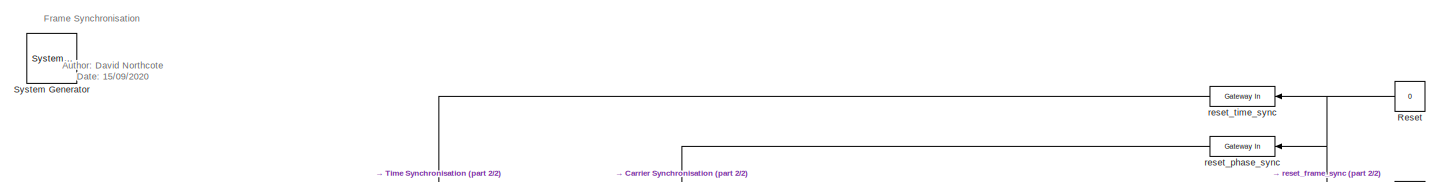
[diagram: root canvas - part 1/2, full width, top band]
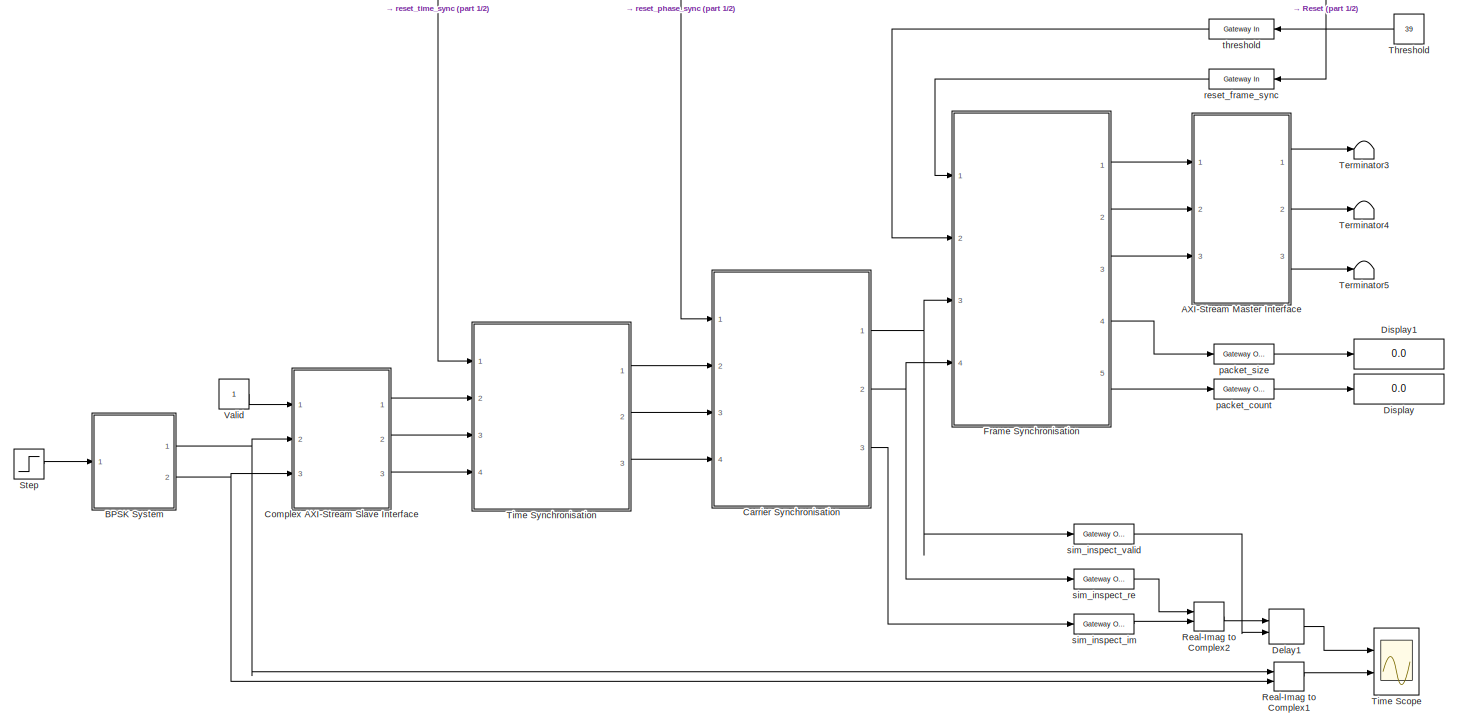
[diagram: root canvas - part 2/2, most of the canvas]
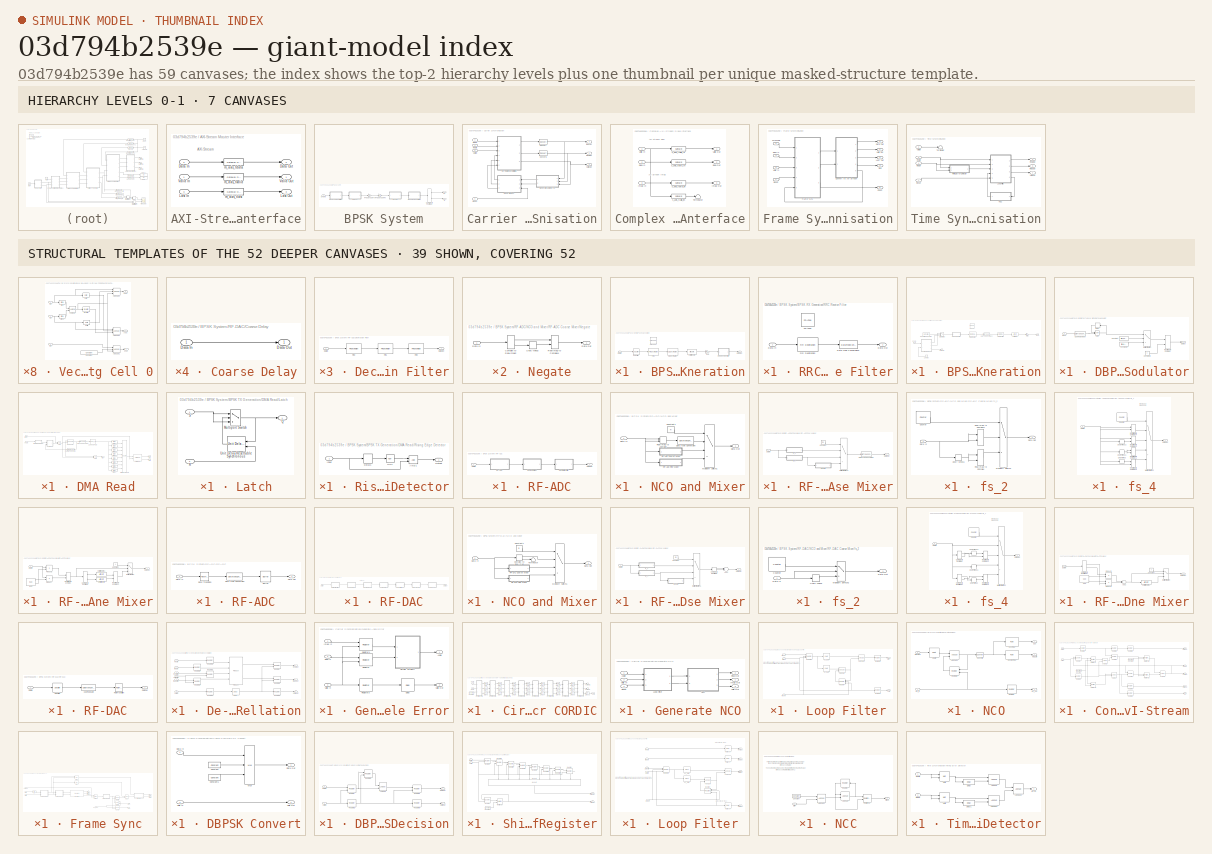
[diagram: thumbnail index - top-2 hierarchy levels (7 canvases) + 39 structural-template representatives of the remaining 52 canvases]
MODEL slx_03d794b2539e
KIND model
CONFIG AbsTol = auto
CONFIG EnableMultiTasking = off
CONFIG FixedStep = auto
CONFIG MaxStep = auto
CONFIG MinStep = auto
CONFIG RelTol = 1e-3
CONFIG SampleTimeConstraint = Unconstrained
CONFIG Solver = VariableStepAuto
CONFIG SolverName = VariableStepAuto
CONFIG StartTime = 0.0
CONFIG StopTime = 4000/3.2e6
BLOCK [Reference]  System Generator  REF=xbsIndex_r4/ System Generator
  AttributesFormatString = System\nGenerator
  Ports = []
  SourceBlock = xbsIndex_r4/ System Generator
  SourceType = Xilinx System Generator Block
  Tag = genX
  UserDataPersistent = on
BLOCK [SubSystem] AXI-Stream Master Interface
  Ports = [3, 3]
  RequestExecContextInheritance = off
BLOCK [Inport] AXI-Stream Master Interface/Data In
  IconDisplay = Port number
  Port = 2
BLOCK [Outport] AXI-Stream Master Interface/Data Out
  IconDisplay = Port number
  Port = 2
BLOCK [Inport] AXI-Stream Master Interface/Last In
  IconDisplay = Port number
  Port = 3
BLOCK [Outport] AXI-Stream Master Interface/Last Out
  IconDisplay = Port number
  Port = 3
BLOCK [Inport] AXI-Stream Master Interface/Valid In
  IconDisplay = Port number
BLOCK [Outport] AXI-Stream Master Interface/Valid Out
  IconDisplay = Port number
BLOCK [Reference] AXI-Stream Master Interface/m_axis_tdata  REF=xbsIndex_r4/Gateway Out
  Ports = [1, 1]
  SourceBlock = xbsIndex_r4/Gateway Out
  SourceType = Xilinx Gateway Out Block
BLOCK [Reference] AXI-Stream Master Interface/m_axis_tlast  REF=xbsIndex_r4/Gateway Out
  Ports = [1, 1]
  SourceBlock = xbsIndex_r4/Gateway Out
  SourceType = Xilinx Gateway Out Block
BLOCK [Reference] AXI-Stream Master Interface/m_axis_tvalid  REF=xbsIndex_r4/Gateway Out
  Ports = [1, 1]
  SourceBlock = xbsIndex_r4/Gateway Out
  SourceType = Xilinx Gateway Out Block
BLOCK [SubSystem] BPSK System
  Ports = [1, 2]
  RequestExecContextInheritance = off
BLOCK [SubSystem] BPSK System/BPSK RX Generation
  Ports = [1, 1]
  RequestExecContextInheritance = off
BLOCK [Reference] BPSK System/BPSK RX Generation/CIC Decimation  REF=dspmlti4/CIC
Decimation
  Ports = [1, 1]
  SourceBlock = dspmlti4/CIC\nDecimation
  SourceProductBaseCode = DS
  SourceProductName = DSP System Toolbox
  SourceType = CIC Decimation
  UserDataPersistent = on
BLOCK [Inport] BPSK System/BPSK RX Generation/Data In
  IconDisplay = Port number
BLOCK [Outport] BPSK System/BPSK RX Generation/Data Out
  IconDisplay = Port number
BLOCK [Reference] BPSK System/BPSK RX Generation/FDATool  REF=xbsIndex_r4/FDATool
  Ports = []
  SourceBlock = xbsIndex_r4/FDATool
  SourceType = Xilinx FDATool Interface Block
  UserDataPersistent = on
BLOCK [Reference] BPSK System/BPSK RX Generation/FIR 0  REF=dspmlti4/FIR
Decimation
  Ports = [1, 1]
  SourceBlock = dspmlti4/FIR\nDecimation
  SourceProductBaseCode = DS
  SourceProductName = DSP System Toolbox
  SourceType = FIR Decimation
  UserDataPersistent = on
BLOCK [Gain] BPSK System/BPSK RX Generation/Gain
  Gain = 2^(floor(log2(5^3)))/(5^3)
  OutDataTypeStr = fixdt(1,16,14)
  ParamDataTypeStr = fixdt(1,16,14)
  SaturateOnIntegerOverflow = off
BLOCK [SubSystem] BPSK System/BPSK RX Generation/RRC Receive Filter
  Ports = [1, 1]
  RequestExecContextInheritance = off
BLOCK [Inport] BPSK System/BPSK RX Generation/RRC Receive Filter/Data In
  IconDisplay = Port number
BLOCK [Outport] BPSK System/BPSK RX Generation/RRC Receive Filter/Data Out
  IconDisplay = Port number
BLOCK [DataTypeConversion] BPSK System/BPSK RX Generation/RRC Receive Filter/Data Type Conversion2
  OutDataTypeStr = fixdt(1,16,14)
  RndMeth = Floor
  SaturateOnIntegerOverflow = off
BLOCK [Reference] BPSK System/BPSK RX Generation/RRC Receive Filter/FDATool  REF=xbsIndex_r4/FDATool
  Ports = []
  SourceBlock = xbsIndex_r4/FDATool
  SourceType = Xilinx FDATool Interface Block
  UserDataPersistent = on
BLOCK [Reference] BPSK System/BPSK RX Generation/RRC Receive Filter/FIR Decimation  REF=dspmlti4/FIR
Decimation
  Ports = [1, 1]
  SourceBlock = dspmlti4/FIR\nDecimation
  SourceProductBaseCode = DS
  SourceProductName = DSP System Toolbox
  SourceType = FIR Decimation
  UserDataPersistent = on
BLOCK [ArithShift] BPSK System/BPSK RX Generation/Shift Arithmetic
  BitShiftDirection = Right
  BitShiftNumber = floor(log2(5^3))
  InputPortMap = u0
  Ports = [1, 1]
BLOCK [Unbuffer] BPSK System/BPSK RX Generation/Unbuffer
  Ports = [1, 1]
BLOCK [SubSystem] BPSK System/BPSK TX Generation
  Ports = [1, 1]
  RequestExecContextInheritance = off
BLOCK [Outport] BPSK System/BPSK TX Generation/BPSK
  IconDisplay = Port number
BLOCK [Reference] BPSK System/BPSK TX Generation/Bernoulli Binary Generator  REF=commrandsrc3/Bernoulli Binary
Generator
  Ports = [0, 1]
  SourceBlock = commrandsrc3/Bernoulli Binary\nGenerator
  SourceProductBaseCode = CM
  SourceProductName = Communications Toolbox
  SourceType = Bernoulli Binary Generator
BLOCK [Reference] BPSK System/BPSK TX Generation/CIC Interpolation  REF=dspmlti4/CIC
Interpolation
  Ports = [1, 1]
  SourceBlock = dspmlti4/CIC\nInterpolation
  SourceProductBaseCode = DS
  SourceProductName = DSP System Toolbox
  SourceType = CIC Interpolation
  UserDataPersistent = on
BLOCK [Constant] BPSK System/BPSK TX Generation/Constant
  SampleTime = 1/12.5e3
BLOCK [SubSystem] BPSK System/BPSK TX Generation/DBPSK Modulator
  Ports = [1, 1]
  RequestExecContextInheritance = off
BLOCK [DataTypeConversion] BPSK System/BPSK TX Generation/DBPSK Modulator/Cast To Boolean
  OutDataTypeStr = boolean
  RndMeth = Floor
  SaturateOnIntegerOverflow = off
BLOCK [Constant] BPSK System/BPSK TX Generation/DBPSK Modulator/Constant
  OutDataTypeStr = fixdt(1,16,14)
  SampleTime = -1
  Value = fi(1, 1, 16, 14)
BLOCK [Constant] BPSK System/BPSK TX Generation/DBPSK Modulator/Constant1
  OutDataTypeStr = fixdt(1,16,14)
  SampleTime = -1
  Value = fi(-1, 1, 16, 14)
BLOCK [Constant] BPSK System/BPSK TX Generation/DBPSK Modulator/Constant2
  OutDataTypeStr = Inherit: Inherit via back propagation
  SampleTime = -1
  Value = 0
BLOCK [Delay] BPSK System/BPSK TX Generation/DBPSK Modulator/Delay
  DelayLength = 1
  InputPortMap = u0
  Ports = [1, 1]
BLOCK [Inport] BPSK System/BPSK TX Generation/DBPSK Modulator/Input
  IconDisplay = Port number
BLOCK [MultiPortSwitch] BPSK System/BPSK TX Generation/DBPSK Modulator/Multiport Switch
  DataPortOrder = Zero-based contiguous
  InputSameDT = off
  Inputs = 2
  Ports = [3, 1]
  SaturateOnIntegerOverflow = off
  zeroidx = on
BLOCK [Outport] BPSK System/BPSK TX Generation/DBPSK Modulator/Output
  IconDisplay = Port number
BLOCK [RealImagToComplex] BPSK System/BPSK TX Generation/DBPSK Modulator/Real-Imag to Complex
  Ports = [2, 1]
BLOCK [Logic] BPSK System/BPSK TX Generation/DBPSK Modulator/XOR
  AllPortsSameDT = off
  IconShape = distinctive
  Operator = XOR
  OutDataTypeStr = boolean
  Ports = [2, 1]
BLOCK [SubSystem] BPSK System/BPSK TX Generation/DMA Read
  Ports = [2, 3]
  RequestExecContextInheritance = off
BLOCK [Lookup_n-D] BPSK System/BPSK TX Generation/DMA Read/1-D Lookup Table
  BreakpointsForDimension1 = [0:1:numel(tx_data)-1]
  ExtrapMethod = Clip
  InternalRulePriority = Speed
  NumberOfTableDimensions = 1
  OutDataTypeStr = Inherit: Inherit from 'Table data'
  Ports = [1, 1]
  RndMeth = Simplest
  Table = tx_data
  TableDataTypeStr = Inherit: Inherit from 'Table data'
BLOCK [Logic] BPSK System/BPSK TX Generation/DMA Read/AND
  AllPortsSameDT = off
  IconShape = distinctive
  OutDataTypeStr = boolean
  Ports = [2, 1]
BLOCK [Logic] BPSK System/BPSK TX Generation/DMA Read/AND1
  AllPortsSameDT = off
  IconShape = distinctive
  OutDataTypeStr = boolean
  Ports = [2, 1]
BLOCK [Reference] BPSK System/BPSK TX Generation/DMA Read/Bit Slice  REF=hdlsllib/Logic and Bit
Operations/Bit Slice
  Ports = [1, 1]
  SourceBlock = hdlsllib/Logic and Bit\nOperations/Bit Slice
  SourceProductBaseCode = SL
  SourceProductName = Simulink
  SourceType = Bit Slice
BLOCK [Reference] BPSK System/BPSK TX Generation/DMA Read/Bit Slice1  REF=hdlsllib/Logic and Bit
Operations/Bit Slice
  Ports = [1, 1]
  SourceBlock = hdlsllib/Logic and Bit\nOperations/Bit Slice
  SourceProductBaseCode = SL
  SourceProductName = Simulink
  SourceType = Bit Slice
BLOCK [Reference] BPSK System/BPSK TX Generation/DMA Read/Bit Slice2  REF=hdlsllib/Logic and Bit
Operations/Bit Slice
  Ports = [1, 1]
  SourceBlock = hdlsllib/Logic and Bit\nOperations/Bit Slice
  SourceProductBaseCode = SL
  SourceProductName = Simulink
  SourceType = Bit Slice
BLOCK [Reference] BPSK System/BPSK TX Generation/DMA Read/Bit Slice3  REF=hdlsllib/Logic and Bit
Operations/Bit Slice
  Ports = [1, 1]
  SourceBlock = hdlsllib/Logic and Bit\nOperations/Bit Slice
  SourceProductBaseCode = SL
  SourceProductName = Simulink
  SourceType = Bit Slice
BLOCK [Reference] BPSK System/BPSK TX Generation/DMA Read/Bit Slice4  REF=hdlsllib/Logic and Bit
Operations/Bit Slice
  Ports = [1, 1]
  SourceBlock = hdlsllib/Logic and Bit\nOperations/Bit Slice
  SourceProductBaseCode = SL
  SourceProductName = Simulink
  SourceType = Bit Slice
BLOCK [Reference] BPSK System/BPSK TX Generation/DMA Read/Bit Slice5  REF=hdlsllib/Logic and Bit
Operations/Bit Slice
  Ports = [1, 1]
  SourceBlock = hdlsllib/Logic and Bit\nOperations/Bit Slice
  SourceProductBaseCode = SL
  SourceProductName = Simulink
  SourceType = Bit Slice
BLOCK [Reference] BPSK System/BPSK TX Generation/DMA Read/Bit Slice6  REF=hdlsllib/Logic and Bit
Operations/Bit Slice
  Ports = [1, 1]
  SourceBlock = hdlsllib/Logic and Bit\nOperations/Bit Slice
  SourceProductBaseCode = SL
  SourceProductName = Simulink
  SourceType = Bit Slice
BLOCK [Reference] BPSK System/BPSK TX Generation/DMA Read/Bit Slice7  REF=hdlsllib/Logic and Bit
Operations/Bit Slice
  Ports = [1, 1]
  SourceBlock = hdlsllib/Logic and Bit\nOperations/Bit Slice
  SourceProductBaseCode = SL
  SourceProductName = Simulink
  SourceType = Bit Slice
BLOCK [Reference] BPSK System/BPSK TX Generation/DMA Read/Compare To Constant  REF=simulink/Logic and Bit
Operations/Compare
To Constant
  Ports = [1, 1]
  SourceBlock = simulink/Logic and Bit\nOperations/Compare\nTo Constant
  SourceProductBaseCode = SL
  SourceProductName = Simulink
  SourceType = Compare To Constant
BLOCK [DataTypeConversion] BPSK System/BPSK TX Generation/DMA Read/Data Type Conversion
  OutDataTypeStr = fixdt(0, ceil(log2(numel(tx_data))), 0)
  RndMeth = Floor
  SaturateOnIntegerOverflow = off
BLOCK [Reference] BPSK System/BPSK TX Generation/DMA Read/HDL Counter  REF=hdlsllib/Sources/HDL Counter
  Ports = [2, 1]
  SourceBlock = hdlsllib/Sources/HDL Counter
  SourceProductBaseCode = SL
  SourceProductName = Simulink
  SourceType = HDL Counter
BLOCK [SubSystem] BPSK System/BPSK TX Generation/DMA Read/Latch
  Ports = [2, 1]
  RequestExecContextInheritance = off
BLOCK [MultiPortSwitch] BPSK System/BPSK TX Generation/DMA Read/Latch/Multiport Switch
  DataPortOrder = Zero-based contiguous
  InputSameDT = off
  Inputs = 2
  Ports = [3, 1]
  SaturateOnIntegerOverflow = off
  zeroidx = on
BLOCK [Outport] BPSK System/BPSK TX Generation/DMA Read/Latch/Q
  IconDisplay = Port number
BLOCK [Inport] BPSK System/BPSK TX Generation/DMA Read/Latch/R
  IconDisplay = Port number
  Port = 2
BLOCK [Inport] BPSK System/BPSK TX Generation/DMA Read/Latch/S
  IconDisplay = Port number
BLOCK [Reference] BPSK System/BPSK TX Generation/DMA Read/Latch/Unit Delay Resettable Synchronous  REF=hdlsllib/Discrete/Unit Delay Resettable
Synchronous
  Ports = [2, 1]
  SourceBlock = hdlsllib/Discrete/Unit Delay Resettable\nSynchronous
  SourceProductBaseCode = SL
  SourceProductName = Simulink
  SourceType = Unit Delay Resettable Synchronous
BLOCK [Concatenate] BPSK System/BPSK TX Generation/DMA Read/Matrix Concatenate
  ConcatenateDimension = 2
  Mode = Multidimensional array
  NumInputs = 8
  Ports = [8, 1]
BLOCK [SubSystem] BPSK System/BPSK TX Generation/DMA Read/Rising Edge Detector
  Ports = [1, 1]
  RequestExecContextInheritance = off
BLOCK [Logic] BPSK System/BPSK TX Generation/DMA Read/Rising Edge Detector/AND1
  AllPortsSameDT = off
  IconShape = distinctive
  OutDataTypeStr = boolean
  Ports = [2, 1]
BLOCK [Delay] BPSK System/BPSK TX Generation/DMA Read/Rising Edge Detector/Delay1
  DelayLength = 1
  InputPortMap = u0
  Ports = [1, 1]
BLOCK [Inport] BPSK System/BPSK TX Generation/DMA Read/Rising Edge Detector/Input
  IconDisplay = Port number
BLOCK [Logic] BPSK System/BPSK TX Generation/DMA Read/Rising Edge Detector/NOT
  AllPortsSameDT = off
  IconShape = distinctive
  Operator = NOT
  OutDataTypeStr = boolean
  Ports = [1, 1]
BLOCK [Outport] BPSK System/BPSK TX Generation/DMA Read/Rising Edge Detector/Output
  IconDisplay = Port number
BLOCK [Reference] BPSK System/BPSK TX Generation/DMA Read/Serializer1D  REF=hdlsllib/HDL Operations/Serializer1D
  Ports = [2, 2]
  SourceBlock = hdlsllib/HDL Operations/Serializer1D
  SourceProductBaseCode = SL
  SourceProductName = Simulink
  SourceType = Serializer1D
BLOCK [Inport] BPSK System/BPSK TX Generation/DMA Read/enable
  IconDisplay = Port number
BLOCK [Outport] BPSK System/BPSK TX Generation/DMA Read/tdata
  IconDisplay = Port number
BLOCK [Outport] BPSK System/BPSK TX Generation/DMA Read/tlast
  IconDisplay = Port number
  Port = 3
BLOCK [Inport] BPSK System/BPSK TX Generation/DMA Read/tready
  IconDisplay = Port number
  Port = 2
BLOCK [Outport] BPSK System/BPSK TX Generation/DMA Read/tvalid
  IconDisplay = Port number
  Port = 2
BLOCK [DataTypeConversion] BPSK System/BPSK TX Generation/Data Type Conversion2
  OutDataTypeStr = fixdt(1,16,14)
  RndMeth = Floor
  SaturateOnIntegerOverflow = off
BLOCK [Inport] BPSK System/BPSK TX Generation/Enable
  IconDisplay = Port number
BLOCK [Reference] BPSK System/BPSK TX Generation/FDATool  REF=xbsIndex_r4/FDATool
  Ports = []
  SourceBlock = xbsIndex_r4/FDATool
  SourceType = Xilinx FDATool Interface Block
  UserDataPersistent = on
BLOCK [Reference] BPSK System/BPSK TX Generation/FIR Interpolation  REF=dspmlti4/FIR
Interpolation
  Ports = [1, 1]
  SourceBlock = dspmlti4/FIR\nInterpolation
  SourceProductBaseCode = DS
  SourceProductName = DSP System Toolbox
  SourceType = FIR Interpolation
  UserDataPersistent = on
BLOCK [Gain] BPSK System/BPSK TX Generation/Multiply
  Gain = fi(0.8192, 1, 16, 14)
  OutDataTypeStr = fixdt(1,16,14)
  ParamDataTypeStr = fixdt(1,16,15)
  SaturateOnIntegerOverflow = off
BLOCK [MultiPortSwitch] BPSK System/BPSK TX Generation/Multiport Switch
  DataPortOrder = Zero-based contiguous
  InputSameDT = off
  Inputs = 2
  Ports = [3, 1]
  SaturateOnIntegerOverflow = off
  zeroidx = on
BLOCK [ArithShift] BPSK System/BPSK TX Generation/Shift Arithmetic
  BitShiftDirection = Right
  BitShiftNumber = 33
  InputPortMap = u0
  Ports = [1, 1]
BLOCK [Terminator] BPSK System/BPSK TX Generation/Terminator1
BLOCK [ComplexToRealImag] BPSK System/Complex to Real-Imag
  Ports = [1, 2]
BLOCK [Inport] BPSK System/Enable
  IconDisplay = Port number
BLOCK [Outport] BPSK System/Im
  IconDisplay = Port number
  Port = 2
BLOCK [Gain] BPSK System/RF Balun Gain RX
  Gain = 1/2
  OutDataTypeStr = Inherit: Inherit via internal rule
  ParamDataTypeStr = Inherit: Inherit via internal rule
  SaturateOnIntegerOverflow = off
BLOCK [Gain] BPSK System/RF Balun Gain TX
  Gain = 1/2
  OutDataTypeStr = Inherit: Inherit via internal rule
  ParamDataTypeStr = Inherit: Inherit via internal rule
  SaturateOnIntegerOverflow = off
BLOCK [SubSystem] BPSK System/RF-ADC
  Ports = [1, 1]
  RequestExecContextInheritance = off
BLOCK [Inport] BPSK System/RF-ADC/Data In
  IconDisplay = Port number
BLOCK [Outport] BPSK System/RF-ADC/Data Out
  IconDisplay = Port number
BLOCK [SubSystem] BPSK System/RF-ADC/Decimation Filter
  Ports = [1, 1]
  RequestExecContextInheritance = off
BLOCK [Inport] BPSK System/RF-ADC/Decimation Filter/Data In
  IconDisplay = Port number
BLOCK [Outport] BPSK System/RF-ADC/Decimation Filter/Data Out
  IconDisplay = Port number
BLOCK [Reference] BPSK System/RF-ADC/Decimation Filter/FIR 0  REF=dspmlti4/FIR
Decimation
  Ports = [1, 1]
  SourceBlock = dspmlti4/FIR\nDecimation
  SourceProductBaseCode = DS
  SourceProductName = DSP System Toolbox
  SourceType = FIR Decimation
  UserDataPersistent = on
BLOCK [Reference] BPSK System/RF-ADC/Decimation Filter/FIR 1  REF=dspmlti4/FIR
Decimation
  Ports = [1, 1]
  SourceBlock = dspmlti4/FIR\nDecimation
  SourceProductBaseCode = DS
  SourceProductName = DSP System Toolbox
  SourceType = FIR Decimation
  UserDataPersistent = on
BLOCK [Reference] BPSK System/RF-ADC/Decimation Filter/FIR 2  REF=dspmlti4/FIR
Decimation
  Ports = [1, 1]
  SourceBlock = dspmlti4/FIR\nDecimation
  SourceProductBaseCode = DS
  SourceProductName = DSP System Toolbox
  SourceType = FIR Decimation
  UserDataPersistent = on
BLOCK [SubSystem] BPSK System/RF-ADC/NCO and Mixer
  Ports = [1, 1]
  RequestExecContextInheritance = off
BLOCK [Constant] BPSK System/RF-ADC/NCO and Mixer/Constant1
  OutDataTypeStr = fixdt(0,2,0)
  SampleTime = -1
  Value = m
BLOCK [Inport] BPSK System/RF-ADC/NCO and Mixer/Data In
  IconDisplay = Port number
BLOCK [Outport] BPSK System/RF-ADC/NCO and Mixer/Data Out
  IconDisplay = Port number
BLOCK [DataTypeConversion] BPSK System/RF-ADC/NCO and Mixer/Data Type Conversion
  OutDataTypeStr = fixdt(1,16,14)
  RndMeth = Floor
  SaturateOnIntegerOverflow = off
BLOCK [MultiPortSwitch] BPSK System/RF-ADC/NCO and Mixer/Multiport Switch1
  DataPortOrder = Zero-based contiguous
  InputSameDT = off
  Ports = [4, 1]
  SaturateOnIntegerOverflow = off
  zeroidx = on
BLOCK [SubSystem] BPSK System/RF-ADC/NCO and Mixer/RF-ADC Coarse Mixer
  Ports = [1, 1]
  RequestExecContextInheritance = off
BLOCK [Constant] BPSK System/RF-ADC/NCO and Mixer/RF-ADC Coarse Mixer/Constant
  OutDataTypeStr = fixdt(0,2,0)
  SampleTime = -1
  Value = mc
BLOCK [Inport] BPSK System/RF-ADC/NCO and Mixer/RF-ADC Coarse Mixer/Data In
  IconDisplay = Port number
BLOCK [Outport] BPSK System/RF-ADC/NCO and Mixer/RF-ADC Coarse Mixer/Data Out
  IconDisplay = Port number
BLOCK [DataTypeConversion] BPSK System/RF-ADC/NCO and Mixer/RF-ADC Coarse Mixer/Data Type Conversion
  OutDataTypeStr = fixdt(1,16,14)
  RndMeth = Floor
  SaturateOnIntegerOverflow = off
BLOCK [MultiPortSwitch] BPSK System/RF-ADC/NCO and Mixer/RF-ADC Coarse Mixer/Multiport Switch1
  DataPortOrder = Zero-based contiguous
  InputSameDT = off
  Ports = [4, 1]
  SaturateOnIntegerOverflow = off
  zeroidx = on
BLOCK [SubSystem] BPSK System/RF-ADC/NCO and Mixer/RF-ADC Coarse Mixer/Negate
  Ports = [1, 1]
  RequestExecContextInheritance = off
BLOCK [ComplexToRealImag] BPSK System/RF-ADC/NCO and Mixer/RF-ADC Coarse Mixer/Negate/Complex to Real-Imag2
  Ports = [1, 2]
BLOCK [Inport] BPSK System/RF-ADC/NCO and Mixer/RF-ADC Coarse Mixer/Negate/Data In
  IconDisplay = Port number
BLOCK [Outport] BPSK System/RF-ADC/NCO and Mixer/RF-ADC Coarse Mixer/Negate/Data Out
  IconDisplay = Port number
BLOCK [RealImagToComplex] BPSK System/RF-ADC/NCO and Mixer/RF-ADC Coarse Mixer/Negate/Real-Imag to Complex1
  Ports = [2, 1]
BLOCK [UnaryMinus] BPSK System/RF-ADC/NCO and Mixer/RF-ADC Coarse Mixer/Negate/Unary Minus
BLOCK [SubSystem] BPSK System/RF-ADC/NCO and Mixer/RF-ADC Coarse Mixer/fs_2
  Ports = [1, 1]
  RequestExecContextInheritance = off
BLOCK [Reference] BPSK System/RF-ADC/NCO and Mixer/RF-ADC Coarse Mixer/fs_2/Counter  REF=dspswit3/Counter
  Ports = [0, 1]
  SourceBlock = dspswit3/Counter
  SourceProductBaseCode = DS
  SourceProductName = DSP System Toolbox
  SourceType = Counter
BLOCK [Inport] BPSK System/RF-ADC/NCO and Mixer/RF-ADC Coarse Mixer/fs_2/Data In
  IconDisplay = Port number
BLOCK [Outport] BPSK System/RF-ADC/NCO and Mixer/RF-ADC Coarse Mixer/fs_2/Data Out
  IconDisplay = Port number
BLOCK [MultiPortSwitch] BPSK System/RF-ADC/NCO and Mixer/RF-ADC Coarse Mixer/fs_2/Multiport Switch2
  DataPortOrder = Zero-based contiguous
  InputSameDT = off
  Inputs = 2
  Ports = [3, 1]
  SaturateOnIntegerOverflow = off
  zeroidx = on
BLOCK [RealImagToComplex] BPSK System/RF-ADC/NCO and Mixer/RF-ADC Coarse Mixer/fs_2/Real-Imag to Complex
  Ports = [2, 1]
BLOCK [RealImagToComplex] BPSK System/RF-ADC/NCO and Mixer/RF-ADC Coarse Mixer/fs_2/Real-Imag to Complex1
  Ports = [2, 1]
BLOCK [UnaryMinus] BPSK System/RF-ADC/NCO and Mixer/RF-ADC Coarse Mixer/fs_2/Unary Minus1
BLOCK [SubSystem] BPSK System/RF-ADC/NCO and Mixer/RF-ADC Coarse Mixer/fs_4
  Ports = [1, 1]
  RequestExecContextInheritance = off
BLOCK [Reference] BPSK System/RF-ADC/NCO and Mixer/RF-ADC Coarse Mixer/fs_4/Counter  REF=dspswit3/Counter
  Ports = [0, 1]
  SourceBlock = dspswit3/Counter
  SourceProductBaseCode = DS
  SourceProductName = DSP System Toolbox
  SourceType = Counter
BLOCK [Inport] BPSK System/RF-ADC/NCO and Mixer/RF-ADC Coarse Mixer/fs_4/Data In
  IconDisplay = Port number
BLOCK [Outport] BPSK System/RF-ADC/NCO and Mixer/RF-ADC Coarse Mixer/fs_4/Data Out
  IconDisplay = Port number
BLOCK [MultiPortSwitch] BPSK System/RF-ADC/NCO and Mixer/RF-ADC Coarse Mixer/fs_4/Multiport Switch2
  DataPortOrder = Zero-based contiguous
  InputSameDT = off
  Inputs = 4
  Ports = [5, 1]
  SaturateOnIntegerOverflow = off
  zeroidx = on
BLOCK [RealImagToComplex] BPSK System/RF-ADC/NCO and Mixer/RF-ADC Coarse Mixer/fs_4/Real-Imag to Complex1
  Ports = [2, 1]
BLOCK [RealImagToComplex] BPSK System/RF-ADC/NCO and Mixer/RF-ADC Coarse Mixer/fs_4/Real-Imag to Complex2
  Ports = [2, 1]
BLOCK [RealImagToComplex] BPSK System/RF-ADC/NCO and Mixer/RF-ADC Coarse Mixer/fs_4/Real-Imag to Complex3
  Ports = [2, 1]
BLOCK [RealImagToComplex] BPSK System/RF-ADC/NCO and Mixer/RF-ADC Coarse Mixer/fs_4/Real-Imag to Complex4
  Ports = [2, 1]
BLOCK [UnaryMinus] BPSK System/RF-ADC/NCO and Mixer/RF-ADC Coarse Mixer/fs_4/Unary Minus
BLOCK [UnaryMinus] BPSK System/RF-ADC/NCO and Mixer/RF-ADC Coarse Mixer/fs_4/Unary Minus1
BLOCK [UnaryMinus] BPSK System/RF-ADC/NCO and Mixer/RF-ADC Coarse Mixer/fs_4/Unary Minus2
BLOCK [SubSystem] BPSK System/RF-ADC/NCO and Mixer/RF-ADC Fine Mixer
  Ports = [1, 1]
  RequestExecContextInheritance = off
BLOCK [ComplexToRealImag] BPSK System/RF-ADC/NCO and Mixer/RF-ADC Fine Mixer/Complex to Real-Imag
  Ports = [1, 2]
BLOCK [Constant] BPSK System/RF-ADC/NCO and Mixer/RF-ADC Fine Mixer/Constant
  SampleTime = -1
  Value = 0
BLOCK [Inport] BPSK System/RF-ADC/NCO and Mixer/RF-ADC Fine Mixer/Data In
  IconDisplay = Port number
BLOCK [Outport] BPSK System/RF-ADC/NCO and Mixer/RF-ADC Fine Mixer/Data Out
  IconDisplay = Port number
BLOCK [MultiPortSwitch] BPSK System/RF-ADC/NCO and Mixer/RF-ADC Fine Mixer/Multiport Switch
  DataPortOrder = Zero-based contiguous
  InputSameDT = off
  Inputs = 2
  Ports = [3, 1]
  SaturateOnIntegerOverflow = off
  zeroidx = on
BLOCK [Reference] BPSK System/RF-ADC/NCO and Mixer/RF-ADC Fine Mixer/NCO  REF=dspsigops/NCO
  Ports = [0, 2]
  SourceBlock = dspsigops/NCO
  SourceProductBaseCode = DS
  SourceProductName = DSP System Toolbox
  SourceType = NCO
BLOCK [Product] BPSK System/RF-ADC/NCO and Mixer/RF-ADC Fine Mixer/Product
  InputSameDT = off
  OutDataTypeStr = fixdt(1,16,14)
  Ports = [2, 1]
  RndMeth = Floor
  SaturateOnIntegerOverflow = off
BLOCK [Product] BPSK System/RF-ADC/NCO and Mixer/RF-ADC Fine Mixer/Product1
  InputSameDT = off
  OutDataTypeStr = fixdt(1,16,14)
  Ports = [2, 1]
  RndMeth = Floor
  SaturateOnIntegerOverflow = off
BLOCK [RealImagToComplex] BPSK System/RF-ADC/NCO and Mixer/RF-ADC Fine Mixer/Real-Imag to Complex
  Ports = [2, 1]
BLOCK [RealImagToComplex] BPSK System/RF-ADC/NCO and Mixer/RF-ADC Fine Mixer/Real-Imag to Complex1
  Ports = [2, 1]
BLOCK [ArithShift] BPSK System/RF-ADC/NCO and Mixer/RF-ADC Fine Mixer/Shift Arithmetic
  BitShiftDirection = Right
  BitShiftNumber = 1
  InputPortMap = u0
  Ports = [1, 1]
BLOCK [ArithShift] BPSK System/RF-ADC/NCO and Mixer/RF-ADC Fine Mixer/Shift Arithmetic1
  BitShiftDirection = Right
  BitShiftNumber = 1
  InputPortMap = u0
  Ports = [1, 1]
BLOCK [RealImagToComplex] BPSK System/RF-ADC/NCO and Mixer/Real-Imag to Complex
  Ports = [2, 1]
BLOCK [SubSystem] BPSK System/RF-ADC/RF-ADC
  Ports = [1, 1]
  RequestExecContextInheritance = off
BLOCK [Buffer] BPSK System/RF-ADC/RF-ADC/Buffer
  N = ssr
  OutputFrames = off
BLOCK [Inport] BPSK System/RF-ADC/RF-ADC/Data In
  IconDisplay = Port number
BLOCK [Outport] BPSK System/RF-ADC/RF-ADC/Data Out
  IconDisplay = Port number
BLOCK [DataTypeConversion] BPSK System/RF-ADC/RF-ADC/Data Type Conversion
  OutDataTypeStr = fixdt(1,12,10)
  RndMeth = Floor
  SaturateOnIntegerOverflow = off
BLOCK [RateTransition] BPSK System/RF-ADC/RF-ADC/Rate Transition
  OutPortSampleTime = 1/fs
BLOCK [SubSystem] BPSK System/RF-DAC
  Ports = [1, 1]
  RequestExecContextInheritance = off
BLOCK [SubSystem] BPSK System/RF-DAC/Coarse Delay
  Ports = [1, 1]
  RequestExecContextInheritance = off
BLOCK [Inport] BPSK System/RF-DAC/Coarse Delay/Data In
  IconDisplay = Port number
BLOCK [Outport] BPSK System/RF-DAC/Coarse Delay/Data Out
  IconDisplay = Port number
BLOCK [Inport] BPSK System/RF-DAC/Data In
  IconDisplay = Port number
BLOCK [Outport] BPSK System/RF-DAC/Data Out
  IconDisplay = Port number
BLOCK [SubSystem] BPSK System/RF-DAC/Interpolation Filter
  Ports = [1, 1]
  RequestExecContextInheritance = off
BLOCK [Inport] BPSK System/RF-DAC/Interpolation Filter/Data In
  IconDisplay = Port number
BLOCK [Outport] BPSK System/RF-DAC/Interpolation Filter/Data Out
  IconDisplay = Port number
BLOCK [Reference] BPSK System/RF-DAC/Interpolation Filter/FIR 0  REF=dspmlti4/FIR
Interpolation
  Ports = [1, 1]
  SourceBlock = dspmlti4/FIR\nInterpolation
  SourceProductBaseCode = DS
  SourceProductName = DSP System Toolbox
  SourceType = FIR Interpolation
  UserDataPersistent = on
BLOCK [Reference] BPSK System/RF-DAC/Interpolation Filter/FIR 1  REF=dspmlti4/FIR
Interpolation
  Ports = [1, 1]
  SourceBlock = dspmlti4/FIR\nInterpolation
  SourceProductBaseCode = DS
  SourceProductName = DSP System Toolbox
  SourceType = FIR Interpolation
  UserDataPersistent = on
BLOCK [Reference] BPSK System/RF-DAC/Interpolation Filter/FIR 2  REF=dspmlti4/FIR
Interpolation
  Ports = [1, 1]
  SourceBlock = dspmlti4/FIR\nInterpolation
  SourceProductBaseCode = DS
  SourceProductName = DSP System Toolbox
  SourceType = FIR Interpolation
  UserDataPersistent = on
BLOCK [SubSystem] BPSK System/RF-DAC/NCO and Mixer
  Ports = [1, 1]
  RequestExecContextInheritance = off
BLOCK [ComplexToRealImag] BPSK System/RF-DAC/NCO and Mixer/Complex to Real-Imag
  Ports = [1, 2]
BLOCK [Constant] BPSK System/RF-DAC/NCO and Mixer/Constant1
  OutDataTypeStr = fixdt(0,2,0)
  SampleTime = -1
  Value = m
BLOCK [Inport] BPSK System/RF-DAC/NCO and Mixer/Data In
  IconDisplay = Port number
BLOCK [Outport] BPSK System/RF-DAC/NCO and Mixer/Data Out
  IconDisplay = Port number
BLOCK [MultiPortSwitch] BPSK System/RF-DAC/NCO and Mixer/Multiport Switch1
  DataPortOrder = Zero-based contiguous
  InputSameDT = off
  Ports = [4, 1]
  SaturateOnIntegerOverflow = off
  zeroidx = on
BLOCK [SubSystem] BPSK System/RF-DAC/NCO and Mixer/RF-DAC Coarse Mixer
  Ports = [1, 1]
  RequestExecContextInheritance = off
BLOCK [Sum] BPSK System/RF-DAC/NCO and Mixer/RF-DAC Coarse Mixer/Add2
  InputSameDT = off
  OutDataTypeStr = Inherit: Inherit via internal rule
  Ports = [2, 1]
  SaturateOnIntegerOverflow = off
BLOCK [ComplexToRealImag] BPSK System/RF-DAC/NCO and Mixer/RF-DAC Coarse Mixer/Complex to Real-Imag
  Ports = [1, 2]
BLOCK [Constant] BPSK System/RF-DAC/NCO and Mixer/RF-DAC Coarse Mixer/Constant
  OutDataTypeStr = fixdt(0,2,0)
  SampleTime = -1
  Value = mc
BLOCK [Inport] BPSK System/RF-DAC/NCO and Mixer/RF-DAC Coarse Mixer/Data In
  IconDisplay = Port number
BLOCK [Outport] BPSK System/RF-DAC/NCO and Mixer/RF-DAC Coarse Mixer/Data Out
  IconDisplay = Port number
BLOCK [MultiPortSwitch] BPSK System/RF-DAC/NCO and Mixer/RF-DAC Coarse Mixer/Multiport Switch1
  DataPortOrder = Zero-based contiguous
  InputSameDT = off
  Ports = [4, 1]
  SaturateOnIntegerOverflow = off
  zeroidx = on
BLOCK [SubSystem] BPSK System/RF-DAC/NCO and Mixer/RF-DAC Coarse Mixer/Negate
  Ports = [1, 1]
  RequestExecContextInheritance = off
BLOCK [ComplexToRealImag] BPSK System/RF-DAC/NCO and Mixer/RF-DAC Coarse Mixer/Negate/Complex to Real-Imag2
  Ports = [1, 2]
BLOCK [Inport] BPSK System/RF-DAC/NCO and Mixer/RF-DAC Coarse Mixer/Negate/Data In
  IconDisplay = Port number
BLOCK [Outport] BPSK System/RF-DAC/NCO and Mixer/RF-DAC Coarse Mixer/Negate/Data Out
  IconDisplay = Port number
BLOCK [RealImagToComplex] BPSK System/RF-DAC/NCO and Mixer/RF-DAC Coarse Mixer/Negate/Real-Imag to Complex1
  Ports = [2, 1]
BLOCK [UnaryMinus] BPSK System/RF-DAC/NCO and Mixer/RF-DAC Coarse Mixer/Negate/Unary Minus
BLOCK [SubSystem] BPSK System/RF-DAC/NCO and Mixer/RF-DAC Coarse Mixer/fs_2
  Ports = [1, 1]
  RequestExecContextInheritance = off
BLOCK [Reference] BPSK System/RF-DAC/NCO and Mixer/RF-DAC Coarse Mixer/fs_2/Counter  REF=dspswit3/Counter
  Ports = [0, 1]
  SourceBlock = dspswit3/Counter
  SourceProductBaseCode = DS
  SourceProductName = DSP System Toolbox
  SourceType = Counter
BLOCK [Inport] BPSK System/RF-DAC/NCO and Mixer/RF-DAC Coarse Mixer/fs_2/Data In
  IconDisplay = Port number
BLOCK [Outport] BPSK System/RF-DAC/NCO and Mixer/RF-DAC Coarse Mixer/fs_2/Data Out
  IconDisplay = Port number
BLOCK [MultiPortSwitch] BPSK System/RF-DAC/NCO and Mixer/RF-DAC Coarse Mixer/fs_2/Multiport Switch2
  DataPortOrder = Zero-based contiguous
  InputSameDT = off
  Inputs = 2
  Ports = [3, 1]
  SaturateOnIntegerOverflow = off
  zeroidx = on
BLOCK [UnaryMinus] BPSK System/RF-DAC/NCO and Mixer/RF-DAC Coarse Mixer/fs_2/Unary Minus
BLOCK [SubSystem] BPSK System/RF-DAC/NCO and Mixer/RF-DAC Coarse Mixer/fs_4
  Ports = [1, 1]
  RequestExecContextInheritance = off
BLOCK [ComplexToRealImag] BPSK System/RF-DAC/NCO and Mixer/RF-DAC Coarse Mixer/fs_4/Complex to Real-Imag
  Ports = [1, 2]
BLOCK [ComplexToRealImag] BPSK System/RF-DAC/NCO and Mixer/RF-DAC Coarse Mixer/fs_4/Complex to Real-Imag1
  Ports = [1, 2]
BLOCK [Reference] BPSK System/RF-DAC/NCO and Mixer/RF-DAC Coarse Mixer/fs_4/Counter  REF=dspswit3/Counter
  Ports = [0, 1]
  SourceBlock = dspswit3/Counter
  SourceProductBaseCode = DS
  SourceProductName = DSP System Toolbox
  SourceType = Counter
BLOCK [Inport] BPSK System/RF-DAC/NCO and Mixer/RF-DAC Coarse Mixer/fs_4/Data In
  IconDisplay = Port number
BLOCK [Outport] BPSK System/RF-DAC/NCO and Mixer/RF-DAC Coarse Mixer/fs_4/Data Out
  IconDisplay = Port number
BLOCK [MultiPortSwitch] BPSK System/RF-DAC/NCO and Mixer/RF-DAC Coarse Mixer/fs_4/Multiport Switch2
  DataPortOrder = Zero-based contiguous
  InputSameDT = off
  Inputs = 4
  Ports = [5, 1]
  SaturateOnIntegerOverflow = off
  zeroidx = on
BLOCK [RealImagToComplex] BPSK System/RF-DAC/NCO and Mixer/RF-DAC Coarse Mixer/fs_4/Real-Imag to Complex2
  Ports = [2, 1]
BLOCK [RealImagToComplex] BPSK System/RF-DAC/NCO and Mixer/RF-DAC Coarse Mixer/fs_4/Real-Imag to Complex3
  Ports = [2, 1]
BLOCK [UnaryMinus] BPSK System/RF-DAC/NCO and Mixer/RF-DAC Coarse Mixer/fs_4/Unary Minus
BLOCK [UnaryMinus] BPSK System/RF-DAC/NCO and Mixer/RF-DAC Coarse Mixer/fs_4/Unary Minus1
BLOCK [UnaryMinus] BPSK System/RF-DAC/NCO and Mixer/RF-DAC Coarse Mixer/fs_4/Unary Minus2
BLOCK [SubSystem] BPSK System/RF-DAC/NCO and Mixer/RF-DAC Fine Mixer
  Ports = [1, 1]
  RequestExecContextInheritance = off
BLOCK [Sum] BPSK System/RF-DAC/NCO and Mixer/RF-DAC Fine Mixer/Add2
  InputSameDT = off
  OutDataTypeStr = Inherit: Inherit via internal rule
  Ports = [2, 1]
  SaturateOnIntegerOverflow = off
BLOCK [ComplexToRealImag] BPSK System/RF-DAC/NCO and Mixer/RF-DAC Fine Mixer/Complex to Real-Imag1
  Ports = [1, 2]
BLOCK [Constant] BPSK System/RF-DAC/NCO and Mixer/RF-DAC Fine Mixer/Constant
  OutDataTypeStr = boolean
  SampleTime = -1
  Value = 0
BLOCK [Inport] BPSK System/RF-DAC/NCO and Mixer/RF-DAC Fine Mixer/Data In
  IconDisplay = Port number
BLOCK [Outport] BPSK System/RF-DAC/NCO and Mixer/RF-DAC Fine Mixer/Data Out
  IconDisplay = Port number
BLOCK [MultiPortSwitch] BPSK System/RF-DAC/NCO and Mixer/RF-DAC Fine Mixer/Multiport Switch
  DataPortOrder = Zero-based contiguous
  InputSameDT = off
  Inputs = 2
  Ports = [3, 1]
  SaturateOnIntegerOverflow = off
  zeroidx = on
BLOCK [Reference] BPSK System/RF-DAC/NCO and Mixer/RF-DAC Fine Mixer/NCO  REF=dspsigops/NCO
  Ports = [0, 2]
  SourceBlock = dspsigops/NCO
  SourceProductBaseCode = DS
  SourceProductName = DSP System Toolbox
  SourceType = NCO
BLOCK [Product] BPSK System/RF-DAC/NCO and Mixer/RF-DAC Fine Mixer/Product1
  InputSameDT = off
  Ports = [2, 1]
  RndMeth = Floor
  SaturateOnIntegerOverflow = off
BLOCK [Product] BPSK System/RF-DAC/NCO and Mixer/RF-DAC Fine Mixer/Product4
  InputSameDT = off
  Ports = [2, 1]
  RndMeth = Floor
  SaturateOnIntegerOverflow = off
BLOCK [ArithShift] BPSK System/RF-DAC/NCO and Mixer/RF-DAC Fine Mixer/Shift Arithmetic1
  BitShiftDirection = Right
  BitShiftNumber = 1
  InputPortMap = u0
  Ports = [1, 1]
BLOCK [Terminator] BPSK System/RF-DAC/NCO and Mixer/Terminator
BLOCK [SubSystem] BPSK System/RF-DAC/Output Filter
  Ports = [1, 1]
  RequestExecContextInheritance = off
BLOCK [Inport] BPSK System/RF-DAC/Output Filter/Data In
  IconDisplay = Port number
BLOCK [Outport] BPSK System/RF-DAC/Output Filter/Data Out
  IconDisplay = Port number
BLOCK [SubSystem] BPSK System/RF-DAC/QMC Gain & Phase
  Ports = [1, 1]
  RequestExecContextInheritance = off
BLOCK [Inport] BPSK System/RF-DAC/QMC Gain & Phase/Data In
  IconDisplay = Port number
BLOCK [Outport] BPSK System/RF-DAC/QMC Gain & Phase/Data Out
  IconDisplay = Port number
BLOCK [SubSystem] BPSK System/RF-DAC/QMC Threshold
  Ports = [1, 1]
  RequestExecContextInheritance = off
BLOCK [Inport] BPSK System/RF-DAC/QMC Threshold/Data In
  IconDisplay = Port number
BLOCK [Outport] BPSK System/RF-DAC/QMC Threshold/Data Out
  IconDisplay = Port number
BLOCK [SubSystem] BPSK System/RF-DAC/RF-DAC
  Ports = [1, 1]
  RequestExecContextInheritance = off
BLOCK [DataTypeConversion] BPSK System/RF-DAC/RF-DAC/Cast To Double
  OutDataTypeStr = double
  RndMeth = Floor
  SaturateOnIntegerOverflow = off
BLOCK [Inport] BPSK System/RF-DAC/RF-DAC/Data In
  IconDisplay = Port number
BLOCK [Outport] BPSK System/RF-DAC/RF-DAC/Data Out
  IconDisplay = Port number
BLOCK [RateTransition] BPSK System/RF-DAC/RF-DAC/Rate Transition
  OutPortSampleTime = 0
BLOCK [Unbuffer] BPSK System/RF-DAC/RF-DAC/Unbuffer
  Ports = [1, 1]
BLOCK [Outport] BPSK System/Re
  IconDisplay = Port number
BLOCK [SubSystem] Carrier Synchronisation
  Ports = [4, 3]
  RequestExecContextInheritance = off
BLOCK [Reference] Carrier Synchronisation/Convert  REF=xbsIndex_r4/Convert
  Ports = [1, 1]
  SourceBlock = xbsIndex_r4/Convert
  SourceType = Xilinx Type Converter Block
BLOCK [Reference] Carrier Synchronisation/Convert1  REF=xbsIndex_r4/Convert
  Ports = [1, 1]
  SourceBlock = xbsIndex_r4/Convert
  SourceType = Xilinx Type Converter Block
BLOCK [SubSystem] Carrier Synchronisation/De-Rotate Constellation
  Ports = [6, 3]
  RequestExecContextInheritance = off
BLOCK [Reference] Carrier Synchronisation/De-Rotate Constellation/Delay  REF=xbsIndex_r4/Delay
  Ports = [1, 1]
  SourceBlock = xbsIndex_r4/Delay
  SourceType = Xilinx Delay Block
BLOCK [Inport] Carrier Synchronisation/De-Rotate Constellation/Imag Error
  IconDisplay = Port number
  Port = 4
BLOCK [Inport] Carrier Synchronisation/De-Rotate Constellation/Imag In
  IconDisplay = Port number
BLOCK [Outport] Carrier Synchronisation/De-Rotate Constellation/Imag Out
  IconDisplay = Port number
BLOCK [Reference] Carrier Synchronisation/De-Rotate Constellation/Product  REF=xbsIndex_r4/Product
  Ports = [4, 2]
  SourceBlock = xbsIndex_r4/Product
  SourceType = Xilinx Multiplier Block
BLOCK [Inport] Carrier Synchronisation/De-Rotate Constellation/Real Error
  IconDisplay = Port number
  Port = 5
BLOCK [Inport] Carrier Synchronisation/De-Rotate Constellation/Real In
  IconDisplay = Port number
  Port = 2
BLOCK [Outport] Carrier Synchronisation/De-Rotate Constellation/Real Out
  IconDisplay = Port number
  Port = 2
BLOCK [Reference] Carrier Synchronisation/De-Rotate Constellation/Register  REF=xbsIndex_r4/Register
  Ports = [2, 1]
  SourceBlock = xbsIndex_r4/Register
  SourceType = Xilinx Register Block
BLOCK [Reference] Carrier Synchronisation/De-Rotate Constellation/Register1  REF=xbsIndex_r4/Register
  Ports = [2, 1]
  SourceBlock = xbsIndex_r4/Register
  SourceType = Xilinx Register Block
BLOCK [Reference] Carrier Synchronisation/De-Rotate Constellation/Register2  REF=xbsIndex_r4/Register
  Ports = [2, 1]
  SourceBlock = xbsIndex_r4/Register
  SourceType = Xilinx Register Block
BLOCK [Reference] Carrier Synchronisation/De-Rotate Constellation/Register3  REF=xbsIndex_r4/Register
  Ports = [2, 1]
  SourceBlock = xbsIndex_r4/Register
  SourceType = Xilinx Register Block
BLOCK [Reference] Carrier Synchronisation/De-Rotate Constellation/Register4  REF=xbsIndex_r4/Register
  Ports = [1, 1]
  SourceBlock = xbsIndex_r4/Register
  SourceType = Xilinx Register Block
BLOCK [Reference] Carrier Synchronisation/De-Rotate Constellation/Register5  REF=xbsIndex_r4/Register
  Ports = [1, 1]
  SourceBlock = xbsIndex_r4/Register
  SourceType = Xilinx Register Block
BLOCK [Reference] Carrier Synchronisation/De-Rotate Constellation/Register6  REF=xbsIndex_r4/Register
  Ports = [1, 1]
  SourceBlock = xbsIndex_r4/Register
  SourceType = Xilinx Register Block
BLOCK [Reference] Carrier Synchronisation/De-Rotate Constellation/Register7  REF=xbsIndex_r4/Register
  Ports = [1, 1]
  SourceBlock = xbsIndex_r4/Register
  SourceType = Xilinx Register Block
BLOCK [Inport] Carrier Synchronisation/De-Rotate Constellation/Valid Error
  IconDisplay = Port number
  Port = 6
BLOCK [Inport] Carrier Synchronisation/De-Rotate Constellation/Valid In
  IconDisplay = Port number
  Port = 3
BLOCK [Outport] Carrier Synchronisation/De-Rotate Constellation/Valid Out
  IconDisplay = Port number
  Port = 3
BLOCK [SubSystem] Carrier Synchronisation/Generate Angle Error
  Ports = [3, 2]
  RequestExecContextInheritance = off
BLOCK [Outport] Carrier Synchronisation/Generate Angle Error/Angle
  IconDisplay = Port number
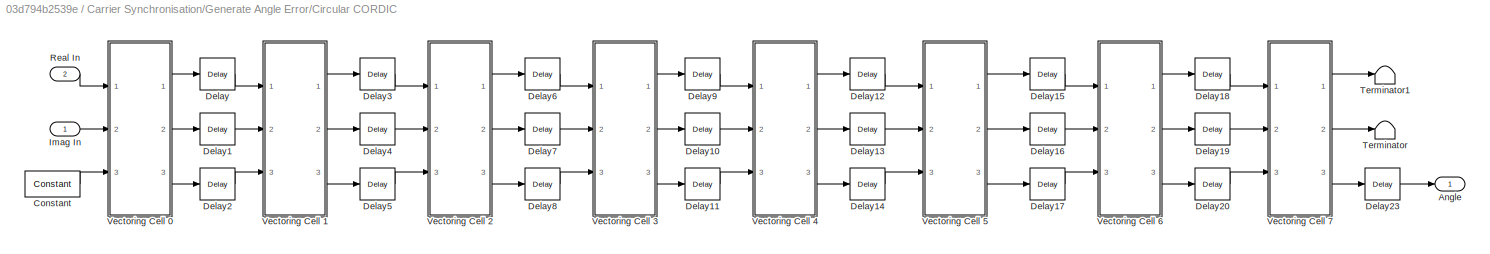
BLOCK [SubSystem] Carrier Synchronisation/Generate Angle Error/Circular CORDIC
  Ports = [2, 1]
  RequestExecContextInheritance = off
BLOCK [Outport] Carrier Synchronisation/Generate Angle Error/Circular CORDIC/Angle
  IconDisplay = Port number
BLOCK [Reference] Carrier Synchronisation/Generate Angle Error/Circular CORDIC/Constant  REF=xbsIndex_r4/Constant
  Ports = [0, 1]
  SourceBlock = xbsIndex_r4/Constant
  SourceType = Xilinx Constant Block Block
BLOCK [Reference] Carrier Synchronisation/Generate Angle Error/Circular CORDIC/Delay  REF=xbsIndex_r4/Delay
  Ports = [1, 1]
  SourceBlock = xbsIndex_r4/Delay
  SourceType = Xilinx Delay Block
BLOCK [Reference] Carrier Synchronisation/Generate Angle Error/Circular CORDIC/Delay1  REF=xbsIndex_r4/Delay
  Ports = [1, 1]
  SourceBlock = xbsIndex_r4/Delay
  SourceType = Xilinx Delay Block
BLOCK [Reference] Carrier Synchronisation/Generate Angle Error/Circular CORDIC/Delay10  REF=xbsIndex_r4/Delay
  Ports = [1, 1]
  SourceBlock = xbsIndex_r4/Delay
  SourceType = Xilinx Delay Block
BLOCK [Reference] Carrier Synchronisation/Generate Angle Error/Circular CORDIC/Delay11  REF=xbsIndex_r4/Delay
  Ports = [1, 1]
  SourceBlock = xbsIndex_r4/Delay
  SourceType = Xilinx Delay Block
BLOCK [Reference] Carrier Synchronisation/Generate Angle Error/Circular CORDIC/Delay12  REF=xbsIndex_r4/Delay
  Ports = [1, 1]
  SourceBlock = xbsIndex_r4/Delay
  SourceType = Xilinx Delay Block
BLOCK [Reference] Carrier Synchronisation/Generate Angle Error/Circular CORDIC/Delay13  REF=xbsIndex_r4/Delay
  Ports = [1, 1]
  SourceBlock = xbsIndex_r4/Delay
  SourceType = Xilinx Delay Block
BLOCK [Reference] Carrier Synchronisation/Generate Angle Error/Circular CORDIC/Delay14  REF=xbsIndex_r4/Delay
  Ports = [1, 1]
  SourceBlock = xbsIndex_r4/Delay
  SourceType = Xilinx Delay Block
BLOCK [Reference] Carrier Synchronisation/Generate Angle Error/Circular CORDIC/Delay15  REF=xbsIndex_r4/Delay
  Ports = [1, 1]
  SourceBlock = xbsIndex_r4/Delay
  SourceType = Xilinx Delay Block
BLOCK [Reference] Carrier Synchronisation/Generate Angle Error/Circular CORDIC/Delay16  REF=xbsIndex_r4/Delay
  Ports = [1, 1]
  SourceBlock = xbsIndex_r4/Delay
  SourceType = Xilinx Delay Block
BLOCK [Reference] Carrier Synchronisation/Generate Angle Error/Circular CORDIC/Delay17  REF=xbsIndex_r4/Delay
  Ports = [1, 1]
  SourceBlock = xbsIndex_r4/Delay
  SourceType = Xilinx Delay Block
BLOCK [Reference] Carrier Synchronisation/Generate Angle Error/Circular CORDIC/Delay18  REF=xbsIndex_r4/Delay
  Ports = [1, 1]
  SourceBlock = xbsIndex_r4/Delay
  SourceType = Xilinx Delay Block
BLOCK [Reference] Carrier Synchronisation/Generate Angle Error/Circular CORDIC/Delay19  REF=xbsIndex_r4/Delay
  Ports = [1, 1]
  SourceBlock = xbsIndex_r4/Delay
  SourceType = Xilinx Delay Block
BLOCK [Reference] Carrier Synchronisation/Generate Angle Error/Circular CORDIC/Delay2  REF=xbsIndex_r4/Delay
  Ports = [1, 1]
  SourceBlock = xbsIndex_r4/Delay
  SourceType = Xilinx Delay Block
BLOCK [Reference] Carrier Synchronisation/Generate Angle Error/Circular CORDIC/Delay20  REF=xbsIndex_r4/Delay
  Ports = [1, 1]
  SourceBlock = xbsIndex_r4/Delay
  SourceType = Xilinx Delay Block
BLOCK [Reference] Carrier Synchronisation/Generate Angle Error/Circular CORDIC/Delay23  REF=xbsIndex_r4/Delay
  Ports = [1, 1]
  SourceBlock = xbsIndex_r4/Delay
  SourceType = Xilinx Delay Block
BLOCK [Reference] Carrier Synchronisation/Generate Angle Error/Circular CORDIC/Delay3  REF=xbsIndex_r4/Delay
  Ports = [1, 1]
  SourceBlock = xbsIndex_r4/Delay
  SourceType = Xilinx Delay Block
BLOCK [Reference] Carrier Synchronisation/Generate Angle Error/Circular CORDIC/Delay4  REF=xbsIndex_r4/Delay
  Ports = [1, 1]
  SourceBlock = xbsIndex_r4/Delay
  SourceType = Xilinx Delay Block
BLOCK [Reference] Carrier Synchronisation/Generate Angle Error/Circular CORDIC/Delay5  REF=xbsIndex_r4/Delay
  Ports = [1, 1]
  SourceBlock = xbsIndex_r4/Delay
  SourceType = Xilinx Delay Block
BLOCK [Reference] Carrier Synchronisation/Generate Angle Error/Circular CORDIC/Delay6  REF=xbsIndex_r4/Delay
  Ports = [1, 1]
  SourceBlock = xbsIndex_r4/Delay
  SourceType = Xilinx Delay Block
BLOCK [Reference] Carrier Synchronisation/Generate Angle Error/Circular CORDIC/Delay7  REF=xbsIndex_r4/Delay
  Ports = [1, 1]
  SourceBlock = xbsIndex_r4/Delay
  SourceType = Xilinx Delay Block
BLOCK [Reference] Carrier Synchronisation/Generate Angle Error/Circular CORDIC/Delay8  REF=xbsIndex_r4/Delay
  Ports = [1, 1]
  SourceBlock = xbsIndex_r4/Delay
  SourceType = Xilinx Delay Block
BLOCK [Reference] Carrier Synchronisation/Generate Angle Error/Circular CORDIC/Delay9  REF=xbsIndex_r4/Delay
  Ports = [1, 1]
  SourceBlock = xbsIndex_r4/Delay
  SourceType = Xilinx Delay Block
BLOCK [Inport] Carrier Synchronisation/Generate Angle Error/Circular CORDIC/Imag In
  IconDisplay = Port number
BLOCK [Inport] Carrier Synchronisation/Generate Angle Error/Circular CORDIC/Real In
  IconDisplay = Port number
  Port = 2
BLOCK [Terminator] Carrier Synchronisation/Generate Angle Error/Circular CORDIC/Terminator
BLOCK [Terminator] Carrier Synchronisation/Generate Angle Error/Circular CORDIC/Terminator1
BLOCK [SubSystem] Carrier Synchronisation/Generate Angle Error/Circular CORDIC/Vectoring Cell 0
  Ports = [3, 3]
  RequestExecContextInheritance = off
BLOCK [Reference] Carrier Synchronisation/Generate Angle Error/Circular CORDIC/Vectoring Cell 0/AddSub1  REF=xbsIndex_r4/AddSub
  Ports = [3, 1]
  SourceBlock = xbsIndex_r4/AddSub
  SourceType = Xilinx Adder/Subtracter Block
BLOCK [Reference] Carrier Synchronisation/Generate Angle Error/Circular CORDIC/Vectoring Cell 0/AddSub2  REF=xbsIndex_r4/AddSub
  Ports = [3, 1]
  SourceBlock = xbsIndex_r4/AddSub
  SourceType = Xilinx Adder/Subtracter Block
BLOCK [Reference] Carrier Synchronisation/Generate Angle Error/Circular CORDIC/Vectoring Cell 0/AddSub3  REF=xbsIndex_r4/AddSub
  Ports = [3, 1]
  SourceBlock = xbsIndex_r4/AddSub
  SourceType = Xilinx Adder/Subtracter Block
BLOCK [Reference] Carrier Synchronisation/Generate Angle Error/Circular CORDIC/Vectoring Cell 0/Constant  REF=xbsIndex_r4/Constant
  Ports = [0, 1]
  SourceBlock = xbsIndex_r4/Constant
  SourceType = Xilinx Constant Block Block
BLOCK [Reference] Carrier Synchronisation/Generate Angle Error/Circular CORDIC/Vectoring Cell 0/Inverter  REF=xbsIndex_r4/Inverter
  Ports = [1, 1]
  SourceBlock = xbsIndex_r4/Inverter
  SourceType = Xilinx Inverter Block
BLOCK [Reference] Carrier Synchronisation/Generate Angle Error/Circular CORDIC/Vectoring Cell 0/Logical  REF=xbsIndex_r4/Logical
  Ports = [2, 1]
  SourceBlock = xbsIndex_r4/Logical
  SourceType = Xilinx Logical Block Block
BLOCK [Reference] Carrier Synchronisation/Generate Angle Error/Circular CORDIC/Vectoring Cell 0/Shift  REF=xbsIndex_r4/Shift
  Ports = [1, 1]
  SourceBlock = xbsIndex_r4/Shift
  SourceType = Xilinx Binary Shift Operator Block
BLOCK [Reference] Carrier Synchronisation/Generate Angle Error/Circular CORDIC/Vectoring Cell 0/Shift1  REF=xbsIndex_r4/Shift
  Ports = [1, 1]
  SourceBlock = xbsIndex_r4/Shift
  SourceType = Xilinx Binary Shift Operator Block
BLOCK [Reference] Carrier Synchronisation/Generate Angle Error/Circular CORDIC/Vectoring Cell 0/Slice  REF=xbsIndex_r4/Slice
  Ports = [1, 1]
  SourceBlock = xbsIndex_r4/Slice
  SourceType = Xilinx Bit Slice Extractor Block
BLOCK [Reference] Carrier Synchronisation/Generate Angle Error/Circular CORDIC/Vectoring Cell 0/Slice1  REF=xbsIndex_r4/Slice
  Ports = [1, 1]
  SourceBlock = xbsIndex_r4/Slice
  SourceType = Xilinx Bit Slice Extractor Block
BLOCK [Inport] Carrier Synchronisation/Generate Angle Error/Circular CORDIC/Vectoring Cell 0/x in
  IconDisplay = Port number
BLOCK [Outport] Carrier Synchronisation/Generate Angle Error/Circular CORDIC/Vectoring Cell 0/x out
  IconDisplay = Port number
BLOCK [Inport] Carrier Synchronisation/Generate Angle Error/Circular CORDIC/Vectoring Cell 0/y in
  IconDisplay = Port number
  Port = 2
BLOCK [Outport] Carrier Synchronisation/Generate Angle Error/Circular CORDIC/Vectoring Cell 0/y out
  IconDisplay = Port number
  Port = 2
BLOCK [Inport] Carrier Synchronisation/Generate Angle Error/Circular CORDIC/Vectoring Cell 0/z in
  IconDisplay = Port number
  Port = 3
BLOCK [Outport] Carrier Synchronisation/Generate Angle Error/Circular CORDIC/Vectoring Cell 0/z out
  IconDisplay = Port number
  Port = 3
BLOCK [SubSystem] Carrier Synchronisation/Generate Angle Error/Circular CORDIC/Vectoring Cell 1
  Ports = [3, 3]
  RequestExecContextInheritance = off
BLOCK [Reference] Carrier Synchronisation/Generate Angle Error/Circular CORDIC/Vectoring Cell 1/AddSub1  REF=xbsIndex_r4/AddSub
  Ports = [3, 1]
  SourceBlock = xbsIndex_r4/AddSub
  SourceType = Xilinx Adder/Subtracter Block
BLOCK [Reference] Carrier Synchronisation/Generate Angle Error/Circular CORDIC/Vectoring Cell 1/AddSub2  REF=xbsIndex_r4/AddSub
  Ports = [3, 1]
  SourceBlock = xbsIndex_r4/AddSub
  SourceType = Xilinx Adder/Subtracter Block
BLOCK [Reference] Carrier Synchronisation/Generate Angle Error/Circular CORDIC/Vectoring Cell 1/AddSub3  REF=xbsIndex_r4/AddSub
  Ports = [3, 1]
  SourceBlock = xbsIndex_r4/AddSub
  SourceType = Xilinx Adder/Subtracter Block
BLOCK [Reference] Carrier Synchronisation/Generate Angle Error/Circular CORDIC/Vectoring Cell 1/Constant  REF=xbsIndex_r4/Constant
  Ports = [0, 1]
  SourceBlock = xbsIndex_r4/Constant
  SourceType = Xilinx Constant Block Block
BLOCK [Reference] Carrier Synchronisation/Generate Angle Error/Circular CORDIC/Vectoring Cell 1/Inverter  REF=xbsIndex_r4/Inverter
  Ports = [1, 1]
  SourceBlock = xbsIndex_r4/Inverter
  SourceType = Xilinx Inverter Block
BLOCK [Reference] Carrier Synchronisation/Generate Angle Error/Circular CORDIC/Vectoring Cell 1/Logical  REF=xbsIndex_r4/Logical
  Ports = [2, 1]
  SourceBlock = xbsIndex_r4/Logical
  SourceType = Xilinx Logical Block Block
BLOCK [Reference] Carrier Synchronisation/Generate Angle Error/Circular CORDIC/Vectoring Cell 1/Shift  REF=xbsIndex_r4/Shift
  Ports = [1, 1]
  SourceBlock = xbsIndex_r4/Shift
  SourceType = Xilinx Binary Shift Operator Block
BLOCK [Reference] Carrier Synchronisation/Generate Angle Error/Circular CORDIC/Vectoring Cell 1/Shift1  REF=xbsIndex_r4/Shift
  Ports = [1, 1]
  SourceBlock = xbsIndex_r4/Shift
  SourceType = Xilinx Binary Shift Operator Block
BLOCK [Reference] Carrier Synchronisation/Generate Angle Error/Circular CORDIC/Vectoring Cell 1/Slice  REF=xbsIndex_r4/Slice
  Ports = [1, 1]
  SourceBlock = xbsIndex_r4/Slice
  SourceType = Xilinx Bit Slice Extractor Block
BLOCK [Reference] Carrier Synchronisation/Generate Angle Error/Circular CORDIC/Vectoring Cell 1/Slice1  REF=xbsIndex_r4/Slice
  Ports = [1, 1]
  SourceBlock = xbsIndex_r4/Slice
  SourceType = Xilinx Bit Slice Extractor Block
BLOCK [Inport] Carrier Synchronisation/Generate Angle Error/Circular CORDIC/Vectoring Cell 1/x in
  IconDisplay = Port number
BLOCK [Outport] Carrier Synchronisation/Generate Angle Error/Circular CORDIC/Vectoring Cell 1/x out
  IconDisplay = Port number
BLOCK [Inport] Carrier Synchronisation/Generate Angle Error/Circular CORDIC/Vectoring Cell 1/y in
  IconDisplay = Port number
  Port = 2
BLOCK [Outport] Carrier Synchronisation/Generate Angle Error/Circular CORDIC/Vectoring Cell 1/y out
  IconDisplay = Port number
  Port = 2
BLOCK [Inport] Carrier Synchronisation/Generate Angle Error/Circular CORDIC/Vectoring Cell 1/z in
  IconDisplay = Port number
  Port = 3
BLOCK [Outport] Carrier Synchronisation/Generate Angle Error/Circular CORDIC/Vectoring Cell 1/z out
  IconDisplay = Port number
  Port = 3
BLOCK [SubSystem] Carrier Synchronisation/Generate Angle Error/Circular CORDIC/Vectoring Cell 2
  Ports = [3, 3]
  RequestExecContextInheritance = off
BLOCK [Reference] Carrier Synchronisation/Generate Angle Error/Circular CORDIC/Vectoring Cell 2/AddSub1  REF=xbsIndex_r4/AddSub
  Ports = [3, 1]
  SourceBlock = xbsIndex_r4/AddSub
  SourceType = Xilinx Adder/Subtracter Block
BLOCK [Reference] Carrier Synchronisation/Generate Angle Error/Circular CORDIC/Vectoring Cell 2/AddSub2  REF=xbsIndex_r4/AddSub
  Ports = [3, 1]
  SourceBlock = xbsIndex_r4/AddSub
  SourceType = Xilinx Adder/Subtracter Block
BLOCK [Reference] Carrier Synchronisation/Generate Angle Error/Circular CORDIC/Vectoring Cell 2/AddSub3  REF=xbsIndex_r4/AddSub
  Ports = [3, 1]
  SourceBlock = xbsIndex_r4/AddSub
  SourceType = Xilinx Adder/Subtracter Block
BLOCK [Reference] Carrier Synchronisation/Generate Angle Error/Circular CORDIC/Vectoring Cell 2/Constant  REF=xbsIndex_r4/Constant
  Ports = [0, 1]
  SourceBlock = xbsIndex_r4/Constant
  SourceType = Xilinx Constant Block Block
BLOCK [Reference] Carrier Synchronisation/Generate Angle Error/Circular CORDIC/Vectoring Cell 2/Inverter  REF=xbsIndex_r4/Inverter
  Ports = [1, 1]
  SourceBlock = xbsIndex_r4/Inverter
  SourceType = Xilinx Inverter Block
BLOCK [Reference] Carrier Synchronisation/Generate Angle Error/Circular CORDIC/Vectoring Cell 2/Logical  REF=xbsIndex_r4/Logical
  Ports = [2, 1]
  SourceBlock = xbsIndex_r4/Logical
  SourceType = Xilinx Logical Block Block
BLOCK [Reference] Carrier Synchronisation/Generate Angle Error/Circular CORDIC/Vectoring Cell 2/Shift  REF=xbsIndex_r4/Shift
  Ports = [1, 1]
  SourceBlock = xbsIndex_r4/Shift
  SourceType = Xilinx Binary Shift Operator Block
BLOCK [Reference] Carrier Synchronisation/Generate Angle Error/Circular CORDIC/Vectoring Cell 2/Shift1  REF=xbsIndex_r4/Shift
  Ports = [1, 1]
  SourceBlock = xbsIndex_r4/Shift
  SourceType = Xilinx Binary Shift Operator Block
BLOCK [Reference] Carrier Synchronisation/Generate Angle Error/Circular CORDIC/Vectoring Cell 2/Slice  REF=xbsIndex_r4/Slice
  Ports = [1, 1]
  SourceBlock = xbsIndex_r4/Slice
  SourceType = Xilinx Bit Slice Extractor Block
BLOCK [Reference] Carrier Synchronisation/Generate Angle Error/Circular CORDIC/Vectoring Cell 2/Slice1  REF=xbsIndex_r4/Slice
  Ports = [1, 1]
  SourceBlock = xbsIndex_r4/Slice
  SourceType = Xilinx Bit Slice Extractor Block
BLOCK [Inport] Carrier Synchronisation/Generate Angle Error/Circular CORDIC/Vectoring Cell 2/x in
  IconDisplay = Port number
BLOCK [Outport] Carrier Synchronisation/Generate Angle Error/Circular CORDIC/Vectoring Cell 2/x out
  IconDisplay = Port number
BLOCK [Inport] Carrier Synchronisation/Generate Angle Error/Circular CORDIC/Vectoring Cell 2/y in
  IconDisplay = Port number
  Port = 2
BLOCK [Outport] Carrier Synchronisation/Generate Angle Error/Circular CORDIC/Vectoring Cell 2/y out
  IconDisplay = Port number
  Port = 2
BLOCK [Inport] Carrier Synchronisation/Generate Angle Error/Circular CORDIC/Vectoring Cell 2/z in
  IconDisplay = Port number
  Port = 3
BLOCK [Outport] Carrier Synchronisation/Generate Angle Error/Circular CORDIC/Vectoring Cell 2/z out
  IconDisplay = Port number
  Port = 3
BLOCK [SubSystem] Carrier Synchronisation/Generate Angle Error/Circular CORDIC/Vectoring Cell 3
  Ports = [3, 3]
  RequestExecContextInheritance = off
BLOCK [Reference] Carrier Synchronisation/Generate Angle Error/Circular CORDIC/Vectoring Cell 3/AddSub1  REF=xbsIndex_r4/AddSub
  Ports = [3, 1]
  SourceBlock = xbsIndex_r4/AddSub
  SourceType = Xilinx Adder/Subtracter Block
BLOCK [Reference] Carrier Synchronisation/Generate Angle Error/Circular CORDIC/Vectoring Cell 3/AddSub2  REF=xbsIndex_r4/AddSub
  Ports = [3, 1]
  SourceBlock = xbsIndex_r4/AddSub
  SourceType = Xilinx Adder/Subtracter Block
BLOCK [Reference] Carrier Synchronisation/Generate Angle Error/Circular CORDIC/Vectoring Cell 3/AddSub3  REF=xbsIndex_r4/AddSub
  Ports = [3, 1]
  SourceBlock = xbsIndex_r4/AddSub
  SourceType = Xilinx Adder/Subtracter Block
BLOCK [Reference] Carrier Synchronisation/Generate Angle Error/Circular CORDIC/Vectoring Cell 3/Constant  REF=xbsIndex_r4/Constant
  Ports = [0, 1]
  SourceBlock = xbsIndex_r4/Constant
  SourceType = Xilinx Constant Block Block
BLOCK [Reference] Carrier Synchronisation/Generate Angle Error/Circular CORDIC/Vectoring Cell 3/Inverter  REF=xbsIndex_r4/Inverter
  Ports = [1, 1]
  SourceBlock = xbsIndex_r4/Inverter
  SourceType = Xilinx Inverter Block
BLOCK [Reference] Carrier Synchronisation/Generate Angle Error/Circular CORDIC/Vectoring Cell 3/Logical  REF=xbsIndex_r4/Logical
  Ports = [2, 1]
  SourceBlock = xbsIndex_r4/Logical
  SourceType = Xilinx Logical Block Block
BLOCK [Reference] Carrier Synchronisation/Generate Angle Error/Circular CORDIC/Vectoring Cell 3/Shift  REF=xbsIndex_r4/Shift
  Ports = [1, 1]
  SourceBlock = xbsIndex_r4/Shift
  SourceType = Xilinx Binary Shift Operator Block
BLOCK [Reference] Carrier Synchronisation/Generate Angle Error/Circular CORDIC/Vectoring Cell 3/Shift1  REF=xbsIndex_r4/Shift
  Ports = [1, 1]
  SourceBlock = xbsIndex_r4/Shift
  SourceType = Xilinx Binary Shift Operator Block
BLOCK [Reference] Carrier Synchronisation/Generate Angle Error/Circular CORDIC/Vectoring Cell 3/Slice  REF=xbsIndex_r4/Slice
  Ports = [1, 1]
  SourceBlock = xbsIndex_r4/Slice
  SourceType = Xilinx Bit Slice Extractor Block
BLOCK [Reference] Carrier Synchronisation/Generate Angle Error/Circular CORDIC/Vectoring Cell 3/Slice1  REF=xbsIndex_r4/Slice
  Ports = [1, 1]
  SourceBlock = xbsIndex_r4/Slice
  SourceType = Xilinx Bit Slice Extractor Block
BLOCK [Inport] Carrier Synchronisation/Generate Angle Error/Circular CORDIC/Vectoring Cell 3/x in
  IconDisplay = Port number
BLOCK [Outport] Carrier Synchronisation/Generate Angle Error/Circular CORDIC/Vectoring Cell 3/x out
  IconDisplay = Port number
BLOCK [Inport] Carrier Synchronisation/Generate Angle Error/Circular CORDIC/Vectoring Cell 3/y in
  IconDisplay = Port number
  Port = 2
BLOCK [Outport] Carrier Synchronisation/Generate Angle Error/Circular CORDIC/Vectoring Cell 3/y out
  IconDisplay = Port number
  Port = 2
BLOCK [Inport] Carrier Synchronisation/Generate Angle Error/Circular CORDIC/Vectoring Cell 3/z in
  IconDisplay = Port number
  Port = 3
BLOCK [Outport] Carrier Synchronisation/Generate Angle Error/Circular CORDIC/Vectoring Cell 3/z out
  IconDisplay = Port number
  Port = 3
BLOCK [SubSystem] Carrier Synchronisation/Generate Angle Error/Circular CORDIC/Vectoring Cell 4
  Ports = [3, 3]
  RequestExecContextInheritance = off
BLOCK [Reference] Carrier Synchronisation/Generate Angle Error/Circular CORDIC/Vectoring Cell 4/AddSub1  REF=xbsIndex_r4/AddSub
  Ports = [3, 1]
  SourceBlock = xbsIndex_r4/AddSub
  SourceType = Xilinx Adder/Subtracter Block
BLOCK [Reference] Carrier Synchronisation/Generate Angle Error/Circular CORDIC/Vectoring Cell 4/AddSub2  REF=xbsIndex_r4/AddSub
  Ports = [3, 1]
  SourceBlock = xbsIndex_r4/AddSub
  SourceType = Xilinx Adder/Subtracter Block
BLOCK [Reference] Carrier Synchronisation/Generate Angle Error/Circular CORDIC/Vectoring Cell 4/AddSub3  REF=xbsIndex_r4/AddSub
  Ports = [3, 1]
  SourceBlock = xbsIndex_r4/AddSub
  SourceType = Xilinx Adder/Subtracter Block
BLOCK [Reference] Carrier Synchronisation/Generate Angle Error/Circular CORDIC/Vectoring Cell 4/Constant  REF=xbsIndex_r4/Constant
  Ports = [0, 1]
  SourceBlock = xbsIndex_r4/Constant
  SourceType = Xilinx Constant Block Block
BLOCK [Reference] Carrier Synchronisation/Generate Angle Error/Circular CORDIC/Vectoring Cell 4/Inverter  REF=xbsIndex_r4/Inverter
  Ports = [1, 1]
  SourceBlock = xbsIndex_r4/Inverter
  SourceType = Xilinx Inverter Block
BLOCK [Reference] Carrier Synchronisation/Generate Angle Error/Circular CORDIC/Vectoring Cell 4/Logical  REF=xbsIndex_r4/Logical
  Ports = [2, 1]
  SourceBlock = xbsIndex_r4/Logical
  SourceType = Xilinx Logical Block Block
BLOCK [Reference] Carrier Synchronisation/Generate Angle Error/Circular CORDIC/Vectoring Cell 4/Shift  REF=xbsIndex_r4/Shift
  Ports = [1, 1]
  SourceBlock = xbsIndex_r4/Shift
  SourceType = Xilinx Binary Shift Operator Block
BLOCK [Reference] Carrier Synchronisation/Generate Angle Error/Circular CORDIC/Vectoring Cell 4/Shift1  REF=xbsIndex_r4/Shift
  Ports = [1, 1]
  SourceBlock = xbsIndex_r4/Shift
  SourceType = Xilinx Binary Shift Operator Block
BLOCK [Reference] Carrier Synchronisation/Generate Angle Error/Circular CORDIC/Vectoring Cell 4/Slice  REF=xbsIndex_r4/Slice
  Ports = [1, 1]
  SourceBlock = xbsIndex_r4/Slice
  SourceType = Xilinx Bit Slice Extractor Block
BLOCK [Reference] Carrier Synchronisation/Generate Angle Error/Circular CORDIC/Vectoring Cell 4/Slice1  REF=xbsIndex_r4/Slice
  Ports = [1, 1]
  SourceBlock = xbsIndex_r4/Slice
  SourceType = Xilinx Bit Slice Extractor Block
BLOCK [Inport] Carrier Synchronisation/Generate Angle Error/Circular CORDIC/Vectoring Cell 4/x in
  IconDisplay = Port number
BLOCK [Outport] Carrier Synchronisation/Generate Angle Error/Circular CORDIC/Vectoring Cell 4/x out
  IconDisplay = Port number
BLOCK [Inport] Carrier Synchronisation/Generate Angle Error/Circular CORDIC/Vectoring Cell 4/y in
  IconDisplay = Port number
  Port = 2
BLOCK [Outport] Carrier Synchronisation/Generate Angle Error/Circular CORDIC/Vectoring Cell 4/y out
  IconDisplay = Port number
  Port = 2
BLOCK [Inport] Carrier Synchronisation/Generate Angle Error/Circular CORDIC/Vectoring Cell 4/z in
  IconDisplay = Port number
  Port = 3
BLOCK [Outport] Carrier Synchronisation/Generate Angle Error/Circular CORDIC/Vectoring Cell 4/z out
  IconDisplay = Port number
  Port = 3
BLOCK [SubSystem] Carrier Synchronisation/Generate Angle Error/Circular CORDIC/Vectoring Cell 5
  Ports = [3, 3]
  RequestExecContextInheritance = off
BLOCK [Reference] Carrier Synchronisation/Generate Angle Error/Circular CORDIC/Vectoring Cell 5/AddSub1  REF=xbsIndex_r4/AddSub
  Ports = [3, 1]
  SourceBlock = xbsIndex_r4/AddSub
  SourceType = Xilinx Adder/Subtracter Block
BLOCK [Reference] Carrier Synchronisation/Generate Angle Error/Circular CORDIC/Vectoring Cell 5/AddSub2  REF=xbsIndex_r4/AddSub
  Ports = [3, 1]
  SourceBlock = xbsIndex_r4/AddSub
  SourceType = Xilinx Adder/Subtracter Block
BLOCK [Reference] Carrier Synchronisation/Generate Angle Error/Circular CORDIC/Vectoring Cell 5/AddSub3  REF=xbsIndex_r4/AddSub
  Ports = [3, 1]
  SourceBlock = xbsIndex_r4/AddSub
  SourceType = Xilinx Adder/Subtracter Block
BLOCK [Reference] Carrier Synchronisation/Generate Angle Error/Circular CORDIC/Vectoring Cell 5/Constant  REF=xbsIndex_r4/Constant
  Ports = [0, 1]
  SourceBlock = xbsIndex_r4/Constant
  SourceType = Xilinx Constant Block Block
BLOCK [Reference] Carrier Synchronisation/Generate Angle Error/Circular CORDIC/Vectoring Cell 5/Inverter  REF=xbsIndex_r4/Inverter
  Ports = [1, 1]
  SourceBlock = xbsIndex_r4/Inverter
  SourceType = Xilinx Inverter Block
BLOCK [Reference] Carrier Synchronisation/Generate Angle Error/Circular CORDIC/Vectoring Cell 5/Logical  REF=xbsIndex_r4/Logical
  Ports = [2, 1]
  SourceBlock = xbsIndex_r4/Logical
  SourceType = Xilinx Logical Block Block
BLOCK [Reference] Carrier Synchronisation/Generate Angle Error/Circular CORDIC/Vectoring Cell 5/Shift  REF=xbsIndex_r4/Shift
  Ports = [1, 1]
  SourceBlock = xbsIndex_r4/Shift
  SourceType = Xilinx Binary Shift Operator Block
BLOCK [Reference] Carrier Synchronisation/Generate Angle Error/Circular CORDIC/Vectoring Cell 5/Shift1  REF=xbsIndex_r4/Shift
  Ports = [1, 1]
  SourceBlock = xbsIndex_r4/Shift
  SourceType = Xilinx Binary Shift Operator Block
BLOCK [Reference] Carrier Synchronisation/Generate Angle Error/Circular CORDIC/Vectoring Cell 5/Slice  REF=xbsIndex_r4/Slice
  Ports = [1, 1]
  SourceBlock = xbsIndex_r4/Slice
  SourceType = Xilinx Bit Slice Extractor Block
BLOCK [Reference] Carrier Synchronisation/Generate Angle Error/Circular CORDIC/Vectoring Cell 5/Slice1  REF=xbsIndex_r4/Slice
  Ports = [1, 1]
  SourceBlock = xbsIndex_r4/Slice
  SourceType = Xilinx Bit Slice Extractor Block
BLOCK [Inport] Carrier Synchronisation/Generate Angle Error/Circular CORDIC/Vectoring Cell 5/x in
  IconDisplay = Port number
BLOCK [Outport] Carrier Synchronisation/Generate Angle Error/Circular CORDIC/Vectoring Cell 5/x out
  IconDisplay = Port number
BLOCK [Inport] Carrier Synchronisation/Generate Angle Error/Circular CORDIC/Vectoring Cell 5/y in
  IconDisplay = Port number
  Port = 2
BLOCK [Outport] Carrier Synchronisation/Generate Angle Error/Circular CORDIC/Vectoring Cell 5/y out
  IconDisplay = Port number
  Port = 2
BLOCK [Inport] Carrier Synchronisation/Generate Angle Error/Circular CORDIC/Vectoring Cell 5/z in
  IconDisplay = Port number
  Port = 3
BLOCK [Outport] Carrier Synchronisation/Generate Angle Error/Circular CORDIC/Vectoring Cell 5/z out
  IconDisplay = Port number
  Port = 3
BLOCK [SubSystem] Carrier Synchronisation/Generate Angle Error/Circular CORDIC/Vectoring Cell 6
  Ports = [3, 3]
  RequestExecContextInheritance = off
BLOCK [Reference] Carrier Synchronisation/Generate Angle Error/Circular CORDIC/Vectoring Cell 6/AddSub1  REF=xbsIndex_r4/AddSub
  Ports = [3, 1]
  SourceBlock = xbsIndex_r4/AddSub
  SourceType = Xilinx Adder/Subtracter Block
BLOCK [Reference] Carrier Synchronisation/Generate Angle Error/Circular CORDIC/Vectoring Cell 6/AddSub2  REF=xbsIndex_r4/AddSub
  Ports = [3, 1]
  SourceBlock = xbsIndex_r4/AddSub
  SourceType = Xilinx Adder/Subtracter Block
BLOCK [Reference] Carrier Synchronisation/Generate Angle Error/Circular CORDIC/Vectoring Cell 6/AddSub3  REF=xbsIndex_r4/AddSub
  Ports = [3, 1]
  SourceBlock = xbsIndex_r4/AddSub
  SourceType = Xilinx Adder/Subtracter Block
BLOCK [Reference] Carrier Synchronisation/Generate Angle Error/Circular CORDIC/Vectoring Cell 6/Constant  REF=xbsIndex_r4/Constant
  Ports = [0, 1]
  SourceBlock = xbsIndex_r4/Constant
  SourceType = Xilinx Constant Block Block
BLOCK [Reference] Carrier Synchronisation/Generate Angle Error/Circular CORDIC/Vectoring Cell 6/Inverter  REF=xbsIndex_r4/Inverter
  Ports = [1, 1]
  SourceBlock = xbsIndex_r4/Inverter
  SourceType = Xilinx Inverter Block
BLOCK [Reference] Carrier Synchronisation/Generate Angle Error/Circular CORDIC/Vectoring Cell 6/Logical  REF=xbsIndex_r4/Logical
  Ports = [2, 1]
  SourceBlock = xbsIndex_r4/Logical
  SourceType = Xilinx Logical Block Block
BLOCK [Reference] Carrier Synchronisation/Generate Angle Error/Circular CORDIC/Vectoring Cell 6/Shift  REF=xbsIndex_r4/Shift
  Ports = [1, 1]
  SourceBlock = xbsIndex_r4/Shift
  SourceType = Xilinx Binary Shift Operator Block
BLOCK [Reference] Carrier Synchronisation/Generate Angle Error/Circular CORDIC/Vectoring Cell 6/Shift1  REF=xbsIndex_r4/Shift
  Ports = [1, 1]
  SourceBlock = xbsIndex_r4/Shift
  SourceType = Xilinx Binary Shift Operator Block
BLOCK [Reference] Carrier Synchronisation/Generate Angle Error/Circular CORDIC/Vectoring Cell 6/Slice  REF=xbsIndex_r4/Slice
  Ports = [1, 1]
  SourceBlock = xbsIndex_r4/Slice
  SourceType = Xilinx Bit Slice Extractor Block
BLOCK [Reference] Carrier Synchronisation/Generate Angle Error/Circular CORDIC/Vectoring Cell 6/Slice1  REF=xbsIndex_r4/Slice
  Ports = [1, 1]
  SourceBlock = xbsIndex_r4/Slice
  SourceType = Xilinx Bit Slice Extractor Block
BLOCK [Inport] Carrier Synchronisation/Generate Angle Error/Circular CORDIC/Vectoring Cell 6/x in
  IconDisplay = Port number
BLOCK [Outport] Carrier Synchronisation/Generate Angle Error/Circular CORDIC/Vectoring Cell 6/x out
  IconDisplay = Port number
BLOCK [Inport] Carrier Synchronisation/Generate Angle Error/Circular CORDIC/Vectoring Cell 6/y in
  IconDisplay = Port number
  Port = 2
BLOCK [Outport] Carrier Synchronisation/Generate Angle Error/Circular CORDIC/Vectoring Cell 6/y out
  IconDisplay = Port number
  Port = 2
BLOCK [Inport] Carrier Synchronisation/Generate Angle Error/Circular CORDIC/Vectoring Cell 6/z in
  IconDisplay = Port number
  Port = 3
BLOCK [Outport] Carrier Synchronisation/Generate Angle Error/Circular CORDIC/Vectoring Cell 6/z out
  IconDisplay = Port number
  Port = 3
BLOCK [SubSystem] Carrier Synchronisation/Generate Angle Error/Circular CORDIC/Vectoring Cell 7
  Ports = [3, 3]
  RequestExecContextInheritance = off
BLOCK [Reference] Carrier Synchronisation/Generate Angle Error/Circular CORDIC/Vectoring Cell 7/AddSub1  REF=xbsIndex_r4/AddSub
  Ports = [3, 1]
  SourceBlock = xbsIndex_r4/AddSub
  SourceType = Xilinx Adder/Subtracter Block
BLOCK [Reference] Carrier Synchronisation/Generate Angle Error/Circular CORDIC/Vectoring Cell 7/AddSub2  REF=xbsIndex_r4/AddSub
  Ports = [3, 1]
  SourceBlock = xbsIndex_r4/AddSub
  SourceType = Xilinx Adder/Subtracter Block
BLOCK [Reference] Carrier Synchronisation/Generate Angle Error/Circular CORDIC/Vectoring Cell 7/AddSub3  REF=xbsIndex_r4/AddSub
  Ports = [3, 1]
  SourceBlock = xbsIndex_r4/AddSub
  SourceType = Xilinx Adder/Subtracter Block
BLOCK [Reference] Carrier Synchronisation/Generate Angle Error/Circular CORDIC/Vectoring Cell 7/Constant  REF=xbsIndex_r4/Constant
  Ports = [0, 1]
  SourceBlock = xbsIndex_r4/Constant
  SourceType = Xilinx Constant Block Block
BLOCK [Reference] Carrier Synchronisation/Generate Angle Error/Circular CORDIC/Vectoring Cell 7/Inverter  REF=xbsIndex_r4/Inverter
  Ports = [1, 1]
  SourceBlock = xbsIndex_r4/Inverter
  SourceType = Xilinx Inverter Block
BLOCK [Reference] Carrier Synchronisation/Generate Angle Error/Circular CORDIC/Vectoring Cell 7/Logical  REF=xbsIndex_r4/Logical
  Ports = [2, 1]
  SourceBlock = xbsIndex_r4/Logical
  SourceType = Xilinx Logical Block Block
BLOCK [Reference] Carrier Synchronisation/Generate Angle Error/Circular CORDIC/Vectoring Cell 7/Shift  REF=xbsIndex_r4/Shift
  Ports = [1, 1]
  SourceBlock = xbsIndex_r4/Shift
  SourceType = Xilinx Binary Shift Operator Block
BLOCK [Reference] Carrier Synchronisation/Generate Angle Error/Circular CORDIC/Vectoring Cell 7/Shift1  REF=xbsIndex_r4/Shift
  Ports = [1, 1]
  SourceBlock = xbsIndex_r4/Shift
  SourceType = Xilinx Binary Shift Operator Block
BLOCK [Reference] Carrier Synchronisation/Generate Angle Error/Circular CORDIC/Vectoring Cell 7/Slice  REF=xbsIndex_r4/Slice
  Ports = [1, 1]
  SourceBlock = xbsIndex_r4/Slice
  SourceType = Xilinx Bit Slice Extractor Block
BLOCK [Reference] Carrier Synchronisation/Generate Angle Error/Circular CORDIC/Vectoring Cell 7/Slice1  REF=xbsIndex_r4/Slice
  Ports = [1, 1]
  SourceBlock = xbsIndex_r4/Slice
  SourceType = Xilinx Bit Slice Extractor Block
BLOCK [Inport] Carrier Synchronisation/Generate Angle Error/Circular CORDIC/Vectoring Cell 7/x in
  IconDisplay = Port number
BLOCK [Outport] Carrier Synchronisation/Generate Angle Error/Circular CORDIC/Vectoring Cell 7/x out
  IconDisplay = Port number
BLOCK [Inport] Carrier Synchronisation/Generate Angle Error/Circular CORDIC/Vectoring Cell 7/y in
  IconDisplay = Port number
  Port = 2
BLOCK [Outport] Carrier Synchronisation/Generate Angle Error/Circular CORDIC/Vectoring Cell 7/y out
  IconDisplay = Port number
  Port = 2
BLOCK [Inport] Carrier Synchronisation/Generate Angle Error/Circular CORDIC/Vectoring Cell 7/z in
  IconDisplay = Port number
  Port = 3
BLOCK [Outport] Carrier Synchronisation/Generate Angle Error/Circular CORDIC/Vectoring Cell 7/z out
  IconDisplay = Port number
  Port = 3
BLOCK [Reference] Carrier Synchronisation/Generate Angle Error/Delay  REF=xbsIndex_r4/Delay
  Ports = [1, 1]
  SourceBlock = xbsIndex_r4/Delay
  SourceType = Xilinx Delay Block
BLOCK [Inport] Carrier Synchronisation/Generate Angle Error/Imag In
  IconDisplay = Port number
BLOCK [Inport] Carrier Synchronisation/Generate Angle Error/Real In
  IconDisplay = Port number
  Port = 2
BLOCK [Reference] Carrier Synchronisation/Generate Angle Error/Register  REF=xbsIndex_r4/Register
  Ports = [2, 1]
  SourceBlock = xbsIndex_r4/Register
  SourceType = Xilinx Register Block
BLOCK [Reference] Carrier Synchronisation/Generate Angle Error/Register1  REF=xbsIndex_r4/Register
  Ports = [2, 1]
  SourceBlock = xbsIndex_r4/Register
  SourceType = Xilinx Register Block
BLOCK [Reference] Carrier Synchronisation/Generate Angle Error/Register3  REF=xbsIndex_r4/Register
  Ports = [1, 1]
  SourceBlock = xbsIndex_r4/Register
  SourceType = Xilinx Register Block
BLOCK [Inport] Carrier Synchronisation/Generate Angle Error/Valid In
  IconDisplay = Port number
  Port = 3
BLOCK [Outport] Carrier Synchronisation/Generate Angle Error/Valid Out
  IconDisplay = Port number
  Port = 2
BLOCK [SubSystem] Carrier Synchronisation/Generate NCO
  Ports = [3, 3]
  RequestExecContextInheritance = off
BLOCK [Inport] Carrier Synchronisation/Generate NCO/Angle
  IconDisplay = Port number
BLOCK [Outport] Carrier Synchronisation/Generate NCO/Imag Out
  IconDisplay = Port number
BLOCK [SubSystem] Carrier Synchronisation/Generate NCO/Loop Filter
  Ports = [3, 2]
  RequestExecContextInheritance = off
BLOCK [Reference] Carrier Synchronisation/Generate NCO/Loop Filter/AddSub  REF=xbsIndex_r4/AddSub
  Ports = [2, 1]
  SourceBlock = xbsIndex_r4/AddSub
  SourceType = Xilinx Adder/Subtracter Block
BLOCK [Reference] Carrier Synchronisation/Generate NCO/Loop Filter/AddSub1  REF=xbsIndex_r4/AddSub
  Ports = [2, 1]
  SourceBlock = xbsIndex_r4/AddSub
  SourceType = Xilinx Adder/Subtracter Block
BLOCK [Outport] Carrier Synchronisation/Generate NCO/Loop Filter/Error
  IconDisplay = Port number
BLOCK [Reference] Carrier Synchronisation/Generate NCO/Loop Filter/K1_Gain  REF=xbsIndex_r4/CMult
  Ports = [1, 1]
  SourceBlock = xbsIndex_r4/CMult
  SourceType = Xilinx Constant Multiplier Block
BLOCK [Reference] Carrier Synchronisation/Generate NCO/Loop Filter/K2_Gain  REF=xbsIndex_r4/CMult
  Ports = [1, 1]
  SourceBlock = xbsIndex_r4/CMult
  SourceType = Xilinx Constant Multiplier Block
BLOCK [Reference] Carrier Synchronisation/Generate NCO/Loop Filter/Register  REF=xbsIndex_r4/Register
  Ports = [3, 1]
  SourceBlock = xbsIndex_r4/Register
  SourceType = Xilinx Register Block
BLOCK [Reference] Carrier Synchronisation/Generate NCO/Loop Filter/Register1  REF=xbsIndex_r4/Register
  Ports = [3, 1]
  SourceBlock = xbsIndex_r4/Register
  SourceType = Xilinx Register Block
BLOCK [Reference] Carrier Synchronisation/Generate NCO/Loop Filter/Register3  REF=xbsIndex_r4/Register
  Ports = [1, 1]
  SourceBlock = xbsIndex_r4/Register
  SourceType = Xilinx Register Block
BLOCK [Reference] Carrier Synchronisation/Generate NCO/Loop Filter/Register4  REF=xbsIndex_r4/Register
  Ports = [1, 1]
  SourceBlock = xbsIndex_r4/Register
  SourceType = Xilinx Register Block
BLOCK [Inport] Carrier Synchronisation/Generate NCO/Loop Filter/Reset
  IconDisplay = Port number
  Port = 3
BLOCK [Inport] Carrier Synchronisation/Generate NCO/Loop Filter/Signal
  IconDisplay = Port number
BLOCK [Inport] Carrier Synchronisation/Generate NCO/Loop Filter/Strobe
  IconDisplay = Port number
  Port = 2
BLOCK [Outport] Carrier Synchronisation/Generate NCO/Loop Filter/Valid
  IconDisplay = Port number
  Port = 2
BLOCK [SubSystem] Carrier Synchronisation/Generate NCO/NCO
  Ports = [2, 3]
  RequestExecContextInheritance = off
BLOCK [Reference] Carrier Synchronisation/Generate NCO/NCO/AddSub4  REF=xbsIndex_r4/AddSub
  Ports = [2, 1]
  SourceBlock = xbsIndex_r4/AddSub
  SourceType = Xilinx Adder/Subtracter Block
BLOCK [Reference] Carrier Synchronisation/Generate NCO/NCO/CMult1  REF=xbsIndex_r4/CMult
  Ports = [1, 1]
  SourceBlock = xbsIndex_r4/CMult
  SourceType = Xilinx Constant Multiplier Block
BLOCK [Reference] Carrier Synchronisation/Generate NCO/NCO/Convert1  REF=xbsIndex_r4/Convert
  Ports = [1, 1]
  SourceBlock = xbsIndex_r4/Convert
  SourceType = Xilinx Type Converter Block
BLOCK [Outport] Carrier Synchronisation/Generate NCO/NCO/Cos
  IconDisplay = Port number
BLOCK [Reference] Carrier Synchronisation/Generate NCO/NCO/Cos ROM  REF=xbsIndex_r4/ROM
  Ports = [1, 1]
  SourceBlock = xbsIndex_r4/ROM
  SourceType = Xilinx Single Port Read-Only Memory Block
BLOCK [Inport] Carrier Synchronisation/Generate NCO/NCO/En_in
  IconDisplay = Port number
  Port = 2
BLOCK [Outport] Carrier Synchronisation/Generate NCO/NCO/En_out
  IconDisplay = Port number
  Port = 3
BLOCK [Outport] Carrier Synchronisation/Generate NCO/NCO/Neg Sin
  IconDisplay = Port number
  Port = 2
BLOCK [Reference] Carrier Synchronisation/Generate NCO/NCO/Neg Sin ROM  REF=xbsIndex_r4/ROM
  Ports = [1, 1]
  SourceBlock = xbsIndex_r4/ROM
  SourceType = Xilinx Single Port Read-Only Memory Block
BLOCK [Reference] Carrier Synchronisation/Generate NCO/NCO/Register  REF=xbsIndex_r4/Register
  Ports = [1, 1]
  SourceBlock = xbsIndex_r4/Register
  SourceType = Xilinx Register Block
BLOCK [Reference] Carrier Synchronisation/Generate NCO/NCO/Register1  REF=xbsIndex_r4/Register
  Ports = [2, 1]
  SourceBlock = xbsIndex_r4/Register
  SourceType = Xilinx Register Block
BLOCK [Inport] Carrier Synchronisation/Generate NCO/NCO/Step Size
  IconDisplay = Port number
BLOCK [Outport] Carrier Synchronisation/Generate NCO/Real Out
  IconDisplay = Port number
  Port = 2
BLOCK [Inport] Carrier Synchronisation/Generate NCO/Reset
  IconDisplay = Port number
  Port = 3
BLOCK [Inport] Carrier Synchronisation/Generate NCO/Valid In
  IconDisplay = Port number
  Port = 2
BLOCK [Outport] Carrier Synchronisation/Generate NCO/Valid Out
  IconDisplay = Port number
  Port = 3
BLOCK [Inport] Carrier Synchronisation/Imag In
  IconDisplay = Port number
  Port = 4
BLOCK [Outport] Carrier Synchronisation/Imag Out
  IconDisplay = Port number
  Port = 3
BLOCK [Inport] Carrier Synchronisation/Real In
  IconDisplay = Port number
  Port = 3
BLOCK [Outport] Carrier Synchronisation/Real Out
  IconDisplay = Port number
  Port = 2
BLOCK [Inport] Carrier Synchronisation/Reset
  IconDisplay = Port number
BLOCK [Inport] Carrier Synchronisation/Valid In
  IconDisplay = Port number
  Port = 2
BLOCK [Outport] Carrier Synchronisation/Valid Out
  IconDisplay = Port number
BLOCK [SubSystem] Complex AXI-Stream Slave Interface
  Ports = [3, 3]
  RequestExecContextInheritance = off
BLOCK [Inport] Complex AXI-Stream Slave Interface/Imag In
  IconDisplay = Port number
  Port = 3
BLOCK [Outport] Complex AXI-Stream Slave Interface/Imag Out
  IconDisplay = Port number
  Port = 3
BLOCK [Inport] Complex AXI-Stream Slave Interface/Real In
  IconDisplay = Port number
  Port = 2
BLOCK [Outport] Complex AXI-Stream Slave Interface/Real Out
  IconDisplay = Port number
  Port = 2
BLOCK [Terminator] Complex AXI-Stream Slave Interface/Terminator
BLOCK [Inport] Complex AXI-Stream Slave Interface/Valid In
  IconDisplay = Port number
BLOCK [Outport] Complex AXI-Stream Slave Interface/Valid Out
  IconDisplay = Port number
BLOCK [Reference] Complex AXI-Stream Slave Interface/s_axis_tdata_im  REF=xbsIndex_r4/Gateway In
  Ports = [1, 1]
  SourceBlock = xbsIndex_r4/Gateway In
  SourceType = Xilinx Gateway In Block
BLOCK [Reference] Complex AXI-Stream Slave Interface/s_axis_tdata_re  REF=xbsIndex_r4/Gateway In
  Ports = [1, 1]
  SourceBlock = xbsIndex_r4/Gateway In
  SourceType = Xilinx Gateway In Block
BLOCK [Reference] Complex AXI-Stream Slave Interface/s_axis_tvalid_im  REF=xbsIndex_r4/Gateway In
  Ports = [1, 1]
  SourceBlock = xbsIndex_r4/Gateway In
  SourceType = Xilinx Gateway In Block
BLOCK [Reference] Complex AXI-Stream Slave Interface/s_axis_tvalid_re  REF=xbsIndex_r4/Gateway In
  Ports = [1, 1]
  SourceBlock = xbsIndex_r4/Gateway In
  SourceType = Xilinx Gateway In Block
BLOCK [Delay] Delay1
  DelayLength = 0
  InputPortMap = u0,e6
  Ports = [2, 1]
  ShowEnablePort = on
BLOCK [Display] Display
  Decimation = 1
  Ports = [1]
BLOCK [Display] Display1
  Decimation = 1
  Ports = [1]
BLOCK [SubSystem] Frame Synchronisation
  Ports = [4, 5]
  RequestExecContextInheritance = off
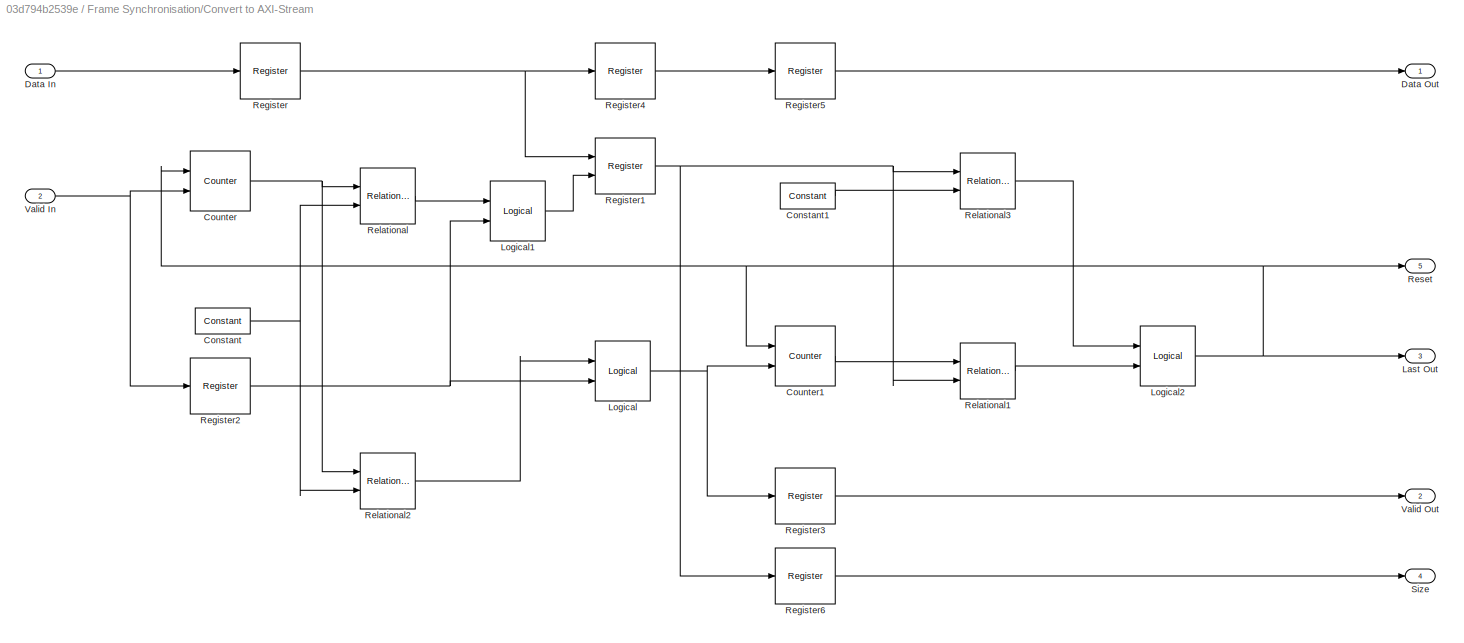
BLOCK [SubSystem] Frame Synchronisation/Convert to AXI-Stream
  Ports = [2, 5]
  RequestExecContextInheritance = off
BLOCK [Reference] Frame Synchronisation/Convert to AXI-Stream/Constant  REF=xbsIndex_r4/Constant
  Ports = [0, 1]
  SourceBlock = xbsIndex_r4/Constant
  SourceType = Xilinx Constant Block Block
BLOCK [Reference] Frame Synchronisation/Convert to AXI-Stream/Constant1  REF=xbsIndex_r4/Constant
  Ports = [0, 1]
  SourceBlock = xbsIndex_r4/Constant
  SourceType = Xilinx Constant Block Block
BLOCK [Reference] Frame Synchronisation/Convert to AXI-Stream/Counter  REF=xbsIndex_r4/Counter
  Ports = [2, 1]
  SourceBlock = xbsIndex_r4/Counter
  SourceType = Xilinx Counter Block
BLOCK [Reference] Frame Synchronisation/Convert to AXI-Stream/Counter1  REF=xbsIndex_r4/Counter
  Ports = [2, 1]
  SourceBlock = xbsIndex_r4/Counter
  SourceType = Xilinx Counter Block
BLOCK [Inport] Frame Synchronisation/Convert to AXI-Stream/Data In
  IconDisplay = Port number
BLOCK [Outport] Frame Synchronisation/Convert to AXI-Stream/Data Out
  IconDisplay = Port number
BLOCK [Outport] Frame Synchronisation/Convert to AXI-Stream/Last Out
  IconDisplay = Port number
  Port = 3
BLOCK [Reference] Frame Synchronisation/Convert to AXI-Stream/Logical  REF=xbsIndex_r4/Logical
  Ports = [2, 1]
  SourceBlock = xbsIndex_r4/Logical
  SourceType = Xilinx Logical Block Block
BLOCK [Reference] Frame Synchronisation/Convert to AXI-Stream/Logical1  REF=xbsIndex_r4/Logical
  Ports = [2, 1]
  SourceBlock = xbsIndex_r4/Logical
  SourceType = Xilinx Logical Block Block
BLOCK [Reference] Frame Synchronisation/Convert to AXI-Stream/Logical2  REF=xbsIndex_r4/Logical
  Ports = [2, 1]
  SourceBlock = xbsIndex_r4/Logical
  SourceType = Xilinx Logical Block Block
BLOCK [Reference] Frame Synchronisation/Convert to AXI-Stream/Register  REF=xbsIndex_r4/Register
  Ports = [1, 1]
  SourceBlock = xbsIndex_r4/Register
  SourceType = Xilinx Register Block
BLOCK [Reference] Frame Synchronisation/Convert to AXI-Stream/Register1  REF=xbsIndex_r4/Register
  Ports = [2, 1]
  SourceBlock = xbsIndex_r4/Register
  SourceType = Xilinx Register Block
BLOCK [Reference] Frame Synchronisation/Convert to AXI-Stream/Register2  REF=xbsIndex_r4/Register
  Ports = [1, 1]
  SourceBlock = xbsIndex_r4/Register
  SourceType = Xilinx Register Block
BLOCK [Reference] Frame Synchronisation/Convert to AXI-Stream/Register3  REF=xbsIndex_r4/Register
  Ports = [1, 1]
  SourceBlock = xbsIndex_r4/Register
  SourceType = Xilinx Register Block
BLOCK [Reference] Frame Synchronisation/Convert to AXI-Stream/Register4  REF=xbsIndex_r4/Register
  Ports = [1, 1]
  SourceBlock = xbsIndex_r4/Register
  SourceType = Xilinx Register Block
BLOCK [Reference] Frame Synchronisation/Convert to AXI-Stream/Register5  REF=xbsIndex_r4/Register
  Ports = [1, 1]
  SourceBlock = xbsIndex_r4/Register
  SourceType = Xilinx Register Block
BLOCK [Reference] Frame Synchronisation/Convert to AXI-Stream/Register6  REF=xbsIndex_r4/Register
  Ports = [1, 1]
  SourceBlock = xbsIndex_r4/Register
  SourceType = Xilinx Register Block
BLOCK [Reference] Frame Synchronisation/Convert to AXI-Stream/Relational  REF=xbsIndex_r4/Relational
  Ports = [2, 1]
  SourceBlock = xbsIndex_r4/Relational
  SourceType = Xilinx Arithmetic Relational Operator Block
BLOCK [Reference] Frame Synchronisation/Convert to AXI-Stream/Relational1  REF=xbsIndex_r4/Relational
  Ports = [2, 1]
  SourceBlock = xbsIndex_r4/Relational
  SourceType = Xilinx Arithmetic Relational Operator Block
BLOCK [Reference] Frame Synchronisation/Convert to AXI-Stream/Relational2  REF=xbsIndex_r4/Relational
  Ports = [2, 1]
  SourceBlock = xbsIndex_r4/Relational
  SourceType = Xilinx Arithmetic Relational Operator Block
BLOCK [Reference] Frame Synchronisation/Convert to AXI-Stream/Relational3  REF=xbsIndex_r4/Relational
  Ports = [2, 1]
  SourceBlock = xbsIndex_r4/Relational
  SourceType = Xilinx Arithmetic Relational Operator Block
BLOCK [Outport] Frame Synchronisation/Convert to AXI-Stream/Reset
  IconDisplay = Port number
  Port = 5
BLOCK [Outport] Frame Synchronisation/Convert to AXI-Stream/Size
  IconDisplay = Port number
  Port = 4
BLOCK [Inport] Frame Synchronisation/Convert to AXI-Stream/Valid In
  IconDisplay = Port number
  Port = 2
BLOCK [Outport] Frame Synchronisation/Convert to AXI-Stream/Valid Out
  IconDisplay = Port number
  Port = 2
BLOCK [Outport] Frame Synchronisation/Count
  IconDisplay = Port number
  Port = 5
BLOCK [Outport] Frame Synchronisation/Data Out
  IconDisplay = Port number
  Port = 2
BLOCK [SubSystem] Frame Synchronisation/Frame Sync
  Ports = [5, 3]
  RequestExecContextInheritance = off
BLOCK [Reference] Frame Synchronisation/Frame Sync/Counter1  REF=xbsIndex_r4/Counter
  Ports = [2, 1]
  SourceBlock = xbsIndex_r4/Counter
  SourceType = Xilinx Counter Block
BLOCK [SubSystem] Frame Synchronisation/Frame Sync/DBPSK Convert
  Ports = [2, 2]
  RequestExecContextInheritance = off
BLOCK [Reference] Frame Synchronisation/Frame Sync/DBPSK Convert/Constant  REF=xbsIndex_r4/Constant
  Ports = [0, 1]
  SourceBlock = xbsIndex_r4/Constant
  SourceType = Xilinx Constant Block Block
BLOCK [Reference] Frame Synchronisation/Frame Sync/DBPSK Convert/Constant1  REF=xbsIndex_r4/Constant
  Ports = [0, 1]
  SourceBlock = xbsIndex_r4/Constant
  SourceType = Xilinx Constant Block Block
BLOCK [Inport] Frame Synchronisation/Frame Sync/DBPSK Convert/Data In
  IconDisplay = Port number
BLOCK [Outport] Frame Synchronisation/Frame Sync/DBPSK Convert/Data Out
  IconDisplay = Port number
BLOCK [Reference] Frame Synchronisation/Frame Sync/DBPSK Convert/Mux  REF=xbsIndex_r4/Mux
  Ports = [3, 1]
  SourceBlock = xbsIndex_r4/Mux
  SourceType = Xilinx Bus Multiplexer Block
BLOCK [Inport] Frame Synchronisation/Frame Sync/DBPSK Convert/Valid In
  IconDisplay = Port number
  Port = 2
BLOCK [Outport] Frame Synchronisation/Frame Sync/DBPSK Convert/Valid Out
  IconDisplay = Port number
  Port = 2
BLOCK [SubSystem] Frame Synchronisation/Frame Sync/DBPSK Decision
  Ports = [2, 2]
  RequestExecContextInheritance = off
BLOCK [Inport] Frame Synchronisation/Frame Sync/DBPSK Decision/Data In
  IconDisplay = Port number
BLOCK [Outport] Frame Synchronisation/Frame Sync/DBPSK Decision/Data Out
  IconDisplay = Port number
BLOCK [Reference] Frame Synchronisation/Frame Sync/DBPSK Decision/Logical1  REF=xbsIndex_r4/Logical
  Ports = [2, 1]
  SourceBlock = xbsIndex_r4/Logical
  SourceType = Xilinx Logical Block Block
BLOCK [Reference] Frame Synchronisation/Frame Sync/DBPSK Decision/Register  REF=xbsIndex_r4/Register
  Ports = [2, 1]
  SourceBlock = xbsIndex_r4/Register
  SourceType = Xilinx Register Block
BLOCK [Reference] Frame Synchronisation/Frame Sync/DBPSK Decision/Register2  REF=xbsIndex_r4/Register
  Ports = [1, 1]
  SourceBlock = xbsIndex_r4/Register
  SourceType = Xilinx Register Block
BLOCK [Reference] Frame Synchronisation/Frame Sync/DBPSK Decision/Register3  REF=xbsIndex_r4/Register
  Ports = [2, 1]
  SourceBlock = xbsIndex_r4/Register
  SourceType = Xilinx Register Block
BLOCK [Reference] Frame Synchronisation/Frame Sync/DBPSK Decision/Register4  REF=xbsIndex_r4/Register
  Ports = [2, 1]
  SourceBlock = xbsIndex_r4/Register
  SourceType = Xilinx Register Block
BLOCK [Reference] Frame Synchronisation/Frame Sync/DBPSK Decision/Register5  REF=xbsIndex_r4/Register
  Ports = [1, 1]
  SourceBlock = xbsIndex_r4/Register
  SourceType = Xilinx Register Block
BLOCK [Inport] Frame Synchronisation/Frame Sync/DBPSK Decision/Valid In
  IconDisplay = Port number
  Port = 2
BLOCK [Outport] Frame Synchronisation/Frame Sync/DBPSK Decision/Valid Out
  IconDisplay = Port number
  Port = 2
BLOCK [Inport] Frame Synchronisation/Frame Sync/Data In
  IconDisplay = Port number
  Port = 2
BLOCK [Outport] Frame Synchronisation/Frame Sync/Data Out
  IconDisplay = Port number
BLOCK [Reference] Frame Synchronisation/Frame Sync/Delay  REF=xbsIndex_r4/Delay
  Ports = [1, 1]
  SourceBlock = xbsIndex_r4/Delay
  SourceType = Xilinx Delay Block
BLOCK [Reference] Frame Synchronisation/Frame Sync/Delay1  REF=xbsIndex_r4/Delay
  Ports = [2, 1]
  SourceBlock = xbsIndex_r4/Delay
  SourceType = Xilinx Delay Block
BLOCK [Reference] Frame Synchronisation/Frame Sync/FIR Compiler 7.2   REF=xbsIndex_r4/FIR Compiler 7.2 
  Ports = [2, 3]
  SourceBlock = xbsIndex_r4/FIR Compiler 7.2
  SourceType = Xilinx FIR Compiler 7.2 Block
BLOCK [Reference] Frame Synchronisation/Frame Sync/Logical  REF=xbsIndex_r4/Logical
  Ports = [2, 1]
  SourceBlock = xbsIndex_r4/Logical
  SourceType = Xilinx Logical Block Block
BLOCK [Reference] Frame Synchronisation/Frame Sync/Logical1  REF=xbsIndex_r4/Logical
  Ports = [2, 1]
  SourceBlock = xbsIndex_r4/Logical
  SourceType = Xilinx Logical Block Block
BLOCK [Reference] Frame Synchronisation/Frame Sync/Register1  REF=xbsIndex_r4/Register
  Ports = [3, 1]
  SourceBlock = xbsIndex_r4/Register
  SourceType = Xilinx Register Block
BLOCK [Reference] Frame Synchronisation/Frame Sync/Relational1  REF=xbsIndex_r4/Relational
  Ports = [2, 1]
  SourceBlock = xbsIndex_r4/Relational
  SourceType = Xilinx Arithmetic Relational Operator Block
BLOCK [Inport] Frame Synchronisation/Frame Sync/Reset
  IconDisplay = Port number
  Port = 5
BLOCK [SubSystem] Frame Synchronisation/Frame Sync/Rising Edge Detector
  Ports = [1, 1]
  RequestExecContextInheritance = off
BLOCK [Inport] Frame Synchronisation/Frame Sync/Rising Edge Detector/Input
  IconDisplay = Port number
BLOCK [Reference] Frame Synchronisation/Frame Sync/Rising Edge Detector/Inverter  REF=xbsIndex_r4/Inverter
  Ports = [1, 1]
  SourceBlock = xbsIndex_r4/Inverter
  SourceType = Xilinx Inverter Block
BLOCK [Reference] Frame Synchronisation/Frame Sync/Rising Edge Detector/Logical1  REF=xbsIndex_r4/Logical
  Ports = [2, 1]
  SourceBlock = xbsIndex_r4/Logical
  SourceType = Xilinx Logical Block Block
BLOCK [Outport] Frame Synchronisation/Frame Sync/Rising Edge Detector/Output
  IconDisplay = Port number
BLOCK [Reference] Frame Synchronisation/Frame Sync/Rising Edge Detector/Register2  REF=xbsIndex_r4/Register
  Ports = [1, 1]
  SourceBlock = xbsIndex_r4/Register
  SourceType = Xilinx Register Block
BLOCK [SubSystem] Frame Synchronisation/Frame Sync/Shift Register
  Ports = [2, 2]
  RequestExecContextInheritance = off
BLOCK [Reference] Frame Synchronisation/Frame Sync/Shift Register/Concat  REF=xbsIndex_r4/Concat
  Ports = [8, 1]
  SourceBlock = xbsIndex_r4/Concat
  SourceType = Xilinx Bus Concatenator Block
BLOCK [Reference] Frame Synchronisation/Frame Sync/Shift Register/Constant  REF=xbsIndex_r4/Constant
  Ports = [0, 1]
  SourceBlock = xbsIndex_r4/Constant
  SourceType = Xilinx Constant Block Block
BLOCK [Reference] Frame Synchronisation/Frame Sync/Shift Register/Counter  REF=xbsIndex_r4/Counter
  Ports = [2, 1]
  SourceBlock = xbsIndex_r4/Counter
  SourceType = Xilinx Counter Block
BLOCK [Inport] Frame Synchronisation/Frame Sync/Shift Register/Data In
  IconDisplay = Port number
BLOCK [Outport] Frame Synchronisation/Frame Sync/Shift Register/Data Out
  IconDisplay = Port number
BLOCK [Reference] Frame Synchronisation/Frame Sync/Shift Register/Register  REF=xbsIndex_r4/Register
  Ports = [2, 1]
  SourceBlock = xbsIndex_r4/Register
  SourceType = Xilinx Register Block
BLOCK [Reference] Frame Synchronisation/Frame Sync/Shift Register/Register1  REF=xbsIndex_r4/Register
  Ports = [2, 1]
  SourceBlock = xbsIndex_r4/Register
  SourceType = Xilinx Register Block
BLOCK [Reference] Frame Synchronisation/Frame Sync/Shift Register/Register2  REF=xbsIndex_r4/Register
  Ports = [2, 1]
  SourceBlock = xbsIndex_r4/Register
  SourceType = Xilinx Register Block
BLOCK [Reference] Frame Synchronisation/Frame Sync/Shift Register/Register3  REF=xbsIndex_r4/Register
  Ports = [2, 1]
  SourceBlock = xbsIndex_r4/Register
  SourceType = Xilinx Register Block
BLOCK [Reference] Frame Synchronisation/Frame Sync/Shift Register/Register4  REF=xbsIndex_r4/Register
  Ports = [2, 1]
  SourceBlock = xbsIndex_r4/Register
  SourceType = Xilinx Register Block
BLOCK [Reference] Frame Synchronisation/Frame Sync/Shift Register/Register5  REF=xbsIndex_r4/Register
  Ports = [2, 1]
  SourceBlock = xbsIndex_r4/Register
  SourceType = Xilinx Register Block
BLOCK [Reference] Frame Synchronisation/Frame Sync/Shift Register/Register6  REF=xbsIndex_r4/Register
  Ports = [2, 1]
  SourceBlock = xbsIndex_r4/Register
  SourceType = Xilinx Register Block
BLOCK [Reference] Frame Synchronisation/Frame Sync/Shift Register/Register7  REF=xbsIndex_r4/Register
  Ports = [2, 1]
  SourceBlock = xbsIndex_r4/Register
  SourceType = Xilinx Register Block
BLOCK [Reference] Frame Synchronisation/Frame Sync/Shift Register/Relational  REF=xbsIndex_r4/Relational
  Ports = [2, 1]
  SourceBlock = xbsIndex_r4/Relational
  SourceType = Xilinx Arithmetic Relational Operator Block
BLOCK [Inport] Frame Synchronisation/Frame Sync/Shift Register/Valid In
  IconDisplay = Port number
  Port = 2
BLOCK [Outport] Frame Synchronisation/Frame Sync/Shift Register/Valid Out
  IconDisplay = Port number
  Port = 2
BLOCK [Reference] Frame Synchronisation/Frame Sync/Slice  REF=xbsIndex_r4/Slice
  Ports = [1, 1]
  SourceBlock = xbsIndex_r4/Slice
  SourceType = Xilinx Bit Slice Extractor Block
BLOCK [Terminator] Frame Synchronisation/Frame Sync/Terminator
BLOCK [Terminator] Frame Synchronisation/Frame Sync/Terminator1
BLOCK [Inport] Frame Synchronisation/Frame Sync/Threshold
  IconDisplay = Port number
BLOCK [Inport] Frame Synchronisation/Frame Sync/Valid In
  IconDisplay = Port number
  Port = 3
BLOCK [Outport] Frame Synchronisation/Frame Sync/Valid Out
  IconDisplay = Port number
  Port = 2
BLOCK [Outport] Frame Synchronisation/Frame Sync/count
  IconDisplay = Port number
  Port = 3
BLOCK [Inport] Frame Synchronisation/Frame Sync/reset_count
  IconDisplay = Port number
  Port = 4
BLOCK [Outport] Frame Synchronisation/Last Out
  IconDisplay = Port number
  Port = 3
BLOCK [Inport] Frame Synchronisation/Real In
  IconDisplay = Port number
  Port = 4
BLOCK [Inport] Frame Synchronisation/Reset
  IconDisplay = Port number
BLOCK [Outport] Frame Synchronisation/Size
  IconDisplay = Port number
  Port = 4
BLOCK [Inport] Frame Synchronisation/Threshold
  IconDisplay = Port number
  Port = 2
BLOCK [Inport] Frame Synchronisation/Valid In
  IconDisplay = Port number
  Port = 3
BLOCK [Outport] Frame Synchronisation/Valid Out
  IconDisplay = Port number
BLOCK [RealImagToComplex] Real-Imag to Complex1
  Ports = [2, 1]
BLOCK [RealImagToComplex] Real-Imag to Complex2
  Ports = [2, 1]
BLOCK [Constant] Reset
  OutDataTypeStr = boolean
  SampleTime = -1
  Value = 0
BLOCK [Step] Step
  SampleTime = 1/12.5e3
  Time = 4/12.5e3
BLOCK [Terminator] Terminator3
BLOCK [Terminator] Terminator4
BLOCK [Terminator] Terminator5
BLOCK [Constant] Threshold
  OutDataTypeStr = uint32
  SampleTime = -1
  Value = 39
BLOCK [Scope] Time Scope
  DefaultConfigurationName = spbscopes.TimeScopeBlockCfg
  Floating = off
  NumInputPorts = 2
  Ports = [2]
  ScopeSpecificationString = spbscopes.TimeScopeBlockCfg('CurrentConfiguration', extmgr.ConfigurationSet(extmgr.Configuration('Core','General UI',true,'FigureColor',[1 1 1]),extmgr.Configuration('Core','Source UI',true),extmgr.Configuration('Sources','WiredSimulink',true),extmgr.Configuration('Visuals','Time Domain',true,'DisplayLayoutDimensions',[2 1],'DisplayPropertyDefaults',struct('YLabelReal','Amplitude','ColorOrder',[1 ...<+3427ch>
  UserDataPersistent = on
BLOCK [SubSystem] Time Synchronisation
  Ports = [4, 3]
  RequestExecContextInheritance = off
BLOCK [Inport] Time Synchronisation/Imag In
  IconDisplay = Port number
  Port = 4
BLOCK [Outport] Time Synchronisation/Imag Out
  IconDisplay = Port number
  Port = 3
BLOCK [SubSystem] Time Synchronisation/Loop Filter
  Ports = [5, 4]
  RequestExecContextInheritance = off
BLOCK [Reference] Time Synchronisation/Loop Filter/AddSub  REF=xbsIndex_r4/AddSub
  Ports = [2, 1]
  SourceBlock = xbsIndex_r4/AddSub
  SourceType = Xilinx Adder/Subtracter Block
BLOCK [Reference] Time Synchronisation/Loop Filter/AddSub1  REF=xbsIndex_r4/AddSub
  Ports = [2, 1]
  SourceBlock = xbsIndex_r4/AddSub
  SourceType = Xilinx Adder/Subtracter Block
BLOCK [Reference] Time Synchronisation/Loop Filter/Delay1  REF=xbsIndex_r4/Delay
  Ports = [1, 1]
  SourceBlock = xbsIndex_r4/Delay
  SourceType = Xilinx Delay Block
BLOCK [Reference] Time Synchronisation/Loop Filter/Delay2  REF=xbsIndex_r4/Delay
  Ports = [1, 1]
  SourceBlock = xbsIndex_r4/Delay
  SourceType = Xilinx Delay Block
BLOCK [Reference] Time Synchronisation/Loop Filter/Delay3  REF=xbsIndex_r4/Delay
  Ports = [1, 1]
  SourceBlock = xbsIndex_r4/Delay
  SourceType = Xilinx Delay Block
BLOCK [Outport] Time Synchronisation/Loop Filter/Error Out
  IconDisplay = Port number
  Port = 4
BLOCK [Inport] Time Synchronisation/Loop Filter/Imag In
  IconDisplay = Port number
  Port = 2
BLOCK [Outport] Time Synchronisation/Loop Filter/Imag Out
  IconDisplay = Port number
  Port = 2
BLOCK [Reference] Time Synchronisation/Loop Filter/K1_Gain  REF=xbsIndex_r4/CMult
  Ports = [1, 1]
  SourceBlock = xbsIndex_r4/CMult
  SourceType = Xilinx Constant Multiplier Block
BLOCK [Reference] Time Synchronisation/Loop Filter/K2_Gain  REF=xbsIndex_r4/CMult
  Ports = [1, 1]
  SourceBlock = xbsIndex_r4/CMult
  SourceType = Xilinx Constant Multiplier Block
BLOCK [Inport] Time Synchronisation/Loop Filter/Real In
  IconDisplay = Port number
BLOCK [Outport] Time Synchronisation/Loop Filter/Real Out
  IconDisplay = Port number
BLOCK [Reference] Time Synchronisation/Loop Filter/Register  REF=xbsIndex_r4/Register
  Ports = [3, 1]
  SourceBlock = xbsIndex_r4/Register
  SourceType = Xilinx Register Block
BLOCK [Reference] Time Synchronisation/Loop Filter/Register1  REF=xbsIndex_r4/Register
  Ports = [3, 1]
  SourceBlock = xbsIndex_r4/Register
  SourceType = Xilinx Register Block
BLOCK [Inport] Time Synchronisation/Loop Filter/Reset
  IconDisplay = Port number
  Port = 5
BLOCK [Inport] Time Synchronisation/Loop Filter/Signal In
  IconDisplay = Port number
  Port = 3
BLOCK [Inport] Time Synchronisation/Loop Filter/Valid In
  IconDisplay = Port number
  Port = 4
BLOCK [Outport] Time Synchronisation/Loop Filter/Valid Out
  IconDisplay = Port number
  Port = 3
BLOCK [SubSystem] Time Synchronisation/NCC
  Ports = [1, 1]
  RequestExecContextInheritance = off
BLOCK [Reference] Time Synchronisation/NCC/AddSub  REF=xbsIndex_r4/AddSub
  Ports = [2, 1]
  SourceBlock = xbsIndex_r4/AddSub
  SourceType = Xilinx Adder/Subtracter Block
BLOCK [Reference] Time Synchronisation/NCC/AddSub1  REF=xbsIndex_r4/AddSub
  Ports = [2, 1]
  SourceBlock = xbsIndex_r4/AddSub
  SourceType = Xilinx Adder/Subtracter Block
BLOCK [Reference] Time Synchronisation/NCC/Constant  REF=xbsIndex_r4/Constant
  Ports = [0, 1]
  SourceBlock = xbsIndex_r4/Constant
  SourceType = Xilinx Constant Block Block
BLOCK [Inport] Time Synchronisation/NCC/Error
  IconDisplay = Port number
BLOCK [Reference] Time Synchronisation/NCC/Register  REF=xbsIndex_r4/Register
  Ports = [1, 1]
  SourceBlock = xbsIndex_r4/Register
  SourceType = Xilinx Register Block
BLOCK [Reference] Time Synchronisation/NCC/Relational  REF=xbsIndex_r4/Relational
  Ports = [2, 1]
  SourceBlock = xbsIndex_r4/Relational
  SourceType = Xilinx Arithmetic Relational Operator Block
BLOCK [Outport] Time Synchronisation/NCC/Strobe
  IconDisplay = Port number
BLOCK [Inport] Time Synchronisation/Real In
  IconDisplay = Port number
  Port = 3
BLOCK [Outport] Time Synchronisation/Real Out
  IconDisplay = Port number
  Port = 2
BLOCK [Inport] Time Synchronisation/Reset
  IconDisplay = Port number
BLOCK [Terminator] Time Synchronisation/Terminator
BLOCK [SubSystem] Time Synchronisation/Timing Error Detector
  Ports = [2, 1]
  RequestExecContextInheritance = off
BLOCK [Reference] Time Synchronisation/Timing Error Detector/AddSub  REF=xbsIndex_r4/AddSub
  Ports = [2, 1]
  SourceBlock = xbsIndex_r4/AddSub
  SourceType = Xilinx Adder/Subtracter Block
BLOCK [Reference] Time Synchronisation/Timing Error Detector/AddSub1  REF=xbsIndex_r4/AddSub
  Ports = [2, 1]
  SourceBlock = xbsIndex_r4/AddSub
  SourceType = Xilinx Adder/Subtracter Block
BLOCK [Reference] Time Synchronisation/Timing Error Detector/AddSub2  REF=xbsIndex_r4/AddSub
  Ports = [2, 1]
  SourceBlock = xbsIndex_r4/AddSub
  SourceType = Xilinx Adder/Subtracter Block
BLOCK [Reference] Time Synchronisation/Timing Error Detector/Delay  REF=xbsIndex_r4/Delay
  Ports = [1, 1]
  SourceBlock = xbsIndex_r4/Delay
  SourceType = Xilinx Delay Block
BLOCK [Reference] Time Synchronisation/Timing Error Detector/Delay1  REF=xbsIndex_r4/Delay
  Ports = [1, 1]
  SourceBlock = xbsIndex_r4/Delay
  SourceType = Xilinx Delay Block
BLOCK [Outport] Time Synchronisation/Timing Error Detector/Error
  IconDisplay = Port number
BLOCK [Inport] Time Synchronisation/Timing Error Detector/Imag In
  IconDisplay = Port number
  Port = 2
BLOCK [Reference] Time Synchronisation/Timing Error Detector/Mult1  REF=xbsIndex_r4/Mult
  Ports = [2, 1]
  SourceBlock = xbsIndex_r4/Mult
  SourceType = Xilinx Multiplier Block
BLOCK [Reference] Time Synchronisation/Timing Error Detector/Mult2  REF=xbsIndex_r4/Mult
  Ports = [2, 1]
  SourceBlock = xbsIndex_r4/Mult
  SourceType = Xilinx Multiplier Block
BLOCK [Inport] Time Synchronisation/Timing Error Detector/Real In
  IconDisplay = Port number
BLOCK [Inport] Time Synchronisation/Valid In
  IconDisplay = Port number
  Port = 2
BLOCK [Outport] Time Synchronisation/Valid Out
  IconDisplay = Port number
BLOCK [Constant] Valid
  OutDataTypeStr = boolean
  SampleTime = 1/3.2e6
BLOCK [Reference] packet_count  REF=xbsIndex_r4/Gateway Out
  Ports = [1, 1]
  SourceBlock = xbsIndex_r4/Gateway Out
  SourceType = Xilinx Gateway Out Block
BLOCK [Reference] packet_size  REF=xbsIndex_r4/Gateway Out
  Ports = [1, 1]
  SourceBlock = xbsIndex_r4/Gateway Out
  SourceType = Xilinx Gateway Out Block
BLOCK [Reference] reset_frame_sync  REF=xbsIndex_r4/Gateway In
  Ports = [1, 1]
  SourceBlock = xbsIndex_r4/Gateway In
  SourceType = Xilinx Gateway In Block
BLOCK [Reference] reset_phase_sync  REF=xbsIndex_r4/Gateway In
  Ports = [1, 1]
  SourceBlock = xbsIndex_r4/Gateway In
  SourceType = Xilinx Gateway In Block
BLOCK [Reference] reset_time_sync  REF=xbsIndex_r4/Gateway In
  Ports = [1, 1]
  SourceBlock = xbsIndex_r4/Gateway In
  SourceType = Xilinx Gateway In Block
BLOCK [Reference] sim_inspect_im  REF=xbsIndex_r4/Gateway Out
  Ports = [1, 1]
  SourceBlock = xbsIndex_r4/Gateway Out
  SourceType = Xilinx Gateway Out Block
BLOCK [Reference] sim_inspect_re  REF=xbsIndex_r4/Gateway Out
  Ports = [1, 1]
  SourceBlock = xbsIndex_r4/Gateway Out
  SourceType = Xilinx Gateway Out Block
BLOCK [Reference] sim_inspect_valid  REF=xbsIndex_r4/Gateway Out
  Ports = [1, 1]
  SourceBlock = xbsIndex_r4/Gateway Out
  SourceType = Xilinx Gateway Out Block
BLOCK [Reference] threshold  REF=xbsIndex_r4/Gateway In
  Ports = [1, 1]
  SourceBlock = xbsIndex_r4/Gateway In
  SourceType = Xilinx Gateway In Block
ANNOTATION (root): Frame Synchronisation
ANNOTATION (root): Author: David Northcote Date: 15/09/2020
ANNOTATION AXI-Stream Master Interface: AXI-Stream
ANNOTATION BPSK System/RF-ADC/NCO and Mixer/RF-ADC Coarse Mixer/fs_4: Real: 1, 0, -1, 0 Imag: 0, 1, 0, -1
ANNOTATION BPSK System/RF-DAC: Not Ready
ANNOTATION BPSK System/RF-DAC/NCO and Mixer/RF-DAC Coarse Mixer/fs_4: Real: 1, 0, -1, 0 Imag: 0, 1, 0, -1
ANNOTATION Carrier Synchronisation/Generate NCO/Loop Filter: The input to the loop filter should only be changed once per symbol. Use an enable register with the strobe from the NCC to hold the data in place.
ANNOTATION Complex AXI-Stream Slave Interface: AXI-Stream Imag
ANNOTATION Complex AXI-Stream Slave Interface: AXI-Stream Real
ANNOTATION Time Synchronisation/Loop Filter: The input to the loop filter should only be changed once per symbol. Use an enable register with the strobe from the NCC to hold the data in place.
ANNOTATION Time Synchronisation/Loop Filter: Get centre of symbol
ANNOTATION Time Synchronisation/NCC: For the Numerically Controlled Clock (NCC), we need to consider the symbol oversample factor and the fractional wordlength of the accumulator. The number of samples per symbol determine the maximum value of the accumulator {ceil(log2(n))+1}. The fractional bits determine the quantisation step (precision), of our accumulator. We add 1 to the error signal at all times, as this is necessary to ensure...<+224ch>
LINE AXI-Stream Master Interface/Data In:1 -> AXI-Stream Master Interface/m_axis_tdata:1
LINE AXI-Stream Master Interface/Last In:1 -> AXI-Stream Master Interface/m_axis_tlast:1
LINE AXI-Stream Master Interface/Valid In:1 -> AXI-Stream Master Interface/m_axis_tvalid:1
LINE AXI-Stream Master Interface/m_axis_tdata:1 -> AXI-Stream Master Interface/Data Out:1
LINE AXI-Stream Master Interface/m_axis_tlast:1 -> AXI-Stream Master Interface/Last Out:1
LINE AXI-Stream Master Interface/m_axis_tvalid:1 -> AXI-Stream Master Interface/Valid Out:1
LINE AXI-Stream Master Interface:1 -> Terminator3:1
LINE AXI-Stream Master Interface:2 -> Terminator4:1
LINE AXI-Stream Master Interface:3 -> Terminator5:1
LINE BPSK System/BPSK RX Generation/CIC Decimation:1 -> BPSK System/BPSK RX Generation/Shift Arithmetic:1
LINE BPSK System/BPSK RX Generation/Data In:1 -> BPSK System/BPSK RX Generation/Unbuffer:1
LINE BPSK System/BPSK RX Generation/FIR 0:1 -> BPSK System/BPSK RX Generation/CIC Decimation:1
LINE BPSK System/BPSK RX Generation/Gain:1 -> BPSK System/BPSK RX Generation/RRC Receive Filter:1
LINE BPSK System/BPSK RX Generation/RRC Receive Filter/Data In:1 -> BPSK System/BPSK RX Generation/RRC Receive Filter/FIR Decimation:1
LINE BPSK System/BPSK RX Generation/RRC Receive Filter/Data Type Conversion2:1 -> BPSK System/BPSK RX Generation/RRC Receive Filter/Data Out:1
LINE BPSK System/BPSK RX Generation/RRC Receive Filter/FIR Decimation:1 -> BPSK System/BPSK RX Generation/RRC Receive Filter/Data Type Conversion2:1
LINE BPSK System/BPSK RX Generation/RRC Receive Filter:1 -> BPSK System/BPSK RX Generation/Data Out:1
LINE BPSK System/BPSK RX Generation/Shift Arithmetic:1 -> BPSK System/BPSK RX Generation/Gain:1
LINE BPSK System/BPSK RX Generation/Unbuffer:1 -> BPSK System/BPSK RX Generation/FIR 0:1
LINE BPSK System/BPSK RX Generation:1 -> BPSK System/Complex to Real-Imag:1
LINE BPSK System/BPSK TX Generation/Bernoulli Binary Generator:1 -> BPSK System/BPSK TX Generation/Multiport Switch:2
LINE BPSK System/BPSK TX Generation/CIC Interpolation:1 -> BPSK System/BPSK TX Generation/Shift Arithmetic:1
LINE BPSK System/BPSK TX Generation/Constant:1 -> BPSK System/BPSK TX Generation/DMA Read:2
LINE BPSK System/BPSK TX Generation/DBPSK Modulator/Cast To Boolean:1 -> BPSK System/BPSK TX Generation/DBPSK Modulator/XOR:2
LINE BPSK System/BPSK TX Generation/DBPSK Modulator/Constant1:1 -> BPSK System/BPSK TX Generation/DBPSK Modulator/Multiport Switch:3
LINE BPSK System/BPSK TX Generation/DBPSK Modulator/Constant2:1 -> BPSK System/BPSK TX Generation/DBPSK Modulator/Real-Imag to Complex:2
LINE BPSK System/BPSK TX Generation/DBPSK Modulator/Constant:1 -> BPSK System/BPSK TX Generation/DBPSK Modulator/Multiport Switch:2
LINE BPSK System/BPSK TX Generation/DBPSK Modulator/Delay:1 -> BPSK System/BPSK TX Generation/DBPSK Modulator/XOR:1
LINE BPSK System/BPSK TX Generation/DBPSK Modulator/Input:1 -> BPSK System/BPSK TX Generation/DBPSK Modulator/Cast To Boolean:1
LINE BPSK System/BPSK TX Generation/DBPSK Modulator/Multiport Switch:1 -> BPSK System/BPSK TX Generation/DBPSK Modulator/Real-Imag to Complex:1
LINE BPSK System/BPSK TX Generation/DBPSK Modulator/Real-Imag to Complex:1 -> BPSK System/BPSK TX Generation/DBPSK Modulator/Output:1
NET BPSK System/BPSK TX Generation/DBPSK Modulator/XOR:1 -> BPSK System/BPSK TX Generation/DBPSK Modulator/Delay:1, BPSK System/BPSK TX Generation/DBPSK Modulator/Multiport Switch:1
LINE BPSK System/BPSK TX Generation/DBPSK Modulator:1 -> BPSK System/BPSK TX Generation/FIR Interpolation:1
NET BPSK System/BPSK TX Generation/DMA Read/1-D Lookup Table:1 -> BPSK System/BPSK TX Generation/DMA Read/Bit Slice1:1, BPSK System/BPSK TX Generation/DMA Read/Bit Slice2:1, BPSK System/BPSK TX Generation/DMA Read/Bit Slice3:1, BPSK System/BPSK TX Generation/DMA Read/Bit Slice4:1, BPSK System/BPSK TX Generation/DMA Read/Bit Slice5:1, BPSK System/BPSK TX Generation/DMA Read/Bit Slice6:1, BPSK System/BPSK TX Generation/DMA Read/Bit Slice7:1, BPSK System/BPSK TX Generation/DMA Read/Bit Slice:1
LINE BPSK System/BPSK TX Generation/DMA Read/AND1:1 -> BPSK System/BPSK TX Generation/DMA Read/tlast:1
NET BPSK System/BPSK TX Generation/DMA Read/AND:1 -> BPSK System/BPSK TX Generation/DMA Read/AND1:2, BPSK System/BPSK TX Generation/DMA Read/HDL Counter:2, BPSK System/BPSK TX Generation/DMA Read/Serializer1D:2
LINE BPSK System/BPSK TX Generation/DMA Read/Bit Slice1:1 -> BPSK System/BPSK TX Generation/DMA Read/Matrix Concatenate:2
LINE BPSK System/BPSK TX Generation/DMA Read/Bit Slice2:1 -> BPSK System/BPSK TX Generation/DMA Read/Matrix Concatenate:3
LINE BPSK System/BPSK TX Generation/DMA Read/Bit Slice3:1 -> BPSK System/BPSK TX Generation/DMA Read/Matrix Concatenate:4
LINE BPSK System/BPSK TX Generation/DMA Read/Bit Slice4:1 -> BPSK System/BPSK TX Generation/DMA Read/Matrix Concatenate:5
LINE BPSK System/BPSK TX Generation/DMA Read/Bit Slice5:1 -> BPSK System/BPSK TX Generation/DMA Read/Matrix Concatenate:6
LINE BPSK System/BPSK TX Generation/DMA Read/Bit Slice6:1 -> BPSK System/BPSK TX Generation/DMA Read/Matrix Concatenate:7
LINE BPSK System/BPSK TX Generation/DMA Read/Bit Slice7:1 -> BPSK System/BPSK TX Generation/DMA Read/Matrix Concatenate:8
LINE BPSK System/BPSK TX Generation/DMA Read/Bit Slice:1 -> BPSK System/BPSK TX Generation/DMA Read/Matrix Concatenate:1
NET BPSK System/BPSK TX Generation/DMA Read/Compare To Constant:1 -> BPSK System/BPSK TX Generation/DMA Read/AND1:1, BPSK System/BPSK TX Generation/DMA Read/HDL Counter:1, BPSK System/BPSK TX Generation/DMA Read/Latch:2
LINE BPSK System/BPSK TX Generation/DMA Read/Data Type Conversion:1 -> BPSK System/BPSK TX Generation/DMA Read/1-D Lookup Table:1
NET BPSK System/BPSK TX Generation/DMA Read/HDL Counter:1 -> BPSK System/BPSK TX Generation/DMA Read/Compare To Constant:1, BPSK System/BPSK TX Generation/DMA Read/Data Type Conversion:1
NET BPSK System/BPSK TX Generation/DMA Read/Latch/Multiport Switch:1 -> BPSK System/BPSK TX Generation/DMA Read/Latch/Q:1, BPSK System/BPSK TX Generation/DMA Read/Latch/Unit Delay Resettable Synchronous:1
LINE BPSK System/BPSK TX Generation/DMA Read/Latch/R:1 -> BPSK System/BPSK TX Generation/DMA Read/Latch/Unit Delay Resettable Synchronous:2
NET BPSK System/BPSK TX Generation/DMA Read/Latch/S:1 -> BPSK System/BPSK TX Generation/DMA Read/Latch/Multiport Switch:1, BPSK System/BPSK TX Generation/DMA Read/Latch/Multiport Switch:3
LINE BPSK System/BPSK TX Generation/DMA Read/Latch/Unit Delay Resettable Synchronous:1 -> BPSK System/BPSK TX Generation/DMA Read/Latch/Multiport Switch:2
LINE BPSK System/BPSK TX Generation/DMA Read/Latch:1 -> BPSK System/BPSK TX Generation/DMA Read/AND:2
LINE BPSK System/BPSK TX Generation/DMA Read/Matrix Concatenate:1 -> BPSK System/BPSK TX Generation/DMA Read/Serializer1D:1
LINE BPSK System/BPSK TX Generation/DMA Read/Rising Edge Detector/AND1:1 -> BPSK System/BPSK TX Generation/DMA Read/Rising Edge Detector/Output:1
LINE BPSK System/BPSK TX Generation/DMA Read/Rising Edge Detector/Delay1:1 -> BPSK System/BPSK TX Generation/DMA Read/Rising Edge Detector/NOT:1
NET BPSK System/BPSK TX Generation/DMA Read/Rising Edge Detector/Input:1 -> BPSK System/BPSK TX Generation/DMA Read/Rising Edge Detector/AND1:2, BPSK System/BPSK TX Generation/DMA Read/Rising Edge Detector/Delay1:1
LINE BPSK System/BPSK TX Generation/DMA Read/Rising Edge Detector/NOT:1 -> BPSK System/BPSK TX Generation/DMA Read/Rising Edge Detector/AND1:1
LINE BPSK System/BPSK TX Generation/DMA Read/Rising Edge Detector:1 -> BPSK System/BPSK TX Generation/DMA Read/Latch:1
LINE BPSK System/BPSK TX Generation/DMA Read/Serializer1D:1 -> BPSK System/BPSK TX Generation/DMA Read/tdata:1
LINE BPSK System/BPSK TX Generation/DMA Read/Serializer1D:2 -> BPSK System/BPSK TX Generation/DMA Read/tvalid:1
LINE BPSK System/BPSK TX Generation/DMA Read/enable:1 -> BPSK System/BPSK TX Generation/DMA Read/Rising Edge Detector:1
LINE BPSK System/BPSK TX Generation/DMA Read/tready:1 -> BPSK System/BPSK TX Generation/DMA Read/AND:1
LINE BPSK System/BPSK TX Generation/DMA Read:1 -> BPSK System/BPSK TX Generation/Multiport Switch:3
LINE BPSK System/BPSK TX Generation/DMA Read:2 -> BPSK System/BPSK TX Generation/Multiport Switch:1
LINE BPSK System/BPSK TX Generation/DMA Read:3 -> BPSK System/BPSK TX Generation/Terminator1:1
LINE BPSK System/BPSK TX Generation/Data Type Conversion2:1 -> BPSK System/BPSK TX Generation/CIC Interpolation:1
LINE BPSK System/BPSK TX Generation/Enable:1 -> BPSK System/BPSK TX Generation/DMA Read:1
LINE BPSK System/BPSK TX Generation/FIR Interpolation:1 -> BPSK System/BPSK TX Generation/Data Type Conversion2:1
LINE BPSK System/BPSK TX Generation/Multiply:1 -> BPSK System/BPSK TX Generation/BPSK:1
LINE BPSK System/BPSK TX Generation/Multiport Switch:1 -> BPSK System/BPSK TX Generation/DBPSK Modulator:1
LINE BPSK System/BPSK TX Generation/Shift Arithmetic:1 -> BPSK System/BPSK TX Generation/Multiply:1
LINE BPSK System/BPSK TX Generation:1 -> BPSK System/RF-DAC:1
LINE BPSK System/Complex to Real-Imag:1 -> BPSK System/Re:1
LINE BPSK System/Complex to Real-Imag:2 -> BPSK System/Im:1
LINE BPSK System/Enable:1 -> BPSK System/BPSK TX Generation:1
LINE BPSK System/RF Balun Gain RX:1 -> BPSK System/RF-ADC:1
LINE BPSK System/RF Balun Gain TX:1 -> BPSK System/RF Balun Gain RX:1
LINE BPSK System/RF-ADC/Data In:1 -> BPSK System/RF-ADC/RF-ADC:1
LINE BPSK System/RF-ADC/Decimation Filter/Data In:1 -> BPSK System/RF-ADC/Decimation Filter/FIR 2:1
LINE BPSK System/RF-ADC/Decimation Filter/FIR 0:1 -> BPSK System/RF-ADC/Decimation Filter/Data Out:1
LINE BPSK System/RF-ADC/Decimation Filter/FIR 1:1 -> BPSK System/RF-ADC/Decimation Filter/FIR 0:1
LINE BPSK System/RF-ADC/Decimation Filter/FIR 2:1 -> BPSK System/RF-ADC/Decimation Filter/FIR 1:1
LINE BPSK System/RF-ADC/Decimation Filter:1 -> BPSK System/RF-ADC/Data Out:1
LINE BPSK System/RF-ADC/NCO and Mixer/Constant1:1 -> BPSK System/RF-ADC/NCO and Mixer/Multiport Switch1:1
NET BPSK System/RF-ADC/NCO and Mixer/Data In:1 -> BPSK System/RF-ADC/NCO and Mixer/RF-ADC Coarse Mixer:1, BPSK System/RF-ADC/NCO and Mixer/RF-ADC Fine Mixer:1, BPSK System/RF-ADC/NCO and Mixer/Real-Imag to Complex:1, BPSK System/RF-ADC/NCO and Mixer/Real-Imag to Complex:2
LINE BPSK System/RF-ADC/NCO and Mixer/Data Type Conversion:1 -> BPSK System/RF-ADC/NCO and Mixer/Multiport Switch1:2
LINE BPSK System/RF-ADC/NCO and Mixer/Multiport Switch1:1 -> BPSK System/RF-ADC/NCO and Mixer/Data Out:1
LINE BPSK System/RF-ADC/NCO and Mixer/RF-ADC Coarse Mixer/Constant:1 -> BPSK System/RF-ADC/NCO and Mixer/RF-ADC Coarse Mixer/Multiport Switch1:1
NET BPSK System/RF-ADC/NCO and Mixer/RF-ADC Coarse Mixer/Data In:1 -> BPSK System/RF-ADC/NCO and Mixer/RF-ADC Coarse Mixer/fs_2:1, BPSK System/RF-ADC/NCO and Mixer/RF-ADC Coarse Mixer/fs_4:1
LINE BPSK System/RF-ADC/NCO and Mixer/RF-ADC Coarse Mixer/Data Type Conversion:1 -> BPSK System/RF-ADC/NCO and Mixer/RF-ADC Coarse Mixer/Data Out:1
LINE BPSK System/RF-ADC/NCO and Mixer/RF-ADC Coarse Mixer/Multiport Switch1:1 -> BPSK System/RF-ADC/NCO and Mixer/RF-ADC Coarse Mixer/Data Type Conversion:1
LINE BPSK System/RF-ADC/NCO and Mixer/RF-ADC Coarse Mixer/Negate/Complex to Real-Imag2:1 -> BPSK System/RF-ADC/NCO and Mixer/RF-ADC Coarse Mixer/Negate/Real-Imag to Complex1:1
LINE BPSK System/RF-ADC/NCO and Mixer/RF-ADC Coarse Mixer/Negate/Complex to Real-Imag2:2 -> BPSK System/RF-ADC/NCO and Mixer/RF-ADC Coarse Mixer/Negate/Unary Minus:1
LINE BPSK System/RF-ADC/NCO and Mixer/RF-ADC Coarse Mixer/Negate/Data In:1 -> BPSK System/RF-ADC/NCO and Mixer/RF-ADC Coarse Mixer/Negate/Complex to Real-Imag2:1
LINE BPSK System/RF-ADC/NCO and Mixer/RF-ADC Coarse Mixer/Negate/Real-Imag to Complex1:1 -> BPSK System/RF-ADC/NCO and Mixer/RF-ADC Coarse Mixer/Negate/Data Out:1
LINE BPSK System/RF-ADC/NCO and Mixer/RF-ADC Coarse Mixer/Negate/Unary Minus:1 -> BPSK System/RF-ADC/NCO and Mixer/RF-ADC Coarse Mixer/Negate/Real-Imag to Complex1:2
LINE BPSK System/RF-ADC/NCO and Mixer/RF-ADC Coarse Mixer/Negate:1 -> BPSK System/RF-ADC/NCO and Mixer/RF-ADC Coarse Mixer/Multiport Switch1:4
LINE BPSK System/RF-ADC/NCO and Mixer/RF-ADC Coarse Mixer/fs_2/Counter:1 -> BPSK System/RF-ADC/NCO and Mixer/RF-ADC Coarse Mixer/fs_2/Multiport Switch2:1
NET BPSK System/RF-ADC/NCO and Mixer/RF-ADC Coarse Mixer/fs_2/Data In:1 -> BPSK System/RF-ADC/NCO and Mixer/RF-ADC Coarse Mixer/fs_2/Real-Imag to Complex1:1, BPSK System/RF-ADC/NCO and Mixer/RF-ADC Coarse Mixer/fs_2/Real-Imag to Complex1:2, BPSK System/RF-ADC/NCO and Mixer/RF-ADC Coarse Mixer/fs_2/Unary Minus1:1
LINE BPSK System/RF-ADC/NCO and Mixer/RF-ADC Coarse Mixer/fs_2/Multiport Switch2:1 -> BPSK System/RF-ADC/NCO and Mixer/RF-ADC Coarse Mixer/fs_2/Data Out:1
LINE BPSK System/RF-ADC/NCO and Mixer/RF-ADC Coarse Mixer/fs_2/Real-Imag to Complex1:1 -> BPSK System/RF-ADC/NCO and Mixer/RF-ADC Coarse Mixer/fs_2/Multiport Switch2:2
LINE BPSK System/RF-ADC/NCO and Mixer/RF-ADC Coarse Mixer/fs_2/Real-Imag to Complex:1 -> BPSK System/RF-ADC/NCO and Mixer/RF-ADC Coarse Mixer/fs_2/Multiport Switch2:3
NET BPSK System/RF-ADC/NCO and Mixer/RF-ADC Coarse Mixer/fs_2/Unary Minus1:1 -> BPSK System/RF-ADC/NCO and Mixer/RF-ADC Coarse Mixer/fs_2/Real-Imag to Complex:1, BPSK System/RF-ADC/NCO and Mixer/RF-ADC Coarse Mixer/fs_2/Real-Imag to Complex:2
LINE BPSK System/RF-ADC/NCO and Mixer/RF-ADC Coarse Mixer/fs_2:1 -> BPSK System/RF-ADC/NCO and Mixer/RF-ADC Coarse Mixer/Multiport Switch1:2
LINE BPSK System/RF-ADC/NCO and Mixer/RF-ADC Coarse Mixer/fs_4/Counter:1 -> BPSK System/RF-ADC/NCO and Mixer/RF-ADC Coarse Mixer/fs_4/Multiport Switch2:1
NET BPSK System/RF-ADC/NCO and Mixer/RF-ADC Coarse Mixer/fs_4/Data In:1 -> BPSK System/RF-ADC/NCO and Mixer/RF-ADC Coarse Mixer/fs_4/Real-Imag to Complex2:1, BPSK System/RF-ADC/NCO and Mixer/RF-ADC Coarse Mixer/fs_4/Real-Imag to Complex3:2, BPSK System/RF-ADC/NCO and Mixer/RF-ADC Coarse Mixer/fs_4/Real-Imag to Complex4:1, BPSK System/RF-ADC/NCO and Mixer/RF-ADC Coarse Mixer/fs_4/Real-Imag to Complex4:2, BPSK System/RF-ADC/NCO and Mixer/RF-ADC Coarse Mixer/fs_4/Unary Minus1:1, BPSK System/RF-ADC/NCO and Mixer/RF-ADC Coarse Mixer/fs_4/Unary Minus2:1, BPSK System/RF-ADC/NCO and Mixer/RF-ADC Coarse Mixer/fs_4/Unary Minus:1
LINE BPSK System/RF-ADC/NCO and Mixer/RF-ADC Coarse Mixer/fs_4/Multiport Switch2:1 -> BPSK System/RF-ADC/NCO and Mixer/RF-ADC Coarse Mixer/fs_4/Data Out:1
LINE BPSK System/RF-ADC/NCO and Mixer/RF-ADC Coarse Mixer/fs_4/Real-Imag to Complex1:1 -> BPSK System/RF-ADC/NCO and Mixer/RF-ADC Coarse Mixer/fs_4/Multiport Switch2:4
LINE BPSK System/RF-ADC/NCO and Mixer/RF-ADC Coarse Mixer/fs_4/Real-Imag to Complex2:1 -> BPSK System/RF-ADC/NCO and Mixer/RF-ADC Coarse Mixer/fs_4/Multiport Switch2:3
LINE BPSK System/RF-ADC/NCO and Mixer/RF-ADC Coarse Mixer/fs_4/Real-Imag to Complex3:1 -> BPSK System/RF-ADC/NCO and Mixer/RF-ADC Coarse Mixer/fs_4/Multiport Switch2:5
LINE BPSK System/RF-ADC/NCO and Mixer/RF-ADC Coarse Mixer/fs_4/Real-Imag to Complex4:1 -> BPSK System/RF-ADC/NCO and Mixer/RF-ADC Coarse Mixer/fs_4/Multiport Switch2:2
NET BPSK System/RF-ADC/NCO and Mixer/RF-ADC Coarse Mixer/fs_4/Unary Minus1:1 -> BPSK System/RF-ADC/NCO and Mixer/RF-ADC Coarse Mixer/fs_4/Real-Imag to Complex1:1, BPSK System/RF-ADC/NCO and Mixer/RF-ADC Coarse Mixer/fs_4/Real-Imag to Complex1:2
LINE BPSK System/RF-ADC/NCO and Mixer/RF-ADC Coarse Mixer/fs_4/Unary Minus2:1 -> BPSK System/RF-ADC/NCO and Mixer/RF-ADC Coarse Mixer/fs_4/Real-Imag to Complex2:2
LINE BPSK System/RF-ADC/NCO and Mixer/RF-ADC Coarse Mixer/fs_4/Unary Minus:1 -> BPSK System/RF-ADC/NCO and Mixer/RF-ADC Coarse Mixer/fs_4/Real-Imag to Complex3:1
NET BPSK System/RF-ADC/NCO and Mixer/RF-ADC Coarse Mixer/fs_4:1 -> BPSK System/RF-ADC/NCO and Mixer/RF-ADC Coarse Mixer/Multiport Switch1:3, BPSK System/RF-ADC/NCO and Mixer/RF-ADC Coarse Mixer/Negate:1
LINE BPSK System/RF-ADC/NCO and Mixer/RF-ADC Coarse Mixer:1 -> BPSK System/RF-ADC/NCO and Mixer/Multiport Switch1:3
LINE BPSK System/RF-ADC/NCO and Mixer/RF-ADC Fine Mixer/Complex to Real-Imag:1 -> BPSK System/RF-ADC/NCO and Mixer/RF-ADC Fine Mixer/Shift Arithmetic1:1
LINE BPSK System/RF-ADC/NCO and Mixer/RF-ADC Fine Mixer/Complex to Real-Imag:2 -> BPSK System/RF-ADC/NCO and Mixer/RF-ADC Fine Mixer/Shift Arithmetic:1
LINE BPSK System/RF-ADC/NCO and Mixer/RF-ADC Fine Mixer/Constant:1 -> BPSK System/RF-ADC/NCO and Mixer/RF-ADC Fine Mixer/Multiport Switch:1
NET BPSK System/RF-ADC/NCO and Mixer/RF-ADC Fine Mixer/Data In:1 -> BPSK System/RF-ADC/NCO and Mixer/RF-ADC Fine Mixer/Product1:1, BPSK System/RF-ADC/NCO and Mixer/RF-ADC Fine Mixer/Product:1
LINE BPSK System/RF-ADC/NCO and Mixer/RF-ADC Fine Mixer/Multiport Switch:1 -> BPSK System/RF-ADC/NCO and Mixer/RF-ADC Fine Mixer/Data Out:1
LINE BPSK System/RF-ADC/NCO and Mixer/RF-ADC Fine Mixer/NCO:1 -> BPSK System/RF-ADC/NCO and Mixer/RF-ADC Fine Mixer/Product:2
LINE BPSK System/RF-ADC/NCO and Mixer/RF-ADC Fine Mixer/NCO:2 -> BPSK System/RF-ADC/NCO and Mixer/RF-ADC Fine Mixer/Product1:2
LINE BPSK System/RF-ADC/NCO and Mixer/RF-ADC Fine Mixer/Product1:1 -> BPSK System/RF-ADC/NCO and Mixer/RF-ADC Fine Mixer/Real-Imag to Complex:1
LINE BPSK System/RF-ADC/NCO and Mixer/RF-ADC Fine Mixer/Product:1 -> BPSK System/RF-ADC/NCO and Mixer/RF-ADC Fine Mixer/Real-Imag to Complex:2
LINE BPSK System/RF-ADC/NCO and Mixer/RF-ADC Fine Mixer/Real-Imag to Complex1:1 -> BPSK System/RF-ADC/NCO and Mixer/RF-ADC Fine Mixer/Multiport Switch:3
NET BPSK System/RF-ADC/NCO and Mixer/RF-ADC Fine Mixer/Real-Imag to Complex:1 -> BPSK System/RF-ADC/NCO and Mixer/RF-ADC Fine Mixer/Complex to Real-Imag:1, BPSK System/RF-ADC/NCO and Mixer/RF-ADC Fine Mixer/Multiport Switch:2
LINE BPSK System/RF-ADC/NCO and Mixer/RF-ADC Fine Mixer/Shift Arithmetic1:1 -> BPSK System/RF-ADC/NCO and Mixer/RF-ADC Fine Mixer/Real-Imag to Complex1:1
LINE BPSK System/RF-ADC/NCO and Mixer/RF-ADC Fine Mixer/Shift Arithmetic:1 -> BPSK System/RF-ADC/NCO and Mixer/RF-ADC Fine Mixer/Real-Imag to Complex1:2
LINE BPSK System/RF-ADC/NCO and Mixer/RF-ADC Fine Mixer:1 -> BPSK System/RF-ADC/NCO and Mixer/Multiport Switch1:4
LINE BPSK System/RF-ADC/NCO and Mixer/Real-Imag to Complex:1 -> BPSK System/RF-ADC/NCO and Mixer/Data Type Conversion:1
LINE BPSK System/RF-ADC/NCO and Mixer:1 -> BPSK System/RF-ADC/Decimation Filter:1
LINE BPSK System/RF-ADC/RF-ADC/Buffer:1 -> BPSK System/RF-ADC/RF-ADC/Data Out:1
LINE BPSK System/RF-ADC/RF-ADC/Data In:1 -> BPSK System/RF-ADC/RF-ADC/Rate Transition:1
LINE BPSK System/RF-ADC/RF-ADC/Data Type Conversion:1 -> BPSK System/RF-ADC/RF-ADC/Buffer:1
LINE BPSK System/RF-ADC/RF-ADC/Rate Transition:1 -> BPSK System/RF-ADC/RF-ADC/Data Type Conversion:1
LINE BPSK System/RF-ADC/RF-ADC:1 -> BPSK System/RF-ADC/NCO and Mixer:1
LINE BPSK System/RF-ADC:1 -> BPSK System/BPSK RX Generation:1
LINE BPSK System/RF-DAC/Coarse Delay/Data In:1 -> BPSK System/RF-DAC/Coarse Delay/Data Out:1
LINE BPSK System/RF-DAC/Coarse Delay:1 -> BPSK System/RF-DAC/Output Filter:1
LINE BPSK System/RF-DAC/Data In:1 -> BPSK System/RF-DAC/Interpolation Filter:1
LINE BPSK System/RF-DAC/Interpolation Filter/Data In:1 -> BPSK System/RF-DAC/Interpolation Filter/FIR 2:1
LINE BPSK System/RF-DAC/Interpolation Filter/FIR 0:1 -> BPSK System/RF-DAC/Interpolation Filter/Data Out:1
LINE BPSK System/RF-DAC/Interpolation Filter/FIR 1:1 -> BPSK System/RF-DAC/Interpolation Filter/FIR 0:1
LINE BPSK System/RF-DAC/Interpolation Filter/FIR 2:1 -> BPSK System/RF-DAC/Interpolation Filter/FIR 1:1
LINE BPSK System/RF-DAC/Interpolation Filter:1 -> BPSK System/RF-DAC/NCO and Mixer:1
LINE BPSK System/RF-DAC/NCO and Mixer/Complex to Real-Imag:1 -> BPSK System/RF-DAC/NCO and Mixer/Multiport Switch1:2
LINE BPSK System/RF-DAC/NCO and Mixer/Complex to Real-Imag:2 -> BPSK System/RF-DAC/NCO and Mixer/Terminator:1
LINE BPSK System/RF-DAC/NCO and Mixer/Constant1:1 -> BPSK System/RF-DAC/NCO and Mixer/Multiport Switch1:1
NET BPSK System/RF-DAC/NCO and Mixer/Data In:1 -> BPSK System/RF-DAC/NCO and Mixer/Complex to Real-Imag:1, BPSK System/RF-DAC/NCO and Mixer/RF-DAC Coarse Mixer:1, BPSK System/RF-DAC/NCO and Mixer/RF-DAC Fine Mixer:1
LINE BPSK System/RF-DAC/NCO and Mixer/Multiport Switch1:1 -> BPSK System/RF-DAC/NCO and Mixer/Data Out:1
LINE BPSK System/RF-DAC/NCO and Mixer/RF-DAC Coarse Mixer/Add2:1 -> BPSK System/RF-DAC/NCO and Mixer/RF-DAC Coarse Mixer/Data Out:1
LINE BPSK System/RF-DAC/NCO and Mixer/RF-DAC Coarse Mixer/Complex to Real-Imag:1 -> BPSK System/RF-DAC/NCO and Mixer/RF-DAC Coarse Mixer/Add2:1
LINE BPSK System/RF-DAC/NCO and Mixer/RF-DAC Coarse Mixer/Complex to Real-Imag:2 -> BPSK System/RF-DAC/NCO and Mixer/RF-DAC Coarse Mixer/Add2:2
LINE BPSK System/RF-DAC/NCO and Mixer/RF-DAC Coarse Mixer/Constant:1 -> BPSK System/RF-DAC/NCO and Mixer/RF-DAC Coarse Mixer/Multiport Switch1:1
NET BPSK System/RF-DAC/NCO and Mixer/RF-DAC Coarse Mixer/Data In:1 -> BPSK System/RF-DAC/NCO and Mixer/RF-DAC Coarse Mixer/fs_2:1, BPSK System/RF-DAC/NCO and Mixer/RF-DAC Coarse Mixer/fs_4:1
LINE BPSK System/RF-DAC/NCO and Mixer/RF-DAC Coarse Mixer/Multiport Switch1:1 -> BPSK System/RF-DAC/NCO and Mixer/RF-DAC Coarse Mixer/Complex to Real-Imag:1
LINE BPSK System/RF-DAC/NCO and Mixer/RF-DAC Coarse Mixer/Negate/Complex to Real-Imag2:1 -> BPSK System/RF-DAC/NCO and Mixer/RF-DAC Coarse Mixer/Negate/Real-Imag to Complex1:1
LINE BPSK System/RF-DAC/NCO and Mixer/RF-DAC Coarse Mixer/Negate/Complex to Real-Imag2:2 -> BPSK System/RF-DAC/NCO and Mixer/RF-DAC Coarse Mixer/Negate/Unary Minus:1
LINE BPSK System/RF-DAC/NCO and Mixer/RF-DAC Coarse Mixer/Negate/Data In:1 -> BPSK System/RF-DAC/NCO and Mixer/RF-DAC Coarse Mixer/Negate/Complex to Real-Imag2:1
LINE BPSK System/RF-DAC/NCO and Mixer/RF-DAC Coarse Mixer/Negate/Real-Imag to Complex1:1 -> BPSK System/RF-DAC/NCO and Mixer/RF-DAC Coarse Mixer/Negate/Data Out:1
LINE BPSK System/RF-DAC/NCO and Mixer/RF-DAC Coarse Mixer/Negate/Unary Minus:1 -> BPSK System/RF-DAC/NCO and Mixer/RF-DAC Coarse Mixer/Negate/Real-Imag to Complex1:2
LINE BPSK System/RF-DAC/NCO and Mixer/RF-DAC Coarse Mixer/Negate:1 -> BPSK System/RF-DAC/NCO and Mixer/RF-DAC Coarse Mixer/Multiport Switch1:4
LINE BPSK System/RF-DAC/NCO and Mixer/RF-DAC Coarse Mixer/fs_2/Counter:1 -> BPSK System/RF-DAC/NCO and Mixer/RF-DAC Coarse Mixer/fs_2/Multiport Switch2:1
NET BPSK System/RF-DAC/NCO and Mixer/RF-DAC Coarse Mixer/fs_2/Data In:1 -> BPSK System/RF-DAC/NCO and Mixer/RF-DAC Coarse Mixer/fs_2/Multiport Switch2:2, BPSK System/RF-DAC/NCO and Mixer/RF-DAC Coarse Mixer/fs_2/Unary Minus:1
LINE BPSK System/RF-DAC/NCO and Mixer/RF-DAC Coarse Mixer/fs_2/Multiport Switch2:1 -> BPSK System/RF-DAC/NCO and Mixer/RF-DAC Coarse Mixer/fs_2/Data Out:1
LINE BPSK System/RF-DAC/NCO and Mixer/RF-DAC Coarse Mixer/fs_2/Unary Minus:1 -> BPSK System/RF-DAC/NCO and Mixer/RF-DAC Coarse Mixer/fs_2/Multiport Switch2:3
LINE BPSK System/RF-DAC/NCO and Mixer/RF-DAC Coarse Mixer/fs_2:1 -> BPSK System/RF-DAC/NCO and Mixer/RF-DAC Coarse Mixer/Multiport Switch1:2
LINE BPSK System/RF-DAC/NCO and Mixer/RF-DAC Coarse Mixer/fs_4/Complex to Real-Imag1:1 -> BPSK System/RF-DAC/NCO and Mixer/RF-DAC Coarse Mixer/fs_4/Unary Minus:1
LINE BPSK System/RF-DAC/NCO and Mixer/RF-DAC Coarse Mixer/fs_4/Complex to Real-Imag1:2 -> BPSK System/RF-DAC/NCO and Mixer/RF-DAC Coarse Mixer/fs_4/Real-Imag to Complex3:1
LINE BPSK System/RF-DAC/NCO and Mixer/RF-DAC Coarse Mixer/fs_4/Complex to Real-Imag:1 -> BPSK System/RF-DAC/NCO and Mixer/RF-DAC Coarse Mixer/fs_4/Real-Imag to Complex2:2
LINE BPSK System/RF-DAC/NCO and Mixer/RF-DAC Coarse Mixer/fs_4/Complex to Real-Imag:2 -> BPSK System/RF-DAC/NCO and Mixer/RF-DAC Coarse Mixer/fs_4/Unary Minus2:1
LINE BPSK System/RF-DAC/NCO and Mixer/RF-DAC Coarse Mixer/fs_4/Counter:1 -> BPSK System/RF-DAC/NCO and Mixer/RF-DAC Coarse Mixer/fs_4/Multiport Switch2:1
NET BPSK System/RF-DAC/NCO and Mixer/RF-DAC Coarse Mixer/fs_4/Data In:1 -> BPSK System/RF-DAC/NCO and Mixer/RF-DAC Coarse Mixer/fs_4/Complex to Real-Imag1:1, BPSK System/RF-DAC/NCO and Mixer/RF-DAC Coarse Mixer/fs_4/Complex to Real-Imag:1, BPSK System/RF-DAC/NCO and Mixer/RF-DAC Coarse Mixer/fs_4/Multiport Switch2:2, BPSK System/RF-DAC/NCO and Mixer/RF-DAC Coarse Mixer/fs_4/Unary Minus1:1
LINE BPSK System/RF-DAC/NCO and Mixer/RF-DAC Coarse Mixer/fs_4/Multiport Switch2:1 -> BPSK System/RF-DAC/NCO and Mixer/RF-DAC Coarse Mixer/fs_4/Data Out:1
LINE BPSK System/RF-DAC/NCO and Mixer/RF-DAC Coarse Mixer/fs_4/Real-Imag to Complex2:1 -> BPSK System/RF-DAC/NCO and Mixer/RF-DAC Coarse Mixer/fs_4/Multiport Switch2:3
LINE BPSK System/RF-DAC/NCO and Mixer/RF-DAC Coarse Mixer/fs_4/Real-Imag to Complex3:1 -> BPSK System/RF-DAC/NCO and Mixer/RF-DAC Coarse Mixer/fs_4/Multiport Switch2:5
LINE BPSK System/RF-DAC/NCO and Mixer/RF-DAC Coarse Mixer/fs_4/Unary Minus1:1 -> BPSK System/RF-DAC/NCO and Mixer/RF-DAC Coarse Mixer/fs_4/Multiport Switch2:4
LINE BPSK System/RF-DAC/NCO and Mixer/RF-DAC Coarse Mixer/fs_4/Unary Minus2:1 -> BPSK System/RF-DAC/NCO and Mixer/RF-DAC Coarse Mixer/fs_4/Real-Imag to Complex2:1
LINE BPSK System/RF-DAC/NCO and Mixer/RF-DAC Coarse Mixer/fs_4/Unary Minus:1 -> BPSK System/RF-DAC/NCO and Mixer/RF-DAC Coarse Mixer/fs_4/Real-Imag to Complex3:2
NET BPSK System/RF-DAC/NCO and Mixer/RF-DAC Coarse Mixer/fs_4:1 -> BPSK System/RF-DAC/NCO and Mixer/RF-DAC Coarse Mixer/Multiport Switch1:3, BPSK System/RF-DAC/NCO and Mixer/RF-DAC Coarse Mixer/Negate:1
LINE BPSK System/RF-DAC/NCO and Mixer/RF-DAC Coarse Mixer:1 -> BPSK System/RF-DAC/NCO and Mixer/Multiport Switch1:3
NET BPSK System/RF-DAC/NCO and Mixer/RF-DAC Fine Mixer/Add2:1 -> BPSK System/RF-DAC/NCO and Mixer/RF-DAC Fine Mixer/Multiport Switch:2, BPSK System/RF-DAC/NCO and Mixer/RF-DAC Fine Mixer/Shift Arithmetic1:1
LINE BPSK System/RF-DAC/NCO and Mixer/RF-DAC Fine Mixer/Complex to Real-Imag1:1 -> BPSK System/RF-DAC/NCO and Mixer/RF-DAC Fine Mixer/Product1:2
LINE BPSK System/RF-DAC/NCO and Mixer/RF-DAC Fine Mixer/Complex to Real-Imag1:2 -> BPSK System/RF-DAC/NCO and Mixer/RF-DAC Fine Mixer/Product4:1
LINE BPSK System/RF-DAC/NCO and Mixer/RF-DAC Fine Mixer/Constant:1 -> BPSK System/RF-DAC/NCO and Mixer/RF-DAC Fine Mixer/Multiport Switch:1
LINE BPSK System/RF-DAC/NCO and Mixer/RF-DAC Fine Mixer/Data In:1 -> BPSK System/RF-DAC/NCO and Mixer/RF-DAC Fine Mixer/Complex to Real-Imag1:1
LINE BPSK System/RF-DAC/NCO and Mixer/RF-DAC Fine Mixer/Multiport Switch:1 -> BPSK System/RF-DAC/NCO and Mixer/RF-DAC Fine Mixer/Data Out:1
LINE BPSK System/RF-DAC/NCO and Mixer/RF-DAC Fine Mixer/NCO:1 -> BPSK System/RF-DAC/NCO and Mixer/RF-DAC Fine Mixer/Product4:2
LINE BPSK System/RF-DAC/NCO and Mixer/RF-DAC Fine Mixer/NCO:2 -> BPSK System/RF-DAC/NCO and Mixer/RF-DAC Fine Mixer/Product1:1
LINE BPSK System/RF-DAC/NCO and Mixer/RF-DAC Fine Mixer/Product1:1 -> BPSK System/RF-DAC/NCO and Mixer/RF-DAC Fine Mixer/Add2:2
LINE BPSK System/RF-DAC/NCO and Mixer/RF-DAC Fine Mixer/Product4:1 -> BPSK System/RF-DAC/NCO and Mixer/RF-DAC Fine Mixer/Add2:1
LINE BPSK System/RF-DAC/NCO and Mixer/RF-DAC Fine Mixer/Shift Arithmetic1:1 -> BPSK System/RF-DAC/NCO and Mixer/RF-DAC Fine Mixer/Multiport Switch:3
LINE BPSK System/RF-DAC/NCO and Mixer/RF-DAC Fine Mixer:1 -> BPSK System/RF-DAC/NCO and Mixer/Multiport Switch1:4
LINE BPSK System/RF-DAC/NCO and Mixer:1 -> BPSK System/RF-DAC/QMC Gain & Phase:1
LINE BPSK System/RF-DAC/Output Filter/Data In:1 -> BPSK System/RF-DAC/Output Filter/Data Out:1
LINE BPSK System/RF-DAC/Output Filter:1 -> BPSK System/RF-DAC/QMC Threshold:1
LINE BPSK System/RF-DAC/QMC Gain & Phase/Data In:1 -> BPSK System/RF-DAC/QMC Gain & Phase/Data Out:1
LINE BPSK System/RF-DAC/QMC Gain & Phase:1 -> BPSK System/RF-DAC/Coarse Delay:1
LINE BPSK System/RF-DAC/QMC Threshold/Data In:1 -> BPSK System/RF-DAC/QMC Threshold/Data Out:1
LINE BPSK System/RF-DAC/QMC Threshold:1 -> BPSK System/RF-DAC/RF-DAC:1
LINE BPSK System/RF-DAC/RF-DAC/Cast To Double:1 -> BPSK System/RF-DAC/RF-DAC/Rate Transition:1
LINE BPSK System/RF-DAC/RF-DAC/Data In:1 -> BPSK System/RF-DAC/RF-DAC/Unbuffer:1
LINE BPSK System/RF-DAC/RF-DAC/Rate Transition:1 -> BPSK System/RF-DAC/RF-DAC/Data Out:1
LINE BPSK System/RF-DAC/RF-DAC/Unbuffer:1 -> BPSK System/RF-DAC/RF-DAC/Cast To Double:1
LINE BPSK System/RF-DAC/RF-DAC:1 -> BPSK System/RF-DAC/Data Out:1
LINE BPSK System/RF-DAC:1 -> BPSK System/RF Balun Gain TX:1
NET BPSK System:1 -> Complex AXI-Stream Slave Interface:2, Real-Imag to Complex1:1
NET BPSK System:2 -> Complex AXI-Stream Slave Interface:3, Real-Imag to Complex1:2
NET Carrier Synchronisation/Convert1:1 -> Carrier Synchronisation/Generate Angle Error:2, Carrier Synchronisation/Real Out:1
NET Carrier Synchronisation/Convert:1 -> Carrier Synchronisation/Generate Angle Error:1, Carrier Synchronisation/Imag Out:1
NET Carrier Synchronisation/De-Rotate Constellation/Delay:1 -> Carrier Synchronisation/De-Rotate Constellation/Register1:2, Carrier Synchronisation/De-Rotate Constellation/Register4:1, Carrier Synchronisation/De-Rotate Constellation/Register:2
LINE Carrier Synchronisation/De-Rotate Constellation/Imag Error:1 -> Carrier Synchronisation/De-Rotate Constellation/Register3:1
LINE Carrier Synchronisation/De-Rotate Constellation/Imag In:1 -> Carrier Synchronisation/De-Rotate Constellation/Register5:1
LINE Carrier Synchronisation/De-Rotate Constellation/Product:1 -> Carrier Synchronisation/De-Rotate Constellation/Register:1
LINE Carrier Synchronisation/De-Rotate Constellation/Product:2 -> Carrier Synchronisation/De-Rotate Constellation/Register1:1
LINE Carrier Synchronisation/De-Rotate Constellation/Real Error:1 -> Carrier Synchronisation/De-Rotate Constellation/Register2:1
LINE Carrier Synchronisation/De-Rotate Constellation/Real In:1 -> Carrier Synchronisation/De-Rotate Constellation/Register6:1
LINE Carrier Synchronisation/De-Rotate Constellation/Register1:1 -> Carrier Synchronisation/De-Rotate Constellation/Imag Out:1
LINE Carrier Synchronisation/De-Rotate Constellation/Register2:1 -> Carrier Synchronisation/De-Rotate Constellation/Product:3
LINE Carrier Synchronisation/De-Rotate Constellation/Register3:1 -> Carrier Synchronisation/De-Rotate Constellation/Product:4
LINE Carrier Synchronisation/De-Rotate Constellation/Register4:1 -> Carrier Synchronisation/De-Rotate Constellation/Valid Out:1
LINE Carrier Synchronisation/De-Rotate Constellation/Register5:1 -> Carrier Synchronisation/De-Rotate Constellation/Product:2
LINE Carrier Synchronisation/De-Rotate Constellation/Register6:1 -> Carrier Synchronisation/De-Rotate Constellation/Product:1
LINE Carrier Synchronisation/De-Rotate Constellation/Register7:1 -> Carrier Synchronisation/De-Rotate Constellation/Delay:1
LINE Carrier Synchronisation/De-Rotate Constellation/Register:1 -> Carrier Synchronisation/De-Rotate Constellation/Real Out:1
NET Carrier Synchronisation/De-Rotate Constellation/Valid Error:1 -> Carrier Synchronisation/De-Rotate Constellation/Register2:2, Carrier Synchronisation/De-Rotate Constellation/Register3:2
LINE Carrier Synchronisation/De-Rotate Constellation/Valid In:1 -> Carrier Synchronisation/De-Rotate Constellation/Register7:1
LINE Carrier Synchronisation/De-Rotate Constellation:1 -> Carrier Synchronisation/Convert:1
LINE Carrier Synchronisation/De-Rotate Constellation:2 -> Carrier Synchronisation/Convert1:1
NET Carrier Synchronisation/De-Rotate Constellation:3 -> Carrier Synchronisation/Generate Angle Error:3, Carrier Synchronisation/Valid Out:1
LINE Carrier Synchronisation/Generate Angle Error/Circular CORDIC/Constant:1 -> Carrier Synchronisation/Generate Angle Error/Circular CORDIC/Vectoring Cell 0:3
LINE Carrier Synchronisation/Generate Angle Error/Circular CORDIC/Delay10:1 -> Carrier Synchronisation/Generate Angle Error/Circular CORDIC/Vectoring Cell 4:2
LINE Carrier Synchronisation/Generate Angle Error/Circular CORDIC/Delay11:1 -> Carrier Synchronisation/Generate Angle Error/Circular CORDIC/Vectoring Cell 4:3
LINE Carrier Synchronisation/Generate Angle Error/Circular CORDIC/Delay12:1 -> Carrier Synchronisation/Generate Angle Error/Circular CORDIC/Vectoring Cell 5:1
LINE Carrier Synchronisation/Generate Angle Error/Circular CORDIC/Delay13:1 -> Carrier Synchronisation/Generate Angle Error/Circular CORDIC/Vectoring Cell 5:2
LINE Carrier Synchronisation/Generate Angle Error/Circular CORDIC/Delay14:1 -> Carrier Synchronisation/Generate Angle Error/Circular CORDIC/Vectoring Cell 5:3
LINE Carrier Synchronisation/Generate Angle Error/Circular CORDIC/Delay15:1 -> Carrier Synchronisation/Generate Angle Error/Circular CORDIC/Vectoring Cell 6:1
LINE Carrier Synchronisation/Generate Angle Error/Circular CORDIC/Delay16:1 -> Carrier Synchronisation/Generate Angle Error/Circular CORDIC/Vectoring Cell 6:2
LINE Carrier Synchronisation/Generate Angle Error/Circular CORDIC/Delay17:1 -> Carrier Synchronisation/Generate Angle Error/Circular CORDIC/Vectoring Cell 6:3
LINE Carrier Synchronisation/Generate Angle Error/Circular CORDIC/Delay18:1 -> Carrier Synchronisation/Generate Angle Error/Circular CORDIC/Vectoring Cell 7:1
LINE Carrier Synchronisation/Generate Angle Error/Circular CORDIC/Delay19:1 -> Carrier Synchronisation/Generate Angle Error/Circular CORDIC/Vectoring Cell 7:2
LINE Carrier Synchronisation/Generate Angle Error/Circular CORDIC/Delay1:1 -> Carrier Synchronisation/Generate Angle Error/Circular CORDIC/Vectoring Cell 1:2
LINE Carrier Synchronisation/Generate Angle Error/Circular CORDIC/Delay20:1 -> Carrier Synchronisation/Generate Angle Error/Circular CORDIC/Vectoring Cell 7:3
LINE Carrier Synchronisation/Generate Angle Error/Circular CORDIC/Delay23:1 -> Carrier Synchronisation/Generate Angle Error/Circular CORDIC/Angle:1
LINE Carrier Synchronisation/Generate Angle Error/Circular CORDIC/Delay2:1 -> Carrier Synchronisation/Generate Angle Error/Circular CORDIC/Vectoring Cell 1:3
LINE Carrier Synchronisation/Generate Angle Error/Circular CORDIC/Delay3:1 -> Carrier Synchronisation/Generate Angle Error/Circular CORDIC/Vectoring Cell 2:1
LINE Carrier Synchronisation/Generate Angle Error/Circular CORDIC/Delay4:1 -> Carrier Synchronisation/Generate Angle Error/Circular CORDIC/Vectoring Cell 2:2
LINE Carrier Synchronisation/Generate Angle Error/Circular CORDIC/Delay5:1 -> Carrier Synchronisation/Generate Angle Error/Circular CORDIC/Vectoring Cell 2:3
LINE Carrier Synchronisation/Generate Angle Error/Circular CORDIC/Delay6:1 -> Carrier Synchronisation/Generate Angle Error/Circular CORDIC/Vectoring Cell 3:1
LINE Carrier Synchronisation/Generate Angle Error/Circular CORDIC/Delay7:1 -> Carrier Synchronisation/Generate Angle Error/Circular CORDIC/Vectoring Cell 3:2
LINE Carrier Synchronisation/Generate Angle Error/Circular CORDIC/Delay8:1 -> Carrier Synchronisation/Generate Angle Error/Circular CORDIC/Vectoring Cell 3:3
LINE Carrier Synchronisation/Generate Angle Error/Circular CORDIC/Delay9:1 -> Carrier Synchronisation/Generate Angle Error/Circular CORDIC/Vectoring Cell 4:1
LINE Carrier Synchronisation/Generate Angle Error/Circular CORDIC/Delay:1 -> Carrier Synchronisation/Generate Angle Error/Circular CORDIC/Vectoring Cell 1:1
LINE Carrier Synchronisation/Generate Angle Error/Circular CORDIC/Imag In:1 -> Carrier Synchronisation/Generate Angle Error/Circular CORDIC/Vectoring Cell 0:2
LINE Carrier Synchronisation/Generate Angle Error/Circular CORDIC/Real In:1 -> Carrier Synchronisation/Generate Angle Error/Circular CORDIC/Vectoring Cell 0:1
LINE Carrier Synchronisation/Generate Angle Error/Circular CORDIC/Vectoring Cell 0/AddSub1:1 -> Carrier Synchronisation/Generate Angle Error/Circular CORDIC/Vectoring Cell 0/z out:1
LINE Carrier Synchronisation/Generate Angle Error/Circular CORDIC/Vectoring Cell 0/AddSub2:1 -> Carrier Synchronisation/Generate Angle Error/Circular CORDIC/Vectoring Cell 0/x out:1
LINE Carrier Synchronisation/Generate Angle Error/Circular CORDIC/Vectoring Cell 0/AddSub3:1 -> Carrier Synchronisation/Generate Angle Error/Circular CORDIC/Vectoring Cell 0/y out:1
LINE Carrier Synchronisation/Generate Angle Error/Circular CORDIC/Vectoring Cell 0/Constant:1 -> Carrier Synchronisation/Generate Angle Error/Circular CORDIC/Vectoring Cell 0/AddSub1:2
LINE Carrier Synchronisation/Generate Angle Error/Circular CORDIC/Vectoring Cell 0/Inverter:1 -> Carrier Synchronisation/Generate Angle Error/Circular CORDIC/Vectoring Cell 0/AddSub3:3
NET Carrier Synchronisation/Generate Angle Error/Circular CORDIC/Vectoring Cell 0/Logical:1 -> Carrier Synchronisation/Generate Angle Error/Circular CORDIC/Vectoring Cell 0/AddSub1:3, Carrier Synchronisation/Generate Angle Error/Circular CORDIC/Vectoring Cell 0/AddSub2:3, Carrier Synchronisation/Generate Angle Error/Circular CORDIC/Vectoring Cell 0/Inverter:1
LINE Carrier Synchronisation/Generate Angle Error/Circular CORDIC/Vectoring Cell 0/Shift1:1 -> Carrier Synchronisation/Generate Angle Error/Circular CORDIC/Vectoring Cell 0/AddSub2:2
LINE Carrier Synchronisation/Generate Angle Error/Circular CORDIC/Vectoring Cell 0/Shift:1 -> Carrier Synchronisation/Generate Angle Error/Circular CORDIC/Vectoring Cell 0/AddSub3:2
LINE Carrier Synchronisation/Generate Angle Error/Circular CORDIC/Vectoring Cell 0/Slice1:1 -> Carrier Synchronisation/Generate Angle Error/Circular CORDIC/Vectoring Cell 0/Logical:2
LINE Carrier Synchronisation/Generate Angle Error/Circular CORDIC/Vectoring Cell 0/Slice:1 -> Carrier Synchronisation/Generate Angle Error/Circular CORDIC/Vectoring Cell 0/Logical:1
NET Carrier Synchronisation/Generate Angle Error/Circular CORDIC/Vectoring Cell 0/x in:1 -> Carrier Synchronisation/Generate Angle Error/Circular CORDIC/Vectoring Cell 0/AddSub2:1, Carrier Synchronisation/Generate Angle Error/Circular CORDIC/Vectoring Cell 0/Shift:1, Carrier Synchronisation/Generate Angle Error/Circular CORDIC/Vectoring Cell 0/Slice:1
NET Carrier Synchronisation/Generate Angle Error/Circular CORDIC/Vectoring Cell 0/y in:1 -> Carrier Synchronisation/Generate Angle Error/Circular CORDIC/Vectoring Cell 0/AddSub3:1, Carrier Synchronisation/Generate Angle Error/Circular CORDIC/Vectoring Cell 0/Shift1:1, Carrier Synchronisation/Generate Angle Error/Circular CORDIC/Vectoring Cell 0/Slice1:1
LINE Carrier Synchronisation/Generate Angle Error/Circular CORDIC/Vectoring Cell 0/z in:1 -> Carrier Synchronisation/Generate Angle Error/Circular CORDIC/Vectoring Cell 0/AddSub1:1
LINE Carrier Synchronisation/Generate Angle Error/Circular CORDIC/Vectoring Cell 0:1 -> Carrier Synchronisation/Generate Angle Error/Circular CORDIC/Delay:1
LINE Carrier Synchronisation/Generate Angle Error/Circular CORDIC/Vectoring Cell 0:2 -> Carrier Synchronisation/Generate Angle Error/Circular CORDIC/Delay1:1
LINE Carrier Synchronisation/Generate Angle Error/Circular CORDIC/Vectoring Cell 0:3 -> Carrier Synchronisation/Generate Angle Error/Circular CORDIC/Delay2:1
LINE Carrier Synchronisation/Generate Angle Error/Circular CORDIC/Vectoring Cell 1/AddSub1:1 -> Carrier Synchronisation/Generate Angle Error/Circular CORDIC/Vectoring Cell 1/z out:1
LINE Carrier Synchronisation/Generate Angle Error/Circular CORDIC/Vectoring Cell 1/AddSub2:1 -> Carrier Synchronisation/Generate Angle Error/Circular CORDIC/Vectoring Cell 1/x out:1
LINE Carrier Synchronisation/Generate Angle Error/Circular CORDIC/Vectoring Cell 1/AddSub3:1 -> Carrier Synchronisation/Generate Angle Error/Circular CORDIC/Vectoring Cell 1/y out:1
LINE Carrier Synchronisation/Generate Angle Error/Circular CORDIC/Vectoring Cell 1/Constant:1 -> Carrier Synchronisation/Generate Angle Error/Circular CORDIC/Vectoring Cell 1/AddSub1:2
LINE Carrier Synchronisation/Generate Angle Error/Circular CORDIC/Vectoring Cell 1/Inverter:1 -> Carrier Synchronisation/Generate Angle Error/Circular CORDIC/Vectoring Cell 1/AddSub3:3
NET Carrier Synchronisation/Generate Angle Error/Circular CORDIC/Vectoring Cell 1/Logical:1 -> Carrier Synchronisation/Generate Angle Error/Circular CORDIC/Vectoring Cell 1/AddSub1:3, Carrier Synchronisation/Generate Angle Error/Circular CORDIC/Vectoring Cell 1/AddSub2:3, Carrier Synchronisation/Generate Angle Error/Circular CORDIC/Vectoring Cell 1/Inverter:1
LINE Carrier Synchronisation/Generate Angle Error/Circular CORDIC/Vectoring Cell 1/Shift1:1 -> Carrier Synchronisation/Generate Angle Error/Circular CORDIC/Vectoring Cell 1/AddSub2:2
LINE Carrier Synchronisation/Generate Angle Error/Circular CORDIC/Vectoring Cell 1/Shift:1 -> Carrier Synchronisation/Generate Angle Error/Circular CORDIC/Vectoring Cell 1/AddSub3:2
LINE Carrier Synchronisation/Generate Angle Error/Circular CORDIC/Vectoring Cell 1/Slice1:1 -> Carrier Synchronisation/Generate Angle Error/Circular CORDIC/Vectoring Cell 1/Logical:2
LINE Carrier Synchronisation/Generate Angle Error/Circular CORDIC/Vectoring Cell 1/Slice:1 -> Carrier Synchronisation/Generate Angle Error/Circular CORDIC/Vectoring Cell 1/Logical:1
NET Carrier Synchronisation/Generate Angle Error/Circular CORDIC/Vectoring Cell 1/x in:1 -> Carrier Synchronisation/Generate Angle Error/Circular CORDIC/Vectoring Cell 1/AddSub2:1, Carrier Synchronisation/Generate Angle Error/Circular CORDIC/Vectoring Cell 1/Shift:1, Carrier Synchronisation/Generate Angle Error/Circular CORDIC/Vectoring Cell 1/Slice:1
NET Carrier Synchronisation/Generate Angle Error/Circular CORDIC/Vectoring Cell 1/y in:1 -> Carrier Synchronisation/Generate Angle Error/Circular CORDIC/Vectoring Cell 1/AddSub3:1, Carrier Synchronisation/Generate Angle Error/Circular CORDIC/Vectoring Cell 1/Shift1:1, Carrier Synchronisation/Generate Angle Error/Circular CORDIC/Vectoring Cell 1/Slice1:1
LINE Carrier Synchronisation/Generate Angle Error/Circular CORDIC/Vectoring Cell 1/z in:1 -> Carrier Synchronisation/Generate Angle Error/Circular CORDIC/Vectoring Cell 1/AddSub1:1
LINE Carrier Synchronisation/Generate Angle Error/Circular CORDIC/Vectoring Cell 1:1 -> Carrier Synchronisation/Generate Angle Error/Circular CORDIC/Delay3:1
LINE Carrier Synchronisation/Generate Angle Error/Circular CORDIC/Vectoring Cell 1:2 -> Carrier Synchronisation/Generate Angle Error/Circular CORDIC/Delay4:1
LINE Carrier Synchronisation/Generate Angle Error/Circular CORDIC/Vectoring Cell 1:3 -> Carrier Synchronisation/Generate Angle Error/Circular CORDIC/Delay5:1
LINE Carrier Synchronisation/Generate Angle Error/Circular CORDIC/Vectoring Cell 2/AddSub1:1 -> Carrier Synchronisation/Generate Angle Error/Circular CORDIC/Vectoring Cell 2/z out:1
LINE Carrier Synchronisation/Generate Angle Error/Circular CORDIC/Vectoring Cell 2/AddSub2:1 -> Carrier Synchronisation/Generate Angle Error/Circular CORDIC/Vectoring Cell 2/x out:1
LINE Carrier Synchronisation/Generate Angle Error/Circular CORDIC/Vectoring Cell 2/AddSub3:1 -> Carrier Synchronisation/Generate Angle Error/Circular CORDIC/Vectoring Cell 2/y out:1
LINE Carrier Synchronisation/Generate Angle Error/Circular CORDIC/Vectoring Cell 2/Constant:1 -> Carrier Synchronisation/Generate Angle Error/Circular CORDIC/Vectoring Cell 2/AddSub1:2
LINE Carrier Synchronisation/Generate Angle Error/Circular CORDIC/Vectoring Cell 2/Inverter:1 -> Carrier Synchronisation/Generate Angle Error/Circular CORDIC/Vectoring Cell 2/AddSub3:3
NET Carrier Synchronisation/Generate Angle Error/Circular CORDIC/Vectoring Cell 2/Logical:1 -> Carrier Synchronisation/Generate Angle Error/Circular CORDIC/Vectoring Cell 2/AddSub1:3, Carrier Synchronisation/Generate Angle Error/Circular CORDIC/Vectoring Cell 2/AddSub2:3, Carrier Synchronisation/Generate Angle Error/Circular CORDIC/Vectoring Cell 2/Inverter:1
LINE Carrier Synchronisation/Generate Angle Error/Circular CORDIC/Vectoring Cell 2/Shift1:1 -> Carrier Synchronisation/Generate Angle Error/Circular CORDIC/Vectoring Cell 2/AddSub2:2
LINE Carrier Synchronisation/Generate Angle Error/Circular CORDIC/Vectoring Cell 2/Shift:1 -> Carrier Synchronisation/Generate Angle Error/Circular CORDIC/Vectoring Cell 2/AddSub3:2
LINE Carrier Synchronisation/Generate Angle Error/Circular CORDIC/Vectoring Cell 2/Slice1:1 -> Carrier Synchronisation/Generate Angle Error/Circular CORDIC/Vectoring Cell 2/Logical:2
LINE Carrier Synchronisation/Generate Angle Error/Circular CORDIC/Vectoring Cell 2/Slice:1 -> Carrier Synchronisation/Generate Angle Error/Circular CORDIC/Vectoring Cell 2/Logical:1
NET Carrier Synchronisation/Generate Angle Error/Circular CORDIC/Vectoring Cell 2/x in:1 -> Carrier Synchronisation/Generate Angle Error/Circular CORDIC/Vectoring Cell 2/AddSub2:1, Carrier Synchronisation/Generate Angle Error/Circular CORDIC/Vectoring Cell 2/Shift:1, Carrier Synchronisation/Generate Angle Error/Circular CORDIC/Vectoring Cell 2/Slice:1
NET Carrier Synchronisation/Generate Angle Error/Circular CORDIC/Vectoring Cell 2/y in:1 -> Carrier Synchronisation/Generate Angle Error/Circular CORDIC/Vectoring Cell 2/AddSub3:1, Carrier Synchronisation/Generate Angle Error/Circular CORDIC/Vectoring Cell 2/Shift1:1, Carrier Synchronisation/Generate Angle Error/Circular CORDIC/Vectoring Cell 2/Slice1:1
LINE Carrier Synchronisation/Generate Angle Error/Circular CORDIC/Vectoring Cell 2/z in:1 -> Carrier Synchronisation/Generate Angle Error/Circular CORDIC/Vectoring Cell 2/AddSub1:1
LINE Carrier Synchronisation/Generate Angle Error/Circular CORDIC/Vectoring Cell 2:1 -> Carrier Synchronisation/Generate Angle Error/Circular CORDIC/Delay6:1
LINE Carrier Synchronisation/Generate Angle Error/Circular CORDIC/Vectoring Cell 2:2 -> Carrier Synchronisation/Generate Angle Error/Circular CORDIC/Delay7:1
LINE Carrier Synchronisation/Generate Angle Error/Circular CORDIC/Vectoring Cell 2:3 -> Carrier Synchronisation/Generate Angle Error/Circular CORDIC/Delay8:1
LINE Carrier Synchronisation/Generate Angle Error/Circular CORDIC/Vectoring Cell 3/AddSub1:1 -> Carrier Synchronisation/Generate Angle Error/Circular CORDIC/Vectoring Cell 3/z out:1
LINE Carrier Synchronisation/Generate Angle Error/Circular CORDIC/Vectoring Cell 3/AddSub2:1 -> Carrier Synchronisation/Generate Angle Error/Circular CORDIC/Vectoring Cell 3/x out:1
LINE Carrier Synchronisation/Generate Angle Error/Circular CORDIC/Vectoring Cell 3/AddSub3:1 -> Carrier Synchronisation/Generate Angle Error/Circular CORDIC/Vectoring Cell 3/y out:1
LINE Carrier Synchronisation/Generate Angle Error/Circular CORDIC/Vectoring Cell 3/Constant:1 -> Carrier Synchronisation/Generate Angle Error/Circular CORDIC/Vectoring Cell 3/AddSub1:2
LINE Carrier Synchronisation/Generate Angle Error/Circular CORDIC/Vectoring Cell 3/Inverter:1 -> Carrier Synchronisation/Generate Angle Error/Circular CORDIC/Vectoring Cell 3/AddSub3:3
NET Carrier Synchronisation/Generate Angle Error/Circular CORDIC/Vectoring Cell 3/Logical:1 -> Carrier Synchronisation/Generate Angle Error/Circular CORDIC/Vectoring Cell 3/AddSub1:3, Carrier Synchronisation/Generate Angle Error/Circular CORDIC/Vectoring Cell 3/AddSub2:3, Carrier Synchronisation/Generate Angle Error/Circular CORDIC/Vectoring Cell 3/Inverter:1
LINE Carrier Synchronisation/Generate Angle Error/Circular CORDIC/Vectoring Cell 3/Shift1:1 -> Carrier Synchronisation/Generate Angle Error/Circular CORDIC/Vectoring Cell 3/AddSub2:2
LINE Carrier Synchronisation/Generate Angle Error/Circular CORDIC/Vectoring Cell 3/Shift:1 -> Carrier Synchronisation/Generate Angle Error/Circular CORDIC/Vectoring Cell 3/AddSub3:2
LINE Carrier Synchronisation/Generate Angle Error/Circular CORDIC/Vectoring Cell 3/Slice1:1 -> Carrier Synchronisation/Generate Angle Error/Circular CORDIC/Vectoring Cell 3/Logical:2
LINE Carrier Synchronisation/Generate Angle Error/Circular CORDIC/Vectoring Cell 3/Slice:1 -> Carrier Synchronisation/Generate Angle Error/Circular CORDIC/Vectoring Cell 3/Logical:1
NET Carrier Synchronisation/Generate Angle Error/Circular CORDIC/Vectoring Cell 3/x in:1 -> Carrier Synchronisation/Generate Angle Error/Circular CORDIC/Vectoring Cell 3/AddSub2:1, Carrier Synchronisation/Generate Angle Error/Circular CORDIC/Vectoring Cell 3/Shift:1, Carrier Synchronisation/Generate Angle Error/Circular CORDIC/Vectoring Cell 3/Slice:1
NET Carrier Synchronisation/Generate Angle Error/Circular CORDIC/Vectoring Cell 3/y in:1 -> Carrier Synchronisation/Generate Angle Error/Circular CORDIC/Vectoring Cell 3/AddSub3:1, Carrier Synchronisation/Generate Angle Error/Circular CORDIC/Vectoring Cell 3/Shift1:1, Carrier Synchronisation/Generate Angle Error/Circular CORDIC/Vectoring Cell 3/Slice1:1
LINE Carrier Synchronisation/Generate Angle Error/Circular CORDIC/Vectoring Cell 3/z in:1 -> Carrier Synchronisation/Generate Angle Error/Circular CORDIC/Vectoring Cell 3/AddSub1:1
LINE Carrier Synchronisation/Generate Angle Error/Circular CORDIC/Vectoring Cell 3:1 -> Carrier Synchronisation/Generate Angle Error/Circular CORDIC/Delay9:1
LINE Carrier Synchronisation/Generate Angle Error/Circular CORDIC/Vectoring Cell 3:2 -> Carrier Synchronisation/Generate Angle Error/Circular CORDIC/Delay10:1
LINE Carrier Synchronisation/Generate Angle Error/Circular CORDIC/Vectoring Cell 3:3 -> Carrier Synchronisation/Generate Angle Error/Circular CORDIC/Delay11:1
LINE Carrier Synchronisation/Generate Angle Error/Circular CORDIC/Vectoring Cell 4/AddSub1:1 -> Carrier Synchronisation/Generate Angle Error/Circular CORDIC/Vectoring Cell 4/z out:1
LINE Carrier Synchronisation/Generate Angle Error/Circular CORDIC/Vectoring Cell 4/AddSub2:1 -> Carrier Synchronisation/Generate Angle Error/Circular CORDIC/Vectoring Cell 4/x out:1
LINE Carrier Synchronisation/Generate Angle Error/Circular CORDIC/Vectoring Cell 4/AddSub3:1 -> Carrier Synchronisation/Generate Angle Error/Circular CORDIC/Vectoring Cell 4/y out:1
LINE Carrier Synchronisation/Generate Angle Error/Circular CORDIC/Vectoring Cell 4/Constant:1 -> Carrier Synchronisation/Generate Angle Error/Circular CORDIC/Vectoring Cell 4/AddSub1:2
LINE Carrier Synchronisation/Generate Angle Error/Circular CORDIC/Vectoring Cell 4/Inverter:1 -> Carrier Synchronisation/Generate Angle Error/Circular CORDIC/Vectoring Cell 4/AddSub3:3
NET Carrier Synchronisation/Generate Angle Error/Circular CORDIC/Vectoring Cell 4/Logical:1 -> Carrier Synchronisation/Generate Angle Error/Circular CORDIC/Vectoring Cell 4/AddSub1:3, Carrier Synchronisation/Generate Angle Error/Circular CORDIC/Vectoring Cell 4/AddSub2:3, Carrier Synchronisation/Generate Angle Error/Circular CORDIC/Vectoring Cell 4/Inverter:1
LINE Carrier Synchronisation/Generate Angle Error/Circular CORDIC/Vectoring Cell 4/Shift1:1 -> Carrier Synchronisation/Generate Angle Error/Circular CORDIC/Vectoring Cell 4/AddSub2:2
LINE Carrier Synchronisation/Generate Angle Error/Circular CORDIC/Vectoring Cell 4/Shift:1 -> Carrier Synchronisation/Generate Angle Error/Circular CORDIC/Vectoring Cell 4/AddSub3:2
LINE Carrier Synchronisation/Generate Angle Error/Circular CORDIC/Vectoring Cell 4/Slice1:1 -> Carrier Synchronisation/Generate Angle Error/Circular CORDIC/Vectoring Cell 4/Logical:2
LINE Carrier Synchronisation/Generate Angle Error/Circular CORDIC/Vectoring Cell 4/Slice:1 -> Carrier Synchronisation/Generate Angle Error/Circular CORDIC/Vectoring Cell 4/Logical:1
NET Carrier Synchronisation/Generate Angle Error/Circular CORDIC/Vectoring Cell 4/x in:1 -> Carrier Synchronisation/Generate Angle Error/Circular CORDIC/Vectoring Cell 4/AddSub2:1, Carrier Synchronisation/Generate Angle Error/Circular CORDIC/Vectoring Cell 4/Shift:1, Carrier Synchronisation/Generate Angle Error/Circular CORDIC/Vectoring Cell 4/Slice:1
NET Carrier Synchronisation/Generate Angle Error/Circular CORDIC/Vectoring Cell 4/y in:1 -> Carrier Synchronisation/Generate Angle Error/Circular CORDIC/Vectoring Cell 4/AddSub3:1, Carrier Synchronisation/Generate Angle Error/Circular CORDIC/Vectoring Cell 4/Shift1:1, Carrier Synchronisation/Generate Angle Error/Circular CORDIC/Vectoring Cell 4/Slice1:1
LINE Carrier Synchronisation/Generate Angle Error/Circular CORDIC/Vectoring Cell 4/z in:1 -> Carrier Synchronisation/Generate Angle Error/Circular CORDIC/Vectoring Cell 4/AddSub1:1
LINE Carrier Synchronisation/Generate Angle Error/Circular CORDIC/Vectoring Cell 4:1 -> Carrier Synchronisation/Generate Angle Error/Circular CORDIC/Delay12:1
LINE Carrier Synchronisation/Generate Angle Error/Circular CORDIC/Vectoring Cell 4:2 -> Carrier Synchronisation/Generate Angle Error/Circular CORDIC/Delay13:1
LINE Carrier Synchronisation/Generate Angle Error/Circular CORDIC/Vectoring Cell 4:3 -> Carrier Synchronisation/Generate Angle Error/Circular CORDIC/Delay14:1
LINE Carrier Synchronisation/Generate Angle Error/Circular CORDIC/Vectoring Cell 5/AddSub1:1 -> Carrier Synchronisation/Generate Angle Error/Circular CORDIC/Vectoring Cell 5/z out:1
LINE Carrier Synchronisation/Generate Angle Error/Circular CORDIC/Vectoring Cell 5/AddSub2:1 -> Carrier Synchronisation/Generate Angle Error/Circular CORDIC/Vectoring Cell 5/x out:1
LINE Carrier Synchronisation/Generate Angle Error/Circular CORDIC/Vectoring Cell 5/AddSub3:1 -> Carrier Synchronisation/Generate Angle Error/Circular CORDIC/Vectoring Cell 5/y out:1
LINE Carrier Synchronisation/Generate Angle Error/Circular CORDIC/Vectoring Cell 5/Constant:1 -> Carrier Synchronisation/Generate Angle Error/Circular CORDIC/Vectoring Cell 5/AddSub1:2
LINE Carrier Synchronisation/Generate Angle Error/Circular CORDIC/Vectoring Cell 5/Inverter:1 -> Carrier Synchronisation/Generate Angle Error/Circular CORDIC/Vectoring Cell 5/AddSub3:3
NET Carrier Synchronisation/Generate Angle Error/Circular CORDIC/Vectoring Cell 5/Logical:1 -> Carrier Synchronisation/Generate Angle Error/Circular CORDIC/Vectoring Cell 5/AddSub1:3, Carrier Synchronisation/Generate Angle Error/Circular CORDIC/Vectoring Cell 5/AddSub2:3, Carrier Synchronisation/Generate Angle Error/Circular CORDIC/Vectoring Cell 5/Inverter:1
LINE Carrier Synchronisation/Generate Angle Error/Circular CORDIC/Vectoring Cell 5/Shift1:1 -> Carrier Synchronisation/Generate Angle Error/Circular CORDIC/Vectoring Cell 5/AddSub2:2
LINE Carrier Synchronisation/Generate Angle Error/Circular CORDIC/Vectoring Cell 5/Shift:1 -> Carrier Synchronisation/Generate Angle Error/Circular CORDIC/Vectoring Cell 5/AddSub3:2
LINE Carrier Synchronisation/Generate Angle Error/Circular CORDIC/Vectoring Cell 5/Slice1:1 -> Carrier Synchronisation/Generate Angle Error/Circular CORDIC/Vectoring Cell 5/Logical:2
LINE Carrier Synchronisation/Generate Angle Error/Circular CORDIC/Vectoring Cell 5/Slice:1 -> Carrier Synchronisation/Generate Angle Error/Circular CORDIC/Vectoring Cell 5/Logical:1
NET Carrier Synchronisation/Generate Angle Error/Circular CORDIC/Vectoring Cell 5/x in:1 -> Carrier Synchronisation/Generate Angle Error/Circular CORDIC/Vectoring Cell 5/AddSub2:1, Carrier Synchronisation/Generate Angle Error/Circular CORDIC/Vectoring Cell 5/Shift:1, Carrier Synchronisation/Generate Angle Error/Circular CORDIC/Vectoring Cell 5/Slice:1
NET Carrier Synchronisation/Generate Angle Error/Circular CORDIC/Vectoring Cell 5/y in:1 -> Carrier Synchronisation/Generate Angle Error/Circular CORDIC/Vectoring Cell 5/AddSub3:1, Carrier Synchronisation/Generate Angle Error/Circular CORDIC/Vectoring Cell 5/Shift1:1, Carrier Synchronisation/Generate Angle Error/Circular CORDIC/Vectoring Cell 5/Slice1:1
LINE Carrier Synchronisation/Generate Angle Error/Circular CORDIC/Vectoring Cell 5/z in:1 -> Carrier Synchronisation/Generate Angle Error/Circular CORDIC/Vectoring Cell 5/AddSub1:1
LINE Carrier Synchronisation/Generate Angle Error/Circular CORDIC/Vectoring Cell 5:1 -> Carrier Synchronisation/Generate Angle Error/Circular CORDIC/Delay15:1
LINE Carrier Synchronisation/Generate Angle Error/Circular CORDIC/Vectoring Cell 5:2 -> Carrier Synchronisation/Generate Angle Error/Circular CORDIC/Delay16:1
LINE Carrier Synchronisation/Generate Angle Error/Circular CORDIC/Vectoring Cell 5:3 -> Carrier Synchronisation/Generate Angle Error/Circular CORDIC/Delay17:1
LINE Carrier Synchronisation/Generate Angle Error/Circular CORDIC/Vectoring Cell 6/AddSub1:1 -> Carrier Synchronisation/Generate Angle Error/Circular CORDIC/Vectoring Cell 6/z out:1
LINE Carrier Synchronisation/Generate Angle Error/Circular CORDIC/Vectoring Cell 6/AddSub2:1 -> Carrier Synchronisation/Generate Angle Error/Circular CORDIC/Vectoring Cell 6/x out:1
LINE Carrier Synchronisation/Generate Angle Error/Circular CORDIC/Vectoring Cell 6/AddSub3:1 -> Carrier Synchronisation/Generate Angle Error/Circular CORDIC/Vectoring Cell 6/y out:1
LINE Carrier Synchronisation/Generate Angle Error/Circular CORDIC/Vectoring Cell 6/Constant:1 -> Carrier Synchronisation/Generate Angle Error/Circular CORDIC/Vectoring Cell 6/AddSub1:2
LINE Carrier Synchronisation/Generate Angle Error/Circular CORDIC/Vectoring Cell 6/Inverter:1 -> Carrier Synchronisation/Generate Angle Error/Circular CORDIC/Vectoring Cell 6/AddSub3:3
NET Carrier Synchronisation/Generate Angle Error/Circular CORDIC/Vectoring Cell 6/Logical:1 -> Carrier Synchronisation/Generate Angle Error/Circular CORDIC/Vectoring Cell 6/AddSub1:3, Carrier Synchronisation/Generate Angle Error/Circular CORDIC/Vectoring Cell 6/AddSub2:3, Carrier Synchronisation/Generate Angle Error/Circular CORDIC/Vectoring Cell 6/Inverter:1
LINE Carrier Synchronisation/Generate Angle Error/Circular CORDIC/Vectoring Cell 6/Shift1:1 -> Carrier Synchronisation/Generate Angle Error/Circular CORDIC/Vectoring Cell 6/AddSub2:2
LINE Carrier Synchronisation/Generate Angle Error/Circular CORDIC/Vectoring Cell 6/Shift:1 -> Carrier Synchronisation/Generate Angle Error/Circular CORDIC/Vectoring Cell 6/AddSub3:2
LINE Carrier Synchronisation/Generate Angle Error/Circular CORDIC/Vectoring Cell 6/Slice1:1 -> Carrier Synchronisation/Generate Angle Error/Circular CORDIC/Vectoring Cell 6/Logical:2
LINE Carrier Synchronisation/Generate Angle Error/Circular CORDIC/Vectoring Cell 6/Slice:1 -> Carrier Synchronisation/Generate Angle Error/Circular CORDIC/Vectoring Cell 6/Logical:1
NET Carrier Synchronisation/Generate Angle Error/Circular CORDIC/Vectoring Cell 6/x in:1 -> Carrier Synchronisation/Generate Angle Error/Circular CORDIC/Vectoring Cell 6/AddSub2:1, Carrier Synchronisation/Generate Angle Error/Circular CORDIC/Vectoring Cell 6/Shift:1, Carrier Synchronisation/Generate Angle Error/Circular CORDIC/Vectoring Cell 6/Slice:1
NET Carrier Synchronisation/Generate Angle Error/Circular CORDIC/Vectoring Cell 6/y in:1 -> Carrier Synchronisation/Generate Angle Error/Circular CORDIC/Vectoring Cell 6/AddSub3:1, Carrier Synchronisation/Generate Angle Error/Circular CORDIC/Vectoring Cell 6/Shift1:1, Carrier Synchronisation/Generate Angle Error/Circular CORDIC/Vectoring Cell 6/Slice1:1
LINE Carrier Synchronisation/Generate Angle Error/Circular CORDIC/Vectoring Cell 6/z in:1 -> Carrier Synchronisation/Generate Angle Error/Circular CORDIC/Vectoring Cell 6/AddSub1:1
LINE Carrier Synchronisation/Generate Angle Error/Circular CORDIC/Vectoring Cell 6:1 -> Carrier Synchronisation/Generate Angle Error/Circular CORDIC/Delay18:1
LINE Carrier Synchronisation/Generate Angle Error/Circular CORDIC/Vectoring Cell 6:2 -> Carrier Synchronisation/Generate Angle Error/Circular CORDIC/Delay19:1
LINE Carrier Synchronisation/Generate Angle Error/Circular CORDIC/Vectoring Cell 6:3 -> Carrier Synchronisation/Generate Angle Error/Circular CORDIC/Delay20:1
LINE Carrier Synchronisation/Generate Angle Error/Circular CORDIC/Vectoring Cell 7/AddSub1:1 -> Carrier Synchronisation/Generate Angle Error/Circular CORDIC/Vectoring Cell 7/z out:1
LINE Carrier Synchronisation/Generate Angle Error/Circular CORDIC/Vectoring Cell 7/AddSub2:1 -> Carrier Synchronisation/Generate Angle Error/Circular CORDIC/Vectoring Cell 7/x out:1
LINE Carrier Synchronisation/Generate Angle Error/Circular CORDIC/Vectoring Cell 7/AddSub3:1 -> Carrier Synchronisation/Generate Angle Error/Circular CORDIC/Vectoring Cell 7/y out:1
LINE Carrier Synchronisation/Generate Angle Error/Circular CORDIC/Vectoring Cell 7/Constant:1 -> Carrier Synchronisation/Generate Angle Error/Circular CORDIC/Vectoring Cell 7/AddSub1:2
LINE Carrier Synchronisation/Generate Angle Error/Circular CORDIC/Vectoring Cell 7/Inverter:1 -> Carrier Synchronisation/Generate Angle Error/Circular CORDIC/Vectoring Cell 7/AddSub3:3
NET Carrier Synchronisation/Generate Angle Error/Circular CORDIC/Vectoring Cell 7/Logical:1 -> Carrier Synchronisation/Generate Angle Error/Circular CORDIC/Vectoring Cell 7/AddSub1:3, Carrier Synchronisation/Generate Angle Error/Circular CORDIC/Vectoring Cell 7/AddSub2:3, Carrier Synchronisation/Generate Angle Error/Circular CORDIC/Vectoring Cell 7/Inverter:1
LINE Carrier Synchronisation/Generate Angle Error/Circular CORDIC/Vectoring Cell 7/Shift1:1 -> Carrier Synchronisation/Generate Angle Error/Circular CORDIC/Vectoring Cell 7/AddSub2:2
LINE Carrier Synchronisation/Generate Angle Error/Circular CORDIC/Vectoring Cell 7/Shift:1 -> Carrier Synchronisation/Generate Angle Error/Circular CORDIC/Vectoring Cell 7/AddSub3:2
LINE Carrier Synchronisation/Generate Angle Error/Circular CORDIC/Vectoring Cell 7/Slice1:1 -> Carrier Synchronisation/Generate Angle Error/Circular CORDIC/Vectoring Cell 7/Logical:2
LINE Carrier Synchronisation/Generate Angle Error/Circular CORDIC/Vectoring Cell 7/Slice:1 -> Carrier Synchronisation/Generate Angle Error/Circular CORDIC/Vectoring Cell 7/Logical:1
NET Carrier Synchronisation/Generate Angle Error/Circular CORDIC/Vectoring Cell 7/x in:1 -> Carrier Synchronisation/Generate Angle Error/Circular CORDIC/Vectoring Cell 7/AddSub2:1, Carrier Synchronisation/Generate Angle Error/Circular CORDIC/Vectoring Cell 7/Shift:1, Carrier Synchronisation/Generate Angle Error/Circular CORDIC/Vectoring Cell 7/Slice:1
NET Carrier Synchronisation/Generate Angle Error/Circular CORDIC/Vectoring Cell 7/y in:1 -> Carrier Synchronisation/Generate Angle Error/Circular CORDIC/Vectoring Cell 7/AddSub3:1, Carrier Synchronisation/Generate Angle Error/Circular CORDIC/Vectoring Cell 7/Shift1:1, Carrier Synchronisation/Generate Angle Error/Circular CORDIC/Vectoring Cell 7/Slice1:1
LINE Carrier Synchronisation/Generate Angle Error/Circular CORDIC/Vectoring Cell 7/z in:1 -> Carrier Synchronisation/Generate Angle Error/Circular CORDIC/Vectoring Cell 7/AddSub1:1
LINE Carrier Synchronisation/Generate Angle Error/Circular CORDIC/Vectoring Cell 7:1 -> Carrier Synchronisation/Generate Angle Error/Circular CORDIC/Terminator1:1
LINE Carrier Synchronisation/Generate Angle Error/Circular CORDIC/Vectoring Cell 7:2 -> Carrier Synchronisation/Generate Angle Error/Circular CORDIC/Terminator:1
LINE Carrier Synchronisation/Generate Angle Error/Circular CORDIC/Vectoring Cell 7:3 -> Carrier Synchronisation/Generate Angle Error/Circular CORDIC/Delay23:1
LINE Carrier Synchronisation/Generate Angle Error/Circular CORDIC:1 -> Carrier Synchronisation/Generate Angle Error/Angle:1
LINE Carrier Synchronisation/Generate Angle Error/Delay:1 -> Carrier Synchronisation/Generate Angle Error/Valid Out:1
LINE Carrier Synchronisation/Generate Angle Error/Imag In:1 -> Carrier Synchronisation/Generate Angle Error/Register1:1
LINE Carrier Synchronisation/Generate Angle Error/Real In:1 -> Carrier Synchronisation/Generate Angle Error/Register:1
LINE Carrier Synchronisation/Generate Angle Error/Register1:1 -> Carrier Synchronisation/Generate Angle Error/Circular CORDIC:1
LINE Carrier Synchronisation/Generate Angle Error/Register3:1 -> Carrier Synchronisation/Generate Angle Error/Delay:1
LINE Carrier Synchronisation/Generate Angle Error/Register:1 -> Carrier Synchronisation/Generate Angle Error/Circular CORDIC:2
NET Carrier Synchronisation/Generate Angle Error/Valid In:1 -> Carrier Synchronisation/Generate Angle Error/Register1:2, Carrier Synchronisation/Generate Angle Error/Register3:1, Carrier Synchronisation/Generate Angle Error/Register:2
LINE Carrier Synchronisation/Generate Angle Error:1 -> Carrier Synchronisation/Generate NCO:1
LINE Carrier Synchronisation/Generate Angle Error:2 -> Carrier Synchronisation/Generate NCO:2
LINE Carrier Synchronisation/Generate NCO/Angle:1 -> Carrier Synchronisation/Generate NCO/Loop Filter:1
LINE Carrier Synchronisation/Generate NCO/Loop Filter/AddSub1:1 -> Carrier Synchronisation/Generate NCO/Loop Filter/Register3:1
NET Carrier Synchronisation/Generate NCO/Loop Filter/AddSub:1 -> Carrier Synchronisation/Generate NCO/Loop Filter/AddSub1:2, Carrier Synchronisation/Generate NCO/Loop Filter/Register:1
LINE Carrier Synchronisation/Generate NCO/Loop Filter/K1_Gain:1 -> Carrier Synchronisation/Generate NCO/Loop Filter/AddSub1:1
LINE Carrier Synchronisation/Generate NCO/Loop Filter/K2_Gain:1 -> Carrier Synchronisation/Generate NCO/Loop Filter/AddSub:1
NET Carrier Synchronisation/Generate NCO/Loop Filter/Register1:1 -> Carrier Synchronisation/Generate NCO/Loop Filter/K1_Gain:1, Carrier Synchronisation/Generate NCO/Loop Filter/K2_Gain:1
LINE Carrier Synchronisation/Generate NCO/Loop Filter/Register3:1 -> Carrier Synchronisation/Generate NCO/Loop Filter/Error:1
LINE Carrier Synchronisation/Generate NCO/Loop Filter/Register4:1 -> Carrier Synchronisation/Generate NCO/Loop Filter/Valid:1
LINE Carrier Synchronisation/Generate NCO/Loop Filter/Register:1 -> Carrier Synchronisation/Generate NCO/Loop Filter/AddSub:2
NET Carrier Synchronisation/Generate NCO/Loop Filter/Reset:1 -> Carrier Synchronisation/Generate NCO/Loop Filter/Register1:2, Carrier Synchronisation/Generate NCO/Loop Filter/Register:2
LINE Carrier Synchronisation/Generate NCO/Loop Filter/Signal:1 -> Carrier Synchronisation/Generate NCO/Loop Filter/Register1:1
NET Carrier Synchronisation/Generate NCO/Loop Filter/Strobe:1 -> Carrier Synchronisation/Generate NCO/Loop Filter/Register1:3, Carrier Synchronisation/Generate NCO/Loop Filter/Register4:1, Carrier Synchronisation/Generate NCO/Loop Filter/Register:3
LINE Carrier Synchronisation/Generate NCO/Loop Filter:1 -> Carrier Synchronisation/Generate NCO/NCO:1
LINE Carrier Synchronisation/Generate NCO/Loop Filter:2 -> Carrier Synchronisation/Generate NCO/NCO:2
NET Carrier Synchronisation/Generate NCO/NCO/AddSub4:1 -> Carrier Synchronisation/Generate NCO/NCO/Convert1:1, Carrier Synchronisation/Generate NCO/NCO/Register1:1
LINE Carrier Synchronisation/Generate NCO/NCO/CMult1:1 -> Carrier Synchronisation/Generate NCO/NCO/AddSub4:1
NET Carrier Synchronisation/Generate NCO/NCO/Convert1:1 -> Carrier Synchronisation/Generate NCO/NCO/Cos ROM:1, Carrier Synchronisation/Generate NCO/NCO/Neg Sin ROM:1
LINE Carrier Synchronisation/Generate NCO/NCO/Cos ROM:1 -> Carrier Synchronisation/Generate NCO/NCO/Cos:1
NET Carrier Synchronisation/Generate NCO/NCO/En_in:1 -> Carrier Synchronisation/Generate NCO/NCO/Register1:2, Carrier Synchronisation/Generate NCO/NCO/Register:1
LINE Carrier Synchronisation/Generate NCO/NCO/Neg Sin ROM:1 -> Carrier Synchronisation/Generate NCO/NCO/Neg Sin:1
LINE Carrier Synchronisation/Generate NCO/NCO/Register1:1 -> Carrier Synchronisation/Generate NCO/NCO/AddSub4:2
LINE Carrier Synchronisation/Generate NCO/NCO/Register:1 -> Carrier Synchronisation/Generate NCO/NCO/En_out:1
LINE Carrier Synchronisation/Generate NCO/NCO/Step Size:1 -> Carrier Synchronisation/Generate NCO/NCO/CMult1:1
LINE Carrier Synchronisation/Generate NCO/NCO:1 -> Carrier Synchronisation/Generate NCO/Real Out:1
LINE Carrier Synchronisation/Generate NCO/NCO:2 -> Carrier Synchronisation/Generate NCO/Imag Out:1
LINE Carrier Synchronisation/Generate NCO/NCO:3 -> Carrier Synchronisation/Generate NCO/Valid Out:1
LINE Carrier Synchronisation/Generate NCO/Reset:1 -> Carrier Synchronisation/Generate NCO/Loop Filter:3
LINE Carrier Synchronisation/Generate NCO/Valid In:1 -> Carrier Synchronisation/Generate NCO/Loop Filter:2
LINE Carrier Synchronisation/Generate NCO:1 -> Carrier Synchronisation/De-Rotate Constellation:4
LINE Carrier Synchronisation/Generate NCO:2 -> Carrier Synchronisation/De-Rotate Constellation:5
LINE Carrier Synchronisation/Generate NCO:3 -> Carrier Synchronisation/De-Rotate Constellation:6
LINE Carrier Synchronisation/Imag In:1 -> Carrier Synchronisation/De-Rotate Constellation:1
LINE Carrier Synchronisation/Real In:1 -> Carrier Synchronisation/De-Rotate Constellation:2
LINE Carrier Synchronisation/Reset:1 -> Carrier Synchronisation/Generate NCO:3
LINE Carrier Synchronisation/Valid In:1 -> Carrier Synchronisation/De-Rotate Constellation:3
NET Carrier Synchronisation:1 -> Frame Synchronisation:3, sim_inspect_valid:1
NET Carrier Synchronisation:2 -> Frame Synchronisation:4, sim_inspect_re:1
LINE Carrier Synchronisation:3 -> sim_inspect_im:1
LINE Complex AXI-Stream Slave Interface/Imag In:1 -> Complex AXI-Stream Slave Interface/s_axis_tdata_im:1
LINE Complex AXI-Stream Slave Interface/Real In:1 -> Complex AXI-Stream Slave Interface/s_axis_tdata_re:1
NET Complex AXI-Stream Slave Interface/Valid In:1 -> Complex AXI-Stream Slave Interface/s_axis_tvalid_im:1, Complex AXI-Stream Slave Interface/s_axis_tvalid_re:1
LINE Complex AXI-Stream Slave Interface/s_axis_tdata_im:1 -> Complex AXI-Stream Slave Interface/Imag Out:1
LINE Complex AXI-Stream Slave Interface/s_axis_tdata_re:1 -> Complex AXI-Stream Slave Interface/Real Out:1
LINE Complex AXI-Stream Slave Interface/s_axis_tvalid_im:1 -> Complex AXI-Stream Slave Interface/Terminator:1
LINE Complex AXI-Stream Slave Interface/s_axis_tvalid_re:1 -> Complex AXI-Stream Slave Interface/Valid Out:1
LINE Complex AXI-Stream Slave Interface:1 -> Time Synchronisation:2
LINE Complex AXI-Stream Slave Interface:2 -> Time Synchronisation:3
LINE Complex AXI-Stream Slave Interface:3 -> Time Synchronisation:4
LINE Delay1:1 -> Time Scope:1
LINE Frame Synchronisation/Convert to AXI-Stream/Constant1:1 -> Frame Synchronisation/Convert to AXI-Stream/Relational3:2
NET Frame Synchronisation/Convert to AXI-Stream/Constant:1 -> Frame Synchronisation/Convert to AXI-Stream/Relational2:2, Frame Synchronisation/Convert to AXI-Stream/Relational:2
LINE Frame Synchronisation/Convert to AXI-Stream/Counter1:1 -> Frame Synchronisation/Convert to AXI-Stream/Relational1:1
NET Frame Synchronisation/Convert to AXI-Stream/Counter:1 -> Frame Synchronisation/Convert to AXI-Stream/Relational2:1, Frame Synchronisation/Convert to AXI-Stream/Relational:1
LINE Frame Synchronisation/Convert to AXI-Stream/Data In:1 -> Frame Synchronisation/Convert to AXI-Stream/Register:1
LINE Frame Synchronisation/Convert to AXI-Stream/Logical1:1 -> Frame Synchronisation/Convert to AXI-Stream/Register1:2
NET Frame Synchronisation/Convert to AXI-Stream/Logical2:1 -> Frame Synchronisation/Convert to AXI-Stream/Counter1:1, Frame Synchronisation/Convert to AXI-Stream/Counter:1, Frame Synchronisation/Convert to AXI-Stream/Last Out:1, Frame Synchronisation/Convert to AXI-Stream/Reset:1
NET Frame Synchronisation/Convert to AXI-Stream/Logical:1 -> Frame Synchronisation/Convert to AXI-Stream/Counter1:2, Frame Synchronisation/Convert to AXI-Stream/Register3:1
NET Frame Synchronisation/Convert to AXI-Stream/Register1:1 -> Frame Synchronisation/Convert to AXI-Stream/Register6:1, Frame Synchronisation/Convert to AXI-Stream/Relational1:2, Frame Synchronisation/Convert to AXI-Stream/Relational3:1
NET Frame Synchronisation/Convert to AXI-Stream/Register2:1 -> Frame Synchronisation/Convert to AXI-Stream/Logical1:2, Frame Synchronisation/Convert to AXI-Stream/Logical:2
LINE Frame Synchronisation/Convert to AXI-Stream/Register3:1 -> Frame Synchronisation/Convert to AXI-Stream/Valid Out:1
LINE Frame Synchronisation/Convert to AXI-Stream/Register4:1 -> Frame Synchronisation/Convert to AXI-Stream/Register5:1
LINE Frame Synchronisation/Convert to AXI-Stream/Register5:1 -> Frame Synchronisation/Convert to AXI-Stream/Data Out:1
LINE Frame Synchronisation/Convert to AXI-Stream/Register6:1 -> Frame Synchronisation/Convert to AXI-Stream/Size:1
NET Frame Synchronisation/Convert to AXI-Stream/Register:1 -> Frame Synchronisation/Convert to AXI-Stream/Register1:1, Frame Synchronisation/Convert to AXI-Stream/Register4:1
LINE Frame Synchronisation/Convert to AXI-Stream/Relational1:1 -> Frame Synchronisation/Convert to AXI-Stream/Logical2:2
LINE Frame Synchronisation/Convert to AXI-Stream/Relational2:1 -> Frame Synchronisation/Convert to AXI-Stream/Logical:1
LINE Frame Synchronisation/Convert to AXI-Stream/Relational3:1 -> Frame Synchronisation/Convert to AXI-Stream/Logical2:1
LINE Frame Synchronisation/Convert to AXI-Stream/Relational:1 -> Frame Synchronisation/Convert to AXI-Stream/Logical1:1
NET Frame Synchronisation/Convert to AXI-Stream/Valid In:1 -> Frame Synchronisation/Convert to AXI-Stream/Counter:2, Frame Synchronisation/Convert to AXI-Stream/Register2:1
LINE Frame Synchronisation/Convert to AXI-Stream:1 -> Frame Synchronisation/Data Out:1
LINE Frame Synchronisation/Convert to AXI-Stream:2 -> Frame Synchronisation/Valid Out:1
LINE Frame Synchronisation/Convert to AXI-Stream:3 -> Frame Synchronisation/Last Out:1
LINE Frame Synchronisation/Convert to AXI-Stream:4 -> Frame Synchronisation/Size:1
LINE Frame Synchronisation/Convert to AXI-Stream:5 -> Frame Synchronisation/Frame Sync:5
LINE Frame Synchronisation/Frame Sync/Counter1:1 -> Frame Synchronisation/Frame Sync/count:1
LINE Frame Synchronisation/Frame Sync/DBPSK Convert/Constant1:1 -> Frame Synchronisation/Frame Sync/DBPSK Convert/Mux:3
LINE Frame Synchronisation/Frame Sync/DBPSK Convert/Constant:1 -> Frame Synchronisation/Frame Sync/DBPSK Convert/Mux:2
LINE Frame Synchronisation/Frame Sync/DBPSK Convert/Data In:1 -> Frame Synchronisation/Frame Sync/DBPSK Convert/Mux:1
LINE Frame Synchronisation/Frame Sync/DBPSK Convert/Mux:1 -> Frame Synchronisation/Frame Sync/DBPSK Convert/Data Out:1
LINE Frame Synchronisation/Frame Sync/DBPSK Convert/Valid In:1 -> Frame Synchronisation/Frame Sync/DBPSK Convert/Valid Out:1
LINE Frame Synchronisation/Frame Sync/DBPSK Convert:1 -> Frame Synchronisation/Frame Sync/FIR Compiler 7.2 :1
LINE Frame Synchronisation/Frame Sync/DBPSK Convert:2 -> Frame Synchronisation/Frame Sync/FIR Compiler 7.2 :2
LINE Frame Synchronisation/Frame Sync/DBPSK Decision/Data In:1 -> Frame Synchronisation/Frame Sync/DBPSK Decision/Register:1
LINE Frame Synchronisation/Frame Sync/DBPSK Decision/Logical1:1 -> Frame Synchronisation/Frame Sync/DBPSK Decision/Register4:1
NET Frame Synchronisation/Frame Sync/DBPSK Decision/Register2:1 -> Frame Synchronisation/Frame Sync/DBPSK Decision/Register3:2, Frame Synchronisation/Frame Sync/DBPSK Decision/Register4:2, Frame Synchronisation/Frame Sync/DBPSK Decision/Register5:1
LINE Frame Synchronisation/Frame Sync/DBPSK Decision/Register3:1 -> Frame Synchronisation/Frame Sync/DBPSK Decision/Logical1:1
LINE Frame Synchronisation/Frame Sync/DBPSK Decision/Register4:1 -> Frame Synchronisation/Frame Sync/DBPSK Decision/Data Out:1
LINE Frame Synchronisation/Frame Sync/DBPSK Decision/Register5:1 -> Frame Synchronisation/Frame Sync/DBPSK Decision/Valid Out:1
NET Frame Synchronisation/Frame Sync/DBPSK Decision/Register:1 -> Frame Synchronisation/Frame Sync/DBPSK Decision/Logical1:2, Frame Synchronisation/Frame Sync/DBPSK Decision/Register3:1
NET Frame Synchronisation/Frame Sync/DBPSK Decision/Valid In:1 -> Frame Synchronisation/Frame Sync/DBPSK Decision/Register2:1, Frame Synchronisation/Frame Sync/DBPSK Decision/Register:2
NET Frame Synchronisation/Frame Sync/DBPSK Decision:1 -> Frame Synchronisation/Frame Sync/DBPSK Convert:1, Frame Synchronisation/Frame Sync/Delay1:1
NET Frame Synchronisation/Frame Sync/DBPSK Decision:2 -> Frame Synchronisation/Frame Sync/DBPSK Convert:2, Frame Synchronisation/Frame Sync/Delay1:2, Frame Synchronisation/Frame Sync/Delay:1
LINE Frame Synchronisation/Frame Sync/Data In:1 -> Frame Synchronisation/Frame Sync/Slice:1
LINE Frame Synchronisation/Frame Sync/Delay1:1 -> Frame Synchronisation/Frame Sync/Shift Register:1
LINE Frame Synchronisation/Frame Sync/Delay:1 -> Frame Synchronisation/Frame Sync/Logical:1
LINE Frame Synchronisation/Frame Sync/FIR Compiler 7.2 :1 -> Frame Synchronisation/Frame Sync/Terminator:1
LINE Frame Synchronisation/Frame Sync/FIR Compiler 7.2 :2 -> Frame Synchronisation/Frame Sync/Terminator1:1
LINE Frame Synchronisation/Frame Sync/FIR Compiler 7.2 :3 -> Frame Synchronisation/Frame Sync/Relational1:1
LINE Frame Synchronisation/Frame Sync/Logical1:1 -> Frame Synchronisation/Frame Sync/Register1:2
LINE Frame Synchronisation/Frame Sync/Logical:1 -> Frame Synchronisation/Frame Sync/Shift Register:2
LINE Frame Synchronisation/Frame Sync/Register1:1 -> Frame Synchronisation/Frame Sync/Logical:2
LINE Frame Synchronisation/Frame Sync/Relational1:1 -> Frame Synchronisation/Frame Sync/Rising Edge Detector:1
LINE Frame Synchronisation/Frame Sync/Reset:1 -> Frame Synchronisation/Frame Sync/Logical1:2
NET Frame Synchronisation/Frame Sync/Rising Edge Detector/Input:1 -> Frame Synchronisation/Frame Sync/Rising Edge Detector/Logical1:2, Frame Synchronisation/Frame Sync/Rising Edge Detector/Register2:1
LINE Frame Synchronisation/Frame Sync/Rising Edge Detector/Inverter:1 -> Frame Synchronisation/Frame Sync/Rising Edge Detector/Logical1:1
LINE Frame Synchronisation/Frame Sync/Rising Edge Detector/Logical1:1 -> Frame Synchronisation/Frame Sync/Rising Edge Detector/Output:1
LINE Frame Synchronisation/Frame Sync/Rising Edge Detector/Register2:1 -> Frame Synchronisation/Frame Sync/Rising Edge Detector/Inverter:1
NET Frame Synchronisation/Frame Sync/Rising Edge Detector:1 -> Frame Synchronisation/Frame Sync/Counter1:2, Frame Synchronisation/Frame Sync/Register1:1, Frame Synchronisation/Frame Sync/Register1:3
LINE Frame Synchronisation/Frame Sync/Shift Register/Concat:1 -> Frame Synchronisation/Frame Sync/Shift Register/Data Out:1
LINE Frame Synchronisation/Frame Sync/Shift Register/Constant:1 -> Frame Synchronisation/Frame Sync/Shift Register/Relational:2
LINE Frame Synchronisation/Frame Sync/Shift Register/Counter:1 -> Frame Synchronisation/Frame Sync/Shift Register/Relational:1
LINE Frame Synchronisation/Frame Sync/Shift Register/Data In:1 -> Frame Synchronisation/Frame Sync/Shift Register/Register7:1
NET Frame Synchronisation/Frame Sync/Shift Register/Register1:1 -> Frame Synchronisation/Frame Sync/Shift Register/Concat:7, Frame Synchronisation/Frame Sync/Shift Register/Register:1
NET Frame Synchronisation/Frame Sync/Shift Register/Register2:1 -> Frame Synchronisation/Frame Sync/Shift Register/Concat:6, Frame Synchronisation/Frame Sync/Shift Register/Register1:1
NET Frame Synchronisation/Frame Sync/Shift Register/Register3:1 -> Frame Synchronisation/Frame Sync/Shift Register/Concat:5, Frame Synchronisation/Frame Sync/Shift Register/Register2:1
NET Frame Synchronisation/Frame Sync/Shift Register/Register4:1 -> Frame Synchronisation/Frame Sync/Shift Register/Concat:4, Frame Synchronisation/Frame Sync/Shift Register/Register3:1
NET Frame Synchronisation/Frame Sync/Shift Register/Register5:1 -> Frame Synchronisation/Frame Sync/Shift Register/Concat:3, Frame Synchronisation/Frame Sync/Shift Register/Register4:1
NET Frame Synchronisation/Frame Sync/Shift Register/Register6:1 -> Frame Synchronisation/Frame Sync/Shift Register/Concat:2, Frame Synchronisation/Frame Sync/Shift Register/Register5:1
NET Frame Synchronisation/Frame Sync/Shift Register/Register7:1 -> Frame Synchronisation/Frame Sync/Shift Register/Concat:1, Frame Synchronisation/Frame Sync/Shift Register/Register6:1
LINE Frame Synchronisation/Frame Sync/Shift Register/Register:1 -> Frame Synchronisation/Frame Sync/Shift Register/Concat:8
NET Frame Synchronisation/Frame Sync/Shift Register/Relational:1 -> Frame Synchronisation/Frame Sync/Shift Register/Counter:1, Frame Synchronisation/Frame Sync/Shift Register/Valid Out:1
NET Frame Synchronisation/Frame Sync/Shift Register/Valid In:1 -> Frame Synchronisation/Frame Sync/Shift Register/Counter:2, Frame Synchronisation/Frame Sync/Shift Register/Register1:2, Frame Synchronisation/Frame Sync/Shift Register/Register2:2, Frame Synchronisation/Frame Sync/Shift Register/Register3:2, Frame Synchronisation/Frame Sync/Shift Register/Register4:2, Frame Synchronisation/Frame Sync/Shift Register/Register5:2, Frame Synchronisation/Frame Sync/Shift Register/Register6:2, Frame Synchronisation/Frame Sync/Shift Register/Register7:2, Frame Synchronisation/Frame Sync/Shift Register/Register:2
LINE Frame Synchronisation/Frame Sync/Shift Register:1 -> Frame Synchronisation/Frame Sync/Data Out:1
LINE Frame Synchronisation/Frame Sync/Shift Register:2 -> Frame Synchronisation/Frame Sync/Valid Out:1
LINE Frame Synchronisation/Frame Sync/Slice:1 -> Frame Synchronisation/Frame Sync/DBPSK Decision:1
LINE Frame Synchronisation/Frame Sync/Threshold:1 -> Frame Synchronisation/Frame Sync/Relational1:2
LINE Frame Synchronisation/Frame Sync/Valid In:1 -> Frame Synchronisation/Frame Sync/DBPSK Decision:2
NET Frame Synchronisation/Frame Sync/reset_count:1 -> Frame Synchronisation/Frame Sync/Counter1:1, Frame Synchronisation/Frame Sync/Logical1:1
LINE Frame Synchronisation/Frame Sync:1 -> Frame Synchronisation/Convert to AXI-Stream:1
LINE Frame Synchronisation/Frame Sync:2 -> Frame Synchronisation/Convert to AXI-Stream:2
LINE Frame Synchronisation/Frame Sync:3 -> Frame Synchronisation/Count:1
LINE Frame Synchronisation/Real In:1 -> Frame Synchronisation/Frame Sync:2
LINE Frame Synchronisation/Reset:1 -> Frame Synchronisation/Frame Sync:4
LINE Frame Synchronisation/Threshold:1 -> Frame Synchronisation/Frame Sync:1
LINE Frame Synchronisation/Valid In:1 -> Frame Synchronisation/Frame Sync:3
LINE Frame Synchronisation:1 -> AXI-Stream Master Interface:1
LINE Frame Synchronisation:2 -> AXI-Stream Master Interface:2
LINE Frame Synchronisation:3 -> AXI-Stream Master Interface:3
LINE Frame Synchronisation:4 -> packet_size:1
LINE Frame Synchronisation:5 -> packet_count:1
LINE Real-Imag to Complex1:1 -> Time Scope:2
LINE Real-Imag to Complex2:1 -> Delay1:1
NET Reset:1 -> reset_frame_sync:1, reset_phase_sync:1, reset_time_sync:1
LINE Step:1 -> BPSK System:1
LINE Threshold:1 -> threshold:1
NET Time Synchronisation/Imag In:1 -> Time Synchronisation/Loop Filter:2, Time Synchronisation/Timing Error Detector:2
LINE Time Synchronisation/Loop Filter/AddSub1:1 -> Time Synchronisation/Loop Filter/Error Out:1
NET Time Synchronisation/Loop Filter/AddSub:1 -> Time Synchronisation/Loop Filter/AddSub1:2, Time Synchronisation/Loop Filter/Register:1
LINE Time Synchronisation/Loop Filter/Delay1:1 -> Time Synchronisation/Loop Filter/Real Out:1
LINE Time Synchronisation/Loop Filter/Delay2:1 -> Time Synchronisation/Loop Filter/Imag Out:1
LINE Time Synchronisation/Loop Filter/Delay3:1 -> Time Synchronisation/Loop Filter/Valid Out:1
LINE Time Synchronisation/Loop Filter/Imag In:1 -> Time Synchronisation/Loop Filter/Delay2:1
LINE Time Synchronisation/Loop Filter/K1_Gain:1 -> Time Synchronisation/Loop Filter/AddSub1:1
LINE Time Synchronisation/Loop Filter/K2_Gain:1 -> Time Synchronisation/Loop Filter/AddSub:1
LINE Time Synchronisation/Loop Filter/Real In:1 -> Time Synchronisation/Loop Filter/Delay1:1
NET Time Synchronisation/Loop Filter/Register1:1 -> Time Synchronisation/Loop Filter/K1_Gain:1, Time Synchronisation/Loop Filter/K2_Gain:1
LINE Time Synchronisation/Loop Filter/Register:1 -> Time Synchronisation/Loop Filter/AddSub:2
NET Time Synchronisation/Loop Filter/Reset:1 -> Time Synchronisation/Loop Filter/Register1:2, Time Synchronisation/Loop Filter/Register:2
LINE Time Synchronisation/Loop Filter/Signal In:1 -> Time Synchronisation/Loop Filter/Register1:1
NET Time Synchronisation/Loop Filter/Valid In:1 -> Time Synchronisation/Loop Filter/Delay3:1, Time Synchronisation/Loop Filter/Register1:3, Time Synchronisation/Loop Filter/Register:3
LINE Time Synchronisation/Loop Filter:1 -> Time Synchronisation/Real Out:1
LINE Time Synchronisation/Loop Filter:2 -> Time Synchronisation/Imag Out:1
LINE Time Synchronisation/Loop Filter:3 -> Time Synchronisation/Valid Out:1
LINE Time Synchronisation/Loop Filter:4 -> Time Synchronisation/NCC:1
LINE Time Synchronisation/NCC/AddSub1:1 -> Time Synchronisation/NCC/AddSub:2
NET Time Synchronisation/NCC/AddSub:1 -> Time Synchronisation/NCC/Register:1, Time Synchronisation/NCC/Relational:1
LINE Time Synchronisation/NCC/Constant:1 -> Time Synchronisation/NCC/AddSub1:1
LINE Time Synchronisation/NCC/Error:1 -> Time Synchronisation/NCC/AddSub1:2
NET Time Synchronisation/NCC/Register:1 -> Time Synchronisation/NCC/AddSub:1, Time Synchronisation/NCC/Relational:2
LINE Time Synchronisation/NCC/Relational:1 -> Time Synchronisation/NCC/Strobe:1
LINE Time Synchronisation/NCC:1 -> Time Synchronisation/Loop Filter:4
NET Time Synchronisation/Real In:1 -> Time Synchronisation/Loop Filter:1, Time Synchronisation/Timing Error Detector:1
LINE Time Synchronisation/Reset:1 -> Time Synchronisation/Loop Filter:5
LINE Time Synchronisation/Timing Error Detector/AddSub1:1 -> Time Synchronisation/Timing Error Detector/AddSub2:2
LINE Time Synchronisation/Timing Error Detector/AddSub2:1 -> Time Synchronisation/Timing Error Detector/Error:1
LINE Time Synchronisation/Timing Error Detector/AddSub:1 -> Time Synchronisation/Timing Error Detector/AddSub2:1
LINE Time Synchronisation/Timing Error Detector/Delay1:1 -> Time Synchronisation/Timing Error Detector/AddSub1:2
LINE Time Synchronisation/Timing Error Detector/Delay:1 -> Time Synchronisation/Timing Error Detector/AddSub:2
NET Time Synchronisation/Timing Error Detector/Imag In:1 -> Time Synchronisation/Timing Error Detector/Mult2:1, Time Synchronisation/Timing Error Detector/Mult2:2
NET Time Synchronisation/Timing Error Detector/Mult1:1 -> Time Synchronisation/Timing Error Detector/AddSub:1, Time Synchronisation/Timing Error Detector/Delay:1
NET Time Synchronisation/Timing Error Detector/Mult2:1 -> Time Synchronisation/Timing Error Detector/AddSub1:1, Time Synchronisation/Timing Error Detector/Delay1:1
NET Time Synchronisation/Timing Error Detector/Real In:1 -> Time Synchronisation/Timing Error Detector/Mult1:1, Time Synchronisation/Timing Error Detector/Mult1:2
LINE Time Synchronisation/Timing Error Detector:1 -> Time Synchronisation/Loop Filter:3
LINE Time Synchronisation/Valid In:1 -> Time Synchronisation/Terminator:1
LINE Time Synchronisation:1 -> Carrier Synchronisation:2
LINE Time Synchronisation:2 -> Carrier Synchronisation:3
LINE Time Synchronisation:3 -> Carrier Synchronisation:4
LINE Valid:1 -> Complex AXI-Stream Slave Interface:1
LINE packet_count:1 -> Display:1
LINE packet_size:1 -> Display1:1
LINE reset_frame_sync:1 -> Frame Synchronisation:1
LINE reset_phase_sync:1 -> Carrier Synchronisation:1
LINE reset_time_sync:1 -> Time Synchronisation:1
LINE sim_inspect_im:1 -> Real-Imag to Complex2:2
LINE sim_inspect_re:1 -> Real-Imag to Complex2:1
LINE sim_inspect_valid:1 -> Delay1:2
LINE threshold:1 -> Frame Synchronisation:2
note: NET lines group one-source signal fan-out (src -> all destinations, sorted); 1:1 wires keep LINE
